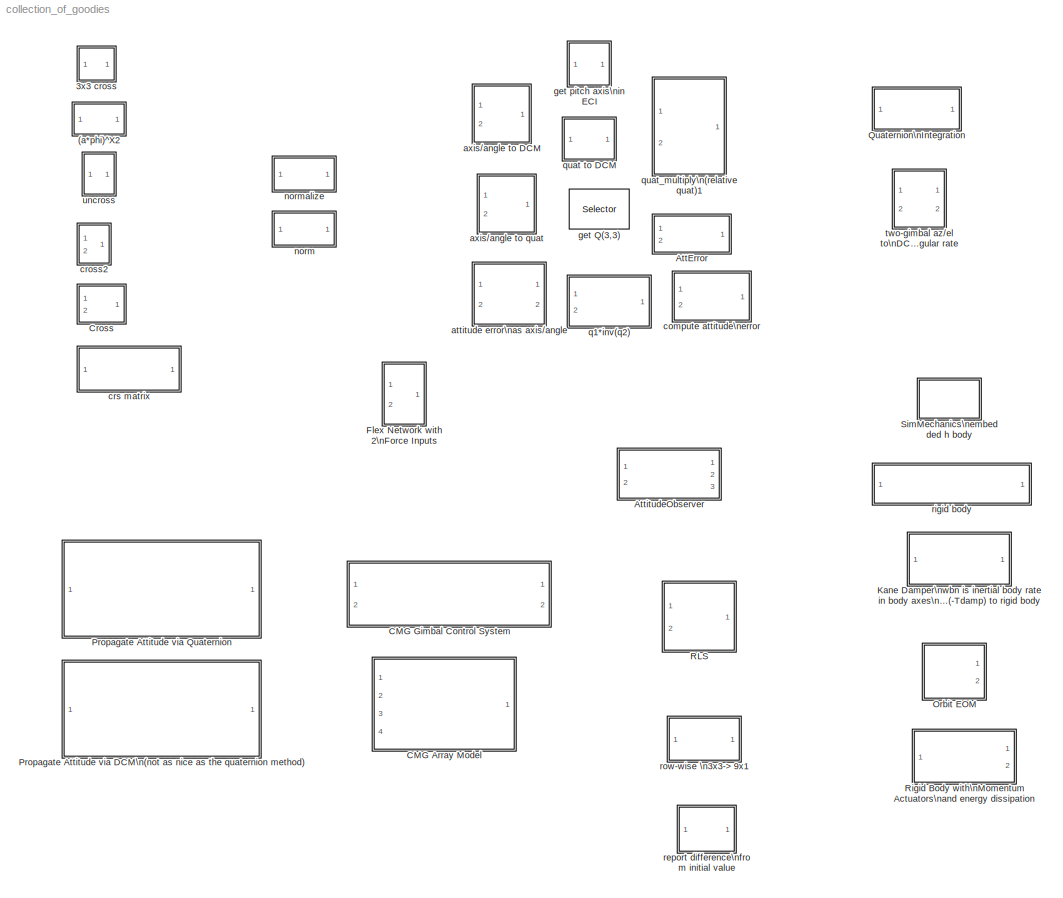
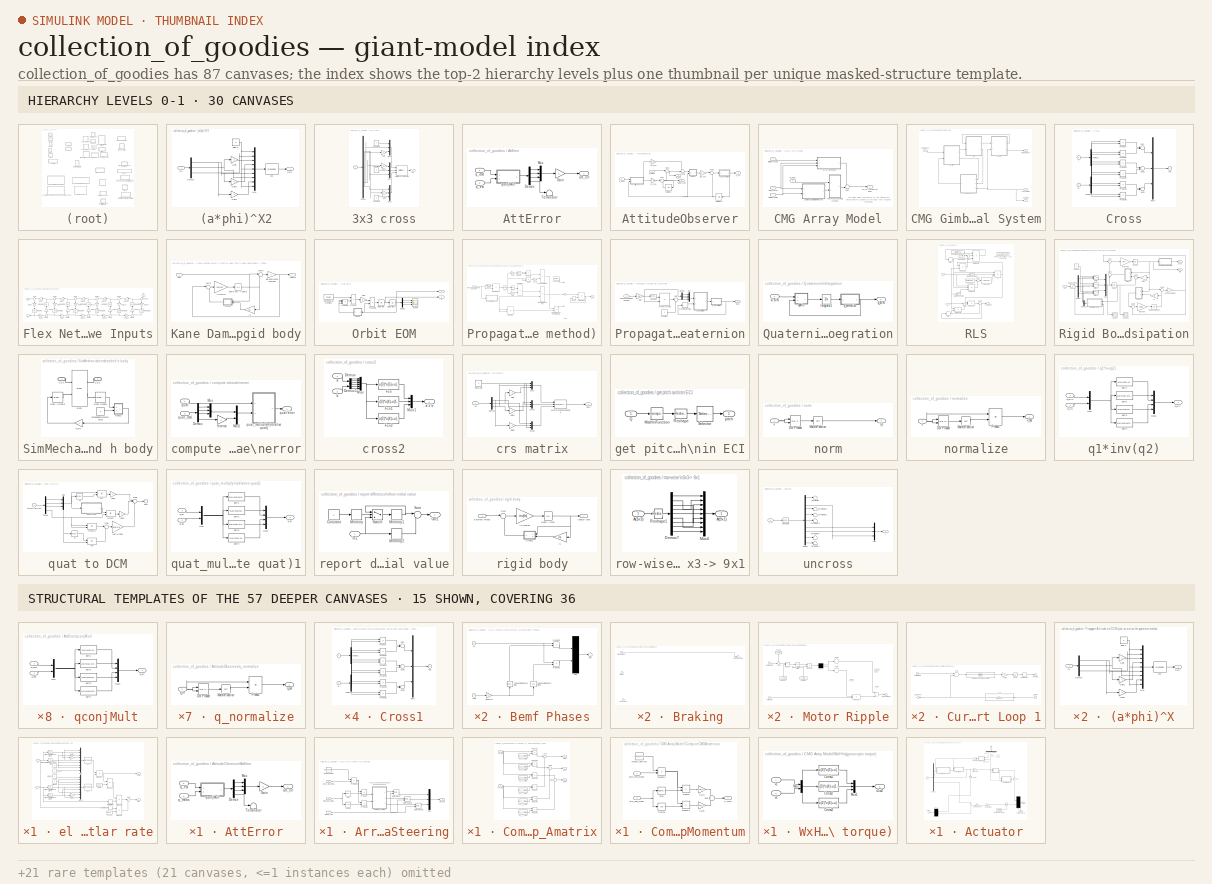
[diagram: thumbnail index - top-2 hierarchy levels (30 canvases) + 15 structural-template representatives of the remaining 57 canvases]
MODEL collection_of_goodies
KIND model
CONFIG AbsTol = auto
CONFIG FixedStep = auto
CONFIG MaxStep = auto
CONFIG MinStep = auto
CONFIG RelTol = 1e-3
CONFIG Solver = ode45
CONFIG SolverMode = Auto
CONFIG StartTime = 0.0
CONFIG StopTime = 10.0
BLOCK [SubSystem]  two-gimbal az//el to\nDCM & angular rate
  Ports = [2, 2]
  TreatAsAtomicUnit = off
BLOCK [Reference]  two-gimbal az//el to\nDCM & angular rate/3x3  REF=simulink/Math\nOperations/Reshape
  OutputDimensionality = Customize
  OutputDimensions = [3,3]
  Ports = [1, 1]
  SourceBlock = simulink/Math\nOperations/Reshape
  SourceType = Reshape
BLOCK [Reference]  two-gimbal az//el to\nDCM & angular rate/3x3   REF=simulink/Math\nOperations/Reshape
  OutputDimensionality = Customize
  OutputDimensions = [3,3]
  Ports = [1, 1]
  SourceBlock = simulink/Math\nOperations/Reshape
  SourceType = Reshape
BLOCK [Outport]  two-gimbal az//el to\nDCM & angular rate/DCM
BLOCK [Derivative]  two-gimbal az//el to\nDCM & angular rate/Derivative2
BLOCK [Derivative]  two-gimbal az//el to\nDCM & angular rate/Derivative3
BLOCK [Gain]  two-gimbal az//el to\nDCM & angular rate/Gain1
  Gain = -1
BLOCK [Gain]  two-gimbal az//el to\nDCM & angular rate/Gain2
  Gain = -1
BLOCK [Mux]  two-gimbal az//el to\nDCM & angular rate/Mux
  DisplayOption = bar
  Inputs = 9
  Ports = [9, 1]
BLOCK [Mux]  two-gimbal az//el to\nDCM & angular rate/Mux1
  DisplayOption = bar
  Inputs = 9
  Ports = [9, 1]
BLOCK [Product]  two-gimbal az//el to\nDCM & angular rate/Product
  InputSameDT = off
  Multiplication = Matrix(*)
  Ports = [2, 1]
BLOCK [Product]  two-gimbal az//el to\nDCM & angular rate/Product1
  InputSameDT = off
  Ports = [2, 1]
BLOCK [Product]  two-gimbal az//el to\nDCM & angular rate/Product2
  InputSameDT = off
  Multiplication = Matrix(*)
  Ports = [2, 1]
BLOCK [Product]  two-gimbal az//el to\nDCM & angular rate/Product5
  InputSameDT = off
  Ports = [2, 1]
BLOCK [Sum]  two-gimbal az//el to\nDCM & angular rate/Sum
  IconShape = round
  InputSameDT = off
  Inputs = |++
  OutDataTypeMode = Inherit via internal rule
  Ports = [2, 1]
BLOCK [Trigonometry]  two-gimbal az//el to\nDCM & angular rate/Trigonometric\nFunction
  Operator = cos
  Ports = [1, 1]
BLOCK [Trigonometry]  two-gimbal az//el to\nDCM & angular rate/Trigonometric\nFunction1
  Ports = [1, 1]
BLOCK [Trigonometry]  two-gimbal az//el to\nDCM & angular rate/Trigonometric\nFunction2
  Operator = cos
  Ports = [1, 1]
BLOCK [Trigonometry]  two-gimbal az//el to\nDCM & angular rate/Trigonometric\nFunction3
  Ports = [1, 1]
BLOCK [Inport]  two-gimbal az//el to\nDCM & angular rate/az
  Port = 2
BLOCK [Constant]  two-gimbal az//el to\nDCM & angular rate/az axis
  Value = [0 0 1]'
BLOCK [Constant]  two-gimbal az//el to\nDCM & angular rate/diag 0 
  Value = 0
BLOCK [Constant]  two-gimbal az//el to\nDCM & angular rate/diag 0 1
BLOCK [Constant]  two-gimbal az//el to\nDCM & angular rate/diag 0 2
  Value = 0
BLOCK [Constant]  two-gimbal az//el to\nDCM & angular rate/diag 0 3
BLOCK [Inport]  two-gimbal az//el to\nDCM & angular rate/el
BLOCK [Constant]  two-gimbal az//el to\nDCM & angular rate/el axis
  Value = [1 0 0]'
BLOCK [Outport]  two-gimbal az//el to\nDCM & angular rate/rate
  Port = 2
BLOCK [SubSystem] (a*phi)^X2
  MaskDisplay = disp('3x3 cross')
  MaskIconFrame = on
  MaskIconOpaque = on
  MaskIconRotate = none
  MaskIconUnits = autoscale
  Ports = [1, 1]
  TreatAsAtomicUnit = off
BLOCK [Reference] (a*phi)^X2/3x3  REF=simulink/Math\nOperations/Reshape
  OutputDimensionality = Customize
  OutputDimensions = [3,3]
  Ports = [1, 1]
  SourceBlock = simulink/Math\nOperations/Reshape
  SourceType = Reshape
BLOCK [Demux] (a*phi)^X2/Demux
  Outputs = 3
  Ports = [1, 3]
BLOCK [Gain] (a*phi)^X2/Gain
  Gain = -1
BLOCK [Gain] (a*phi)^X2/Gain1
  Gain = -1
BLOCK [Gain] (a*phi)^X2/Gain2
  Gain = -1
BLOCK [Inport] (a*phi)^X2/In1
BLOCK [Mux] (a*phi)^X2/Mux
  DisplayOption = bar
  Inputs = 9
  Ports = [9, 1]
BLOCK [Outport] (a*phi)^X2/Out1
BLOCK [Constant] (a*phi)^X2/diag 0 
  Value = 0
BLOCK [SubSystem] 3x3 cross
  Ports = [1, 1]
  TreatAsAtomicUnit = off
BLOCK [Constant] 3x3 cross/Constant1
  Value = 0
BLOCK [Constant] 3x3 cross/Constant2
  Value = 0
BLOCK [Constant] 3x3 cross/Constant3
  Value = 0
BLOCK [Demux] 3x3 cross/Demux
  Outputs = 3
  Ports = [1, 3]
BLOCK [Gain] 3x3 cross/Gain
  Gain = -1
BLOCK [Gain] 3x3 cross/Gain1
  Gain = -1
BLOCK [Gain] 3x3 cross/Gain2
  Gain = -1
BLOCK [Reference] 3x3 cross/Matrix\nConcatenation  REF=simulink/Math\nOperations/Matrix\nConcatenation
  Ports = [3, 1]
  SourceBlock = simulink/Math\nOperations/Matrix\nConcatenation
  SourceType = Matrix Concatenation
  catMethod = Horizontal
  numInports = 3
BLOCK [Mux] 3x3 cross/Mux1
  DisplayOption = bar
  Inputs = 3
  Ports = [3, 1]
BLOCK [Mux] 3x3 cross/Mux2
  DisplayOption = bar
  Inputs = 3
  Ports = [3, 1]
BLOCK [Mux] 3x3 cross/Mux3
  DisplayOption = bar
  Inputs = 3
  Ports = [3, 1]
BLOCK [Inport] 3x3 cross/v
BLOCK [Outport] 3x3 cross/vX
BLOCK [SubSystem] AttError
  Ports = [2, 1]
  TreatAsAtomicUnit = off
BLOCK [Demux] AttError/Demux
  Ports = [1, 4]
BLOCK [Gain] AttError/Gain
  Gain = 2
BLOCK [Mux] AttError/Mux
  DisplayOption = bar
  Inputs = 3
  Ports = [3, 1]
BLOCK [Terminator] AttError/Terminator
BLOCK [Outport] AttError/att_err
BLOCK [Inport] AttError/q_cmd
  PortDimensions = 4
BLOCK [Inport] AttError/q_est
  Port = 2
  PortDimensions = 4
BLOCK [SubSystem] AttError/qconjMult
  Ports = [2, 1]
  TreatAsAtomicUnit = off
BLOCK [Mux] AttError/qconjMult/Mux
  DisplayOption = bar
  Inputs = 2
  Ports = [2, 1]
BLOCK [Mux] AttError/qconjMult/Mux1
  DisplayOption = bar
  Ports = [4, 1]
BLOCK [Inport] AttError/qconjMult/q_cmd
BLOCK [Outport] AttError/qconjMult/q_err
BLOCK [Inport] AttError/qconjMult/q_est
  Port = 2
BLOCK [Fcn] AttError/qconjMult/qerr1
  Expr = -u(4)*u(5)-u(3)*u(6)+u(2)*u(7)+u(1)*u(8)
BLOCK [Fcn] AttError/qconjMult/qerr2
  Expr = u(3)*u(5)-u(4)*u(6)-u(1)*u(7)+u(2)*u(8)
BLOCK [Fcn] AttError/qconjMult/qerr3
  Expr = -u(2)*u(5)+u(1)*u(6)-u(4)*u(7)+u(3)*u(8)
BLOCK [Fcn] AttError/qconjMult/qerr4
  Expr = u(1)*u(5)+u(2)*u(6)+u(3)*u(7)+u(4)*u(8)
BLOCK [SubSystem] AttitudeObserver
  Ports = [2, 3]
  TreatAsAtomicUnit = off
BLOCK [SubSystem] AttitudeObserver/AttError
  Ports = [2, 1]
  TreatAsAtomicUnit = off
BLOCK [Demux] AttitudeObserver/AttError/Demux
  Ports = [1, 4]
BLOCK [Gain] AttitudeObserver/AttError/Gain
  Gain = 2
BLOCK [Mux] AttitudeObserver/AttError/Mux
  DisplayOption = bar
  Inputs = 3
  Ports = [3, 1]
BLOCK [Terminator] AttitudeObserver/AttError/Terminator
BLOCK [Outport] AttitudeObserver/AttError/att_err
BLOCK [Inport] AttitudeObserver/AttError/q_est
  Port = 2
  PortDimensions = 4
BLOCK [Inport] AttitudeObserver/AttError/q_meas
  PortDimensions = 4
BLOCK [SubSystem] AttitudeObserver/AttError/qconjMult
  Ports = [2, 1]
  TreatAsAtomicUnit = off
BLOCK [Mux] AttitudeObserver/AttError/qconjMult/Mux
  DisplayOption = bar
  Inputs = 2
  Ports = [2, 1]
BLOCK [Mux] AttitudeObserver/AttError/qconjMult/Mux1
  DisplayOption = bar
  Ports = [4, 1]
BLOCK [Inport] AttitudeObserver/AttError/qconjMult/q_cmd
BLOCK [Outport] AttitudeObserver/AttError/qconjMult/q_err
BLOCK [Inport] AttitudeObserver/AttError/qconjMult/q_est
  Port = 2
BLOCK [Fcn] AttitudeObserver/AttError/qconjMult/qerr1
  Expr = -u(4)*u(5)-u(3)*u(6)+u(2)*u(7)+u(1)*u(8)
BLOCK [Fcn] AttitudeObserver/AttError/qconjMult/qerr2
  Expr = u(3)*u(5)-u(4)*u(6)-u(1)*u(7)+u(2)*u(8)
BLOCK [Fcn] AttitudeObserver/AttError/qconjMult/qerr3
  Expr = -u(2)*u(5)+u(1)*u(6)-u(4)*u(7)+u(3)*u(8)
BLOCK [Fcn] AttitudeObserver/AttError/qconjMult/qerr4
  Expr = u(1)*u(5)+u(2)*u(6)+u(3)*u(7)+u(4)*u(8)
BLOCK [Sum] AttitudeObserver/Sum
  IconShape = round
  Inputs = |++
  Ports = [2, 1]
BLOCK [Sum] AttitudeObserver/Sum1
  IconShape = round
  Inputs = |+-
  Ports = [2, 1]
BLOCK [Sum] AttitudeObserver/Sum2
  IconShape = round
  Inputs = |++
  Ports = [2, 1]
BLOCK [Sum] AttitudeObserver/Sum3
  IconShape = round
  Inputs = -+|
  Ports = [2, 1]
BLOCK [UnitDelay] AttitudeObserver/Unit Delay
  SampleTime = TAU_ACS
  X0 = [0;0;0]
BLOCK [UnitDelay] AttitudeObserver/Unit Delay1
  SampleTime = TAU_ACS
  X0 = q0
BLOCK [Gain] AttitudeObserver/k1_obs
  Gain = k1_obs
BLOCK [Gain] AttitudeObserver/k2_obs
  Gain = k2_obs
BLOCK [Outport] AttitudeObserver/q_est
  Port = 2
BLOCK [Inport] AttitudeObserver/q_meas
  Port = 2
  PortDimensions = 4
BLOCK [SubSystem] AttitudeObserver/q_normalize
  Ports = [1, 1]
  TreatAsAtomicUnit = off
BLOCK [Reference] AttitudeObserver/q_normalize/Dot Product  REF=simulink/Math\nOperations/Dot Product
  Ports = [2, 1]
  SourceBlock = simulink/Math\nOperations/Dot Product
  SourceType = Dot Product
BLOCK [Math] AttitudeObserver/q_normalize/Math\nFunction
  Operator = sqrt
  Ports = [1, 1]
BLOCK [Product] AttitudeObserver/q_normalize/Product
  Inputs = */
  Ports = [2, 1]
BLOCK [Inport] AttitudeObserver/q_normalize/q_in
  PortDimensions = 4
BLOCK [Outport] AttitudeObserver/q_normalize/q_out
BLOCK [SubSystem] AttitudeObserver/qderiv
  Ports = [2, 1]
  TreatAsAtomicUnit = off
BLOCK [Mux] AttitudeObserver/qderiv/Mux
  DisplayOption = bar
  Inputs = 2
  Ports = [2, 1]
BLOCK [Mux] AttitudeObserver/qderiv/Mux1
  DisplayOption = bar
  Ports = [4, 1]
BLOCK [Inport] AttitudeObserver/qderiv/q
  Port = 2
BLOCK [Outport] AttitudeObserver/qderiv/qd
BLOCK [Fcn] AttitudeObserver/qderiv/qd1
  Expr = (u(7)*u(1)-u(6)*u(2)+u(5)*u(3))/2
BLOCK [Fcn] AttitudeObserver/qderiv/qd2
  Expr = (u(6)*u(1)+u(7)*u(2)-u(4)*u(3))/2
BLOCK [Fcn] AttitudeObserver/qderiv/qd3
  Expr = (-u(5)*u(1)+u(4)*u(2)+u(7)*u(3))/2
BLOCK [Fcn] AttitudeObserver/qderiv/qd4
  Expr = (-u(4)*u(1)-u(5)*u(2)-u(6)*u(3))/2
BLOCK [Inport] AttitudeObserver/qderiv/w
BLOCK [Gain] AttitudeObserver/tau_acs
  Gain = TAU_ACS
BLOCK [Outport] AttitudeObserver/w_est
BLOCK [Inport] AttitudeObserver/w_meas
  PortDimensions = 3
BLOCK [Outport] AttitudeObserver/wbias_est1
  Port = 3
BLOCK [SubSystem] CMG Array Model
  Ports = [4, 1]
  TreatAsAtomicUnit = off
BLOCK [SubSystem] CMG Array Model/Array_Steering
  Ports = [3, 1]
  TreatAsAtomicUnit = off
BLOCK [SubSystem] CMG Array Model/Array_Steering/Compute_Amatrix
  Ports = [2, 3]
  TreatAsAtomicUnit = off
BLOCK [Outport] CMG Array Model/Array_Steering/Compute_Amatrix/Arow1
BLOCK [Outport] CMG Array Model/Array_Steering/Compute_Amatrix/Arow2
  Port = 2
BLOCK [Outport] CMG Array Model/Array_Steering/Compute_Amatrix/Arow3
  Port = 3
BLOCK [Product] CMG Array Model/Array_Steering/Compute_Amatrix/Product4
  Ports = [2, 1]
BLOCK [Product] CMG Array Model/Array_Steering/Compute_Amatrix/Product5
  Ports = [2, 1]
BLOCK [Product] CMG Array Model/Array_Steering/Compute_Amatrix/Product6
  Ports = [2, 1]
BLOCK [Product] CMG Array Model/Array_Steering/Compute_Amatrix/Product7
  Ports = [2, 1]
BLOCK [Product] CMG Array Model/Array_Steering/Compute_Amatrix/Product8
  Ports = [2, 1]
BLOCK [Product] CMG Array Model/Array_Steering/Compute_Amatrix/Product9
  Ports = [2, 1]
BLOCK [Sum] CMG Array Model/Array_Steering/Compute_Amatrix/Sum
  IconShape = round
  Ports = [2, 1]
BLOCK [Sum] CMG Array Model/Array_Steering/Compute_Amatrix/Sum1
  IconShape = round
  Ports = [2, 1]
BLOCK [Sum] CMG Array Model/Array_Steering/Compute_Amatrix/Sum2
  IconShape = round
  Ports = [2, 1]
BLOCK [Constant] CMG Array Model/Array_Steering/Compute_Amatrix/a1_T_CMG
  Value = a1_T_CMG
BLOCK [Constant] CMG Array Model/Array_Steering/Compute_Amatrix/a2_T_CMG
  Value = a2_T_CMG
BLOCK [Constant] CMG Array Model/Array_Steering/Compute_Amatrix/a3_T_CMG
  Value = a3_T_CMG
BLOCK [Constant] CMG Array Model/Array_Steering/Compute_Amatrix/b1_T_CMG
  Value = b1_T_CMG
BLOCK [Constant] CMG Array Model/Array_Steering/Compute_Amatrix/b2_T_CMG
  Value = b2_T_CMG
BLOCK [Constant] CMG Array Model/Array_Steering/Compute_Amatrix/b3_T_CMG
  Value = b3_T_CMG
BLOCK [Inport] CMG Array Model/Array_Steering/Compute_Amatrix/cos_term
  Port = 2
  PortDimensions = 6
BLOCK [Inport] CMG Array Model/Array_Steering/Compute_Amatrix/sin_term
  PortDimensions = 6
BLOCK [Trigonometry] CMG Array Model/Array_Steering/Cosine
  Operator = cos
  Ports = [1, 1]
BLOCK [Reference] CMG Array Model/Array_Steering/Dot Product  REF=simulink/Math\nOperations/Dot Product
  Ports = [2, 1]
  SourceBlock = simulink/Math\nOperations/Dot Product
  SourceType = Dot Product
BLOCK [Reference] CMG Array Model/Array_Steering/Dot Product1  REF=simulink/Math\nOperations/Dot Product
  Ports = [2, 1]
  SourceBlock = simulink/Math\nOperations/Dot Product
  SourceType = Dot Product
BLOCK [Reference] CMG Array Model/Array_Steering/Dot Product2  REF=simulink/Math\nOperations/Dot Product
  Ports = [2, 1]
  SourceBlock = simulink/Math\nOperations/Dot Product
  SourceType = Dot Product
BLOCK [Mux] CMG Array Model/Array_Steering/Mux
  DisplayOption = bar
  Inputs = 3
  Ports = [3, 1]
BLOCK [Product] CMG Array Model/Array_Steering/Product
  Ports = [2, 1]
BLOCK [Product] CMG Array Model/Array_Steering/Product1
  Ports = [2, 1]
BLOCK [Product] CMG Array Model/Array_Steering/Product2
  Ports = [2, 1]
BLOCK [Trigonometry] CMG Array Model/Array_Steering/Sine
  Ports = [1, 1]
BLOCK [Inport] CMG Array Model/Array_Steering/gim_ang_meas
  Port = 3
  PortDimensions = 6
BLOCK [Inport] CMG Array Model/Array_Steering/gimbal_rate
  PortDimensions = 6
BLOCK [Inport] CMG Array Model/Array_Steering/spin_rate_meas
  Port = 2
  PortDimensions = 6
BLOCK [Outport] CMG Array Model/Array_Steering/torque
BLOCK [Constant] CMG Array Model/Array_Steering/wheel_inertias
  Value = wheel_inertias
BLOCK [SubSystem] CMG Array Model/ComputeCMGMomentum
  Ports = [2, 1]
  TreatAsAtomicUnit = off
BLOCK [Trigonometry] CMG Array Model/ComputeCMGMomentum/Cosine
  Operator = cos
  Ports = [1, 1]
BLOCK [Outport] CMG Array Model/ComputeCMGMomentum/H_cmg
BLOCK [Product] CMG Array Model/ComputeCMGMomentum/Product
  Ports = [2, 1]
BLOCK [Product] CMG Array Model/ComputeCMGMomentum/Product1
  Ports = [2, 1]
BLOCK [Product] CMG Array Model/ComputeCMGMomentum/Product2
  Ports = [2, 1]
BLOCK [Trigonometry] CMG Array Model/ComputeCMGMomentum/Sine
  Ports = [1, 1]
BLOCK [Sum] CMG Array Model/ComputeCMGMomentum/Sum
  IconShape = round
  Ports = [2, 1]
BLOCK [Inport] CMG Array Model/ComputeCMGMomentum/gim_ang_meas
  Port = 2
  PortDimensions = 6
BLOCK [Gain] CMG Array Model/ComputeCMGMomentum/h_cos
  Gain = h_cos_cmg
  Multiplication = Matrix(K*u)
BLOCK [Gain] CMG Array Model/ComputeCMGMomentum/h_sin
  Gain = h_sin_cmg
  Multiplication = Matrix(K*u)
BLOCK [Inport] CMG Array Model/ComputeCMGMomentum/spin_rate_meas
  PortDimensions = 6
BLOCK [Constant] CMG Array Model/ComputeCMGMomentum/wheel_inertias
  Value = wheel_inertias
BLOCK [Sum] CMG Array Model/Sum
  IconShape = round
  Inputs = ++|
  Ports = [2, 1]
BLOCK [SubSystem] CMG Array Model/WxH\n(gyroscopic torque)
  Ports = [2, 1]
  TreatAsAtomicUnit = off
BLOCK [Fcn] CMG Array Model/WxH\n(gyroscopic torque)/Cross1
  Expr = -u(3)*u(5)+u(2)*u(6)
BLOCK [Fcn] CMG Array Model/WxH\n(gyroscopic torque)/Cross2
  Expr = u(3)*u(4)-u(1)*u(6)
BLOCK [Fcn] CMG Array Model/WxH\n(gyroscopic torque)/Cross3
  Expr = -u(2)*u(4)+u(1)*u(5)
BLOCK [Mux] CMG Array Model/WxH\n(gyroscopic torque)/Mux
  DisplayOption = bar
  Inputs = 2
  Ports = [2, 1]
BLOCK [Mux] CMG Array Model/WxH\n(gyroscopic torque)/Mux1
  DisplayOption = bar
  Inputs = 3
  Ports = [3, 1]
BLOCK [Inport] CMG Array Model/WxH\n(gyroscopic torque)/v1
BLOCK [Outport] CMG Array Model/WxH\n(gyroscopic torque)/v1xv2
BLOCK [Inport] CMG Array Model/WxH\n(gyroscopic torque)/v2
  Port = 2
BLOCK [Outport] CMG Array Model/array torque on body
BLOCK [Inport] CMG Array Model/gimbal angle
  PortDimensions = 6
BLOCK [Inport] CMG Array Model/gimbal rates
  Port = 4
  PortDimensions = 6
BLOCK [Inport] CMG Array Model/spin_rate1
  Port = 2
  PortDimensions = 6
BLOCK [Inport] CMG Array Model/w_body
  Port = 3
  PortDimensions = 6
BLOCK [SubSystem] CMG Gimbal Control System
  Ports = [2, 2]
  TreatAsAtomicUnit = off
BLOCK [SubSystem] CMG Gimbal Control System/Actuator
  Ports = [2, 2]
  TreatAsAtomicUnit = off
BLOCK [SubSystem] CMG Gimbal Control System/Actuator/Bemf Phases
  Ports = [2, 1]
  TreatAsAtomicUnit = off
BLOCK [Inport] CMG Gimbal Control System/Actuator/Bemf Phases/Angle
  Port = 2
BLOCK [Gain] CMG Gimbal Control System/Actuator/Bemf Phases/Elect Freq
  Gain = 12
BLOCK [Inport] CMG Gimbal Control System/Actuator/Bemf Phases/In
BLOCK [Mux] CMG Gimbal Control System/Actuator/Bemf Phases/Mux
  Inputs = 2
  Ports = [2, 1]
BLOCK [Outport] CMG Gimbal Control System/Actuator/Bemf Phases/Out
  InitialOutput = 0
BLOCK [Product] CMG Gimbal Control System/Actuator/Bemf Phases/Product2
  Ports = [2, 1]
BLOCK [Product] CMG Gimbal Control System/Actuator/Bemf Phases/Product3
  Ports = [2, 1]
BLOCK [Trigonometry] CMG Gimbal Control System/Actuator/Bemf Phases/Trigonometric\nFunction
  Ports = [1, 1]
BLOCK [Trigonometry] CMG Gimbal Control System/Actuator/Bemf Phases/Trigonometric\nFunction1
  Operator = cos
  Ports = [1, 1]
BLOCK [SubSystem] CMG Gimbal Control System/Actuator/Braking
  Ports = [3, 1]
  TreatAsAtomicUnit = off
BLOCK [Inport] CMG Gimbal Control System/Actuator/Braking/Back EMF
BLOCK [Inport] CMG Gimbal Control System/Actuator/Braking/Current
  Port = 3
BLOCK [Inport] CMG Gimbal Control System/Actuator/Braking/Driver Voltage
  Port = 2
BLOCK [Outport] CMG Gimbal Control System/Actuator/Braking/Terminal Voltage
  InitialOutput = 0
BLOCK [Gain] CMG Gimbal Control System/Actuator/Commutation
  Gain = .955
BLOCK [Outport] CMG Gimbal Control System/Actuator/Current
  InitialOutput = 0
BLOCK [Demux] CMG Gimbal Control System/Actuator/Demux
  Ports = [1, 4]
BLOCK [Demux] CMG Gimbal Control System/Actuator/Demux2
  Outputs = [2 1]
  Ports = [1, 2]
BLOCK [SubSystem] CMG Gimbal Control System/Actuator/Motor Coil
  Ports = [2, 1]
  TreatAsAtomicUnit = off
BLOCK [Inport] CMG Gimbal Control System/Actuator/Motor Coil/Back EMF
BLOCK [Outport] CMG Gimbal Control System/Actuator/Motor Coil/Current
  InitialOutput = 0
BLOCK [Demux] CMG Gimbal Control System/Actuator/Motor Coil/Demux1
  Outputs = 2
  Ports = [1, 2]
BLOCK [Demux] CMG Gimbal Control System/Actuator/Motor Coil/Demux2
  Outputs = 2
  Ports = [1, 2]
BLOCK [TransferFcn] CMG Gimbal Control System/Actuator/Motor Coil/Gimbal Motor Coil
  Denominator = [Lgm Rgm]
BLOCK [TransferFcn] CMG Gimbal Control System/Actuator/Motor Coil/Gimbal Motor Coil1
  Denominator = [Lgm Rgm]
BLOCK [Mux] CMG Gimbal Control System/Actuator/Motor Coil/Mux
  Inputs = 2
  Ports = [2, 1]
BLOCK [Sum] CMG Gimbal Control System/Actuator/Motor Coil/Sum4
  Inputs = -+
  Ports = [2, 1]
BLOCK [Sum] CMG Gimbal Control System/Actuator/Motor Coil/Sum6
  Inputs = -+
  Ports = [2, 1]
BLOCK [Inport] CMG Gimbal Control System/Actuator/Motor Coil/Terminal Voltage
  Port = 2
BLOCK [SubSystem] CMG Gimbal Control System/Actuator/Motor Ripple
  Ports = [2, 1]
  TreatAsAtomicUnit = off
BLOCK [Constant] CMG Gimbal Control System/Actuator/Motor Ripple/Amplitude
  Value = rc_ampl
BLOCK [Demux] CMG Gimbal Control System/Actuator/Motor Ripple/Demux
  Outputs = [4 5]
  Ports = [1, 2]
BLOCK [Constant] CMG Gimbal Control System/Actuator/Motor Ripple/Harmonic
  Value = rc_harm
BLOCK [Inport] CMG Gimbal Control System/Actuator/Motor Ripple/Motor Angle
  Port = 2
BLOCK [Constant] CMG Gimbal Control System/Actuator/Motor Ripple/Phase
  Value = rc_phase
BLOCK [Product] CMG Gimbal Control System/Actuator/Motor Ripple/Product
  Ports = [2, 1]
BLOCK [Product] CMG Gimbal Control System/Actuator/Motor Ripple/Product1
  Ports = [2, 1]
BLOCK [Product] CMG Gimbal Control System/Actuator/Motor Ripple/Product2
  Ports = [2, 1]
BLOCK [Sum] CMG Gimbal Control System/Actuator/Motor Ripple/Sum
  IconShape = round
  Inputs = ++|
  Ports = [2, 1]
BLOCK [Sum] CMG Gimbal Control System/Actuator/Motor Ripple/Sum3
  Inputs = +
  Ports = [1, 1]
BLOCK [Sum] CMG Gimbal Control System/Actuator/Motor Ripple/Sum4
  Inputs = +
  Ports = [1, 1]
BLOCK [Sum] CMG Gimbal Control System/Actuator/Motor Ripple/Sum5
  Ports = [2, 1]
BLOCK [Inport] CMG Gimbal Control System/Actuator/Motor Ripple/Torque In
BLOCK [Outport] CMG Gimbal Control System/Actuator/Motor Ripple/Torque Ripple
  InitialOutput = 0
BLOCK [Trigonometry] CMG Gimbal Control System/Actuator/Motor Ripple/Trigonometric\nFunction
  Operator = cos
  Ports = [1, 1]
BLOCK [Mux] CMG Gimbal Control System/Actuator/Mux
  Inputs = 2
  Ports = [2, 1]
BLOCK [Mux] CMG Gimbal Control System/Actuator/Mux1
  Inputs = [2 1]
  Ports = [2, 1]
BLOCK [Gain] CMG Gimbal Control System/Actuator/N-m per Amp
  Gain = Kt
BLOCK [Gain] CMG Gimbal Control System/Actuator/N-m per Amp Spin
  Gain = Kts
BLOCK [Gain] CMG Gimbal Control System/Actuator/Sel 1 to 2
BLOCK [Constant] CMG Gimbal Control System/Actuator/Spin Motor Electromagnetic Drag
  Value = SmotDrag
BLOCK [Sum] CMG Gimbal Control System/Actuator/Sum1
  IconShape = round
  Inputs = ++|
  Ports = [2, 1]
BLOCK [Sum] CMG Gimbal Control System/Actuator/Sum2
  IconShape = round
  Inputs = |+-
  Ports = [2, 1]
BLOCK [ToWorkspace] CMG Gimbal Control System/Actuator/To Workspace5
  MaxDataPoints = inf
  SampleTime = -1
  SaveFormat = Array
  VariableName = torque
BLOCK [Outport] CMG Gimbal Control System/Actuator/Torque
  InitialOutput = 0
  Port = 2
BLOCK [SubSystem] CMG Gimbal Control System/Actuator/Torque Phases
  Ports = [2, 1]
  TreatAsAtomicUnit = off
BLOCK [Inport] CMG Gimbal Control System/Actuator/Torque Phases/Angle
  Port = 2
BLOCK [Demux] CMG Gimbal Control System/Actuator/Torque Phases/Demux1
  Outputs = 2
  Ports = [1, 2]
BLOCK [Gain] CMG Gimbal Control System/Actuator/Torque Phases/Elect Freq
  Gain = 12
BLOCK [Inport] CMG Gimbal Control System/Actuator/Torque Phases/In
BLOCK [Outport] CMG Gimbal Control System/Actuator/Torque Phases/Out
  InitialOutput = 0
BLOCK [Product] CMG Gimbal Control System/Actuator/Torque Phases/Product2
  Ports = [2, 1]
BLOCK [Product] CMG Gimbal Control System/Actuator/Torque Phases/Product3
  Ports = [2, 1]
BLOCK [Sum] CMG Gimbal Control System/Actuator/Torque Phases/Sum5
  Ports = [2, 1]
BLOCK [Trigonometry] CMG Gimbal Control System/Actuator/Torque Phases/Trigonometric\nFunction
  Ports = [1, 1]
BLOCK [Trigonometry] CMG Gimbal Control System/Actuator/Torque Phases/Trigonometric\nFunction1
  Operator = cos
  Ports = [1, 1]
BLOCK [Inport] CMG Gimbal Control System/Actuator/Truth
  Port = 2
BLOCK [Inport] CMG Gimbal Control System/Actuator/Vcoil
BLOCK [Gain] CMG Gimbal Control System/Actuator/Volts per r//s
  Gain = Kt
BLOCK [Inport] CMG Gimbal Control System/Commands
BLOCK [SubSystem] CMG Gimbal Control System/Control
  Ports = [2, 2]
  TreatAsAtomicUnit = off
BLOCK [RateLimiter] CMG Gimbal Control System/Control/AccLim
  FallingSlewLimit = -AccLim
  RisingSlewLimit = AccLim
BLOCK [Inport] CMG Gimbal Control System/Control/Command
  PortDimensions = 2
BLOCK [Outport] CMG Gimbal Control System/Control/CurrentCmd
  InitialOutput = 0
BLOCK [Demux] CMG Gimbal Control System/Control/Demux
  Outputs = [3 2 4 1]
  Ports = [1, 4]
BLOCK [Demux] CMG Gimbal Control System/Control/Demux1
  Outputs = 2
  Ports = [1, 2]
BLOCK [Inport] CMG Gimbal Control System/Control/Feedback
  Port = 2
BLOCK [Memory] CMG Gimbal Control System/Control/Memory
BLOCK [Mux] CMG Gimbal Control System/Control/Mux
  Inputs = [2 1]
  Ports = [2, 1]
BLOCK [TransferFcn] CMG Gimbal Control System/Control/Prefilter
  Denominator = pfd
  Numerator = pfn
BLOCK [Quantizer] CMG Gimbal Control System/Control/Qcmd
  QuantizationInterval = Qcmd
BLOCK [Quantizer] CMG Gimbal Control System/Control/Qpos
  QuantizationInterval = Qpos
BLOCK [Quantizer] CMG Gimbal Control System/Control/Qrate
  QuantizationInterval = Qrate
BLOCK [SubSystem] CMG Gimbal Control System/Control/Rate Feedback
  Ports = [1, 1]
  TreatAsAtomicUnit = off
BLOCK [Abs] CMG Gimbal Control System/Control/Rate Feedback/Abs
BLOCK [Inport] CMG Gimbal Control System/Control/Rate Feedback/Coarse//Fine
BLOCK [Outport] CMG Gimbal Control System/Control/Rate Feedback/Composite
  InitialOutput = 0
BLOCK [Demux] CMG Gimbal Control System/Control/Rate Feedback/Demux1
  Outputs = 2
  Ports = [1, 2]
BLOCK [Gain] CMG Gimbal Control System/Control/Rate Feedback/Fine Gain Correction
  Gain = 1/fine
BLOCK [Relay] CMG Gimbal Control System/Control/Rate Feedback/Relay
  OffSwitchValue = CFthreshoff
  OnSwitchValue = CFthreshon
BLOCK [Switch] CMG Gimbal Control System/Control/Rate Feedback/Switch
  Threshold = .5
BLOCK [SubSystem] CMG Gimbal Control System/Control/Rate Loop Compensation
  Ports = [1, 1]
  TreatAsAtomicUnit = off
BLOCK [Outport] CMG Gimbal Control System/Control/Rate Loop Compensation/Current\nCmd
  InitialOutput = 0
BLOCK [Integrator] CMG Gimbal Control System/Control/Rate Loop Compensation/Integrator
  LimitOutput = on
  LowerSaturationLimit = -Isat
  Ports = [1, 1]
  UpperSaturationLimit = Isat
BLOCK [TransferFcn] CMG Gimbal Control System/Control/Rate Loop Compensation/Lead//Lag
  Denominator = filt2d
  Numerator = filt2n
BLOCK [Inport] CMG Gimbal Control System/Control/Rate Loop Compensation/Rate\nError
BLOCK [TransferFcn] CMG Gimbal Control System/Control/Rate Loop Compensation/\"Bi-Quad\"
  Denominator = filt1d
  Numerator = filt1n
BLOCK [Sum] CMG Gimbal Control System/Control/RateSum
  IconShape = round
  Inputs = |+-
  Ports = [2, 1]
BLOCK [SubSystem] CMG Gimbal Control System/Control/Resolver Logic
  Ports = [1, 1]
  TreatAsAtomicUnit = off
BLOCK [Demux] CMG Gimbal Control System/Control/Resolver Logic/Demux1
  Ports = [1, 4]
BLOCK [Gain] CMG Gimbal Control System/Control/Resolver Logic/Gain1
  Gain = 1/32
BLOCK [Outport] CMG Gimbal Control System/Control/Resolver Logic/Measured\nShaft\nAngle
  InitialOutput = 0
BLOCK [Inport] CMG Gimbal Control System/Control/Resolver Logic/Resolver
BLOCK [Trigonometry] CMG Gimbal Control System/Control/Resolver Logic/Trigonometric\nFunction
  Operator = atan2
  Ports = [2, 1]
BLOCK [Trigonometry] CMG Gimbal Control System/Control/Resolver Logic/Trigonometric\nFunction1
  Operator = atan2
  Ports = [2, 1]
BLOCK [SubSystem] CMG Gimbal Control System/Control/SpeedQuant
  Ports = [1, 1]
  TreatAsAtomicUnit = off
BLOCK [Inport] CMG Gimbal Control System/Control/SpeedQuant/In
BLOCK [Math] CMG Gimbal Control System/Control/SpeedQuant/Math\nFunction
  Operator = reciprocal
  Ports = [1, 1]
BLOCK [Math] CMG Gimbal Control System/Control/SpeedQuant/Math\nFunction1
  Operator = reciprocal
  Ports = [1, 1]
BLOCK [Outport] CMG Gimbal Control System/Control/SpeedQuant/Out
  InitialOutput = 0
BLOCK [Quantizer] CMG Gimbal Control System/Control/SpeedQuant/Qspeed
  QuantizationInterval = Qspeed
BLOCK [Saturate] CMG Gimbal Control System/Control/SpeedQuant/SpeedMin
  LowerLimit = Smin
  UpperLimit = inf
BLOCK [SubSystem] CMG Gimbal Control System/Control/Spin Loop Compensation
  Ports = [1, 1]
  TreatAsAtomicUnit = off
BLOCK [Outport] CMG Gimbal Control System/Control/Spin Loop Compensation/Current\nCmd
  InitialOutput = 0
BLOCK [Integrator] CMG Gimbal Control System/Control/Spin Loop Compensation/Integrator
  InitialCondition = spin_init
  LimitOutput = on
  LowerSaturationLimit = -IsatSp
  Ports = [1, 1]
  UpperSaturationLimit = IsatSp
BLOCK [TransferFcn] CMG Gimbal Control System/Control/Spin Loop Compensation/Lead//Lag
  Denominator = filts2d
  Numerator = filts2n
BLOCK [Inport] CMG Gimbal Control System/Control/Spin Loop Compensation/Rate\nError
BLOCK [Gain] CMG Gimbal Control System/Control/Spin Loop Compensation/filts1n
  Gain = filts1n
BLOCK [Sum] CMG Gimbal Control System/Control/Sum
  Inputs = +-
  Ports = [2, 1]
BLOCK [Outport] CMG Gimbal Control System/Control/TachComm
  InitialOutput = 0
  Port = 2
BLOCK [ToWorkspace] CMG Gimbal Control System/Control/To Workspace
  MaxDataPoints = inf
  SampleTime = -1
  SaveFormat = Array
  VariableName = feedbk
BLOCK [ToWorkspace] CMG Gimbal Control System/Control/To Workspace1
  MaxDataPoints = inf
  SampleTime = -1
  SaveFormat = Array
  VariableName = speedm
BLOCK [ToWorkspace] CMG Gimbal Control System/Control/To Workspace2
  MaxDataPoints = inf
  SampleTime = -1
  SaveFormat = Array
  VariableName = angm
BLOCK [ToWorkspace] CMG Gimbal Control System/Control/To Workspace4
  MaxDataPoints = inf
  SampleTime = -1
  SaveFormat = Array
  VariableName = currc
BLOCK [ToWorkspace] CMG Gimbal Control System/Control/To Workspace5
  MaxDataPoints = inf
  SampleTime = -1
  SaveFormat = Array
  VariableName = ratec
BLOCK [Gain] CMG Gimbal Control System/Control/ToShaft
  Gain = Ngear
  SaturateOnIntegerOverflow = off
BLOCK [SubSystem] CMG Gimbal Control System/Control/TorqueComm
  Ports = [2, 1]
  TreatAsAtomicUnit = off
BLOCK [Outport] CMG Gimbal Control System/Control/TorqueComm/Current Cmds
  InitialOutput = 0
BLOCK [Inport] CMG Gimbal Control System/Control/TorqueComm/Current Command
BLOCK [Gain] CMG Gimbal Control System/Control/TorqueComm/Gain1
  Gain = 12
BLOCK [Inport] CMG Gimbal Control System/Control/TorqueComm/Meas\nShaft\nAngle
  Port = 2
BLOCK [Mux] CMG Gimbal Control System/Control/TorqueComm/Mux
  Inputs = 2
  Ports = [2, 1]
BLOCK [Product] CMG Gimbal Control System/Control/TorqueComm/Product
  Ports = [2, 1]
BLOCK [Product] CMG Gimbal Control System/Control/TorqueComm/Product1
  Ports = [2, 1]
BLOCK [Trigonometry] CMG Gimbal Control System/Control/TorqueComm/Trigonometric\nFunction
  Ports = [1, 1]
BLOCK [Trigonometry] CMG Gimbal Control System/Control/TorqueComm/Trigonometric\nFunction1
  Operator = cos
  Ports = [1, 1]
BLOCK [ToWorkspace] CMG Gimbal Control System/Control/ratem
  MaxDataPoints = inf
  SampleTime = -1
  SaveFormat = Array
  VariableName = ratem
BLOCK [SubSystem] CMG Gimbal Control System/Drive
  Ports = [2, 2]
  TreatAsAtomicUnit = off
BLOCK [Outport] CMG Gimbal Control System/Drive/CurSense
  InitialOutput = 0
  Port = 2
BLOCK [Inport] CMG Gimbal Control System/Drive/Current
BLOCK [SubSystem] CMG Gimbal Control System/Drive/Current Loop 1
  Ports = [2, 2]
  TreatAsAtomicUnit = off
BLOCK [TransferFcn] CMG Gimbal Control System/Drive/Current Loop 1/AAF
  Denominator = IgmAAFd
BLOCK [Outport] CMG Gimbal Control System/Drive/Current Loop 1/CurSense
  InitialOutput = 0
  Port = 2
BLOCK [Inport] CMG Gimbal Control System/Drive/Current Loop 1/Current
  Port = 2
BLOCK [TransferFcn] CMG Gimbal Control System/Drive/Current Loop 1/Current Loop Compensation
  Denominator = Igm1d
  Numerator = Igm1n
BLOCK [Inport] CMG Gimbal Control System/Drive/Current Loop 1/CurrentCmd
BLOCK [Gain] CMG Gimbal Control System/Drive/Current Loop 1/PWM
BLOCK [Sum] CMG Gimbal Control System/Drive/Current Loop 1/Sum
  Inputs = +-
  Ports = [2, 1]
BLOCK [Outport] CMG Gimbal Control System/Drive/Current Loop 1/Vanalog
  InitialOutput = 0
BLOCK [Saturate] CMG Gimbal Control System/Drive/Current Loop 1/Vbus
  LowerLimit = -Vsat
  UpperLimit = Vsat
BLOCK [Quantizer] CMG Gimbal Control System/Drive/Current Loop 1/VcoilQuant
  QuantizationInterval = Qvcoil
BLOCK [SubSystem] CMG Gimbal Control System/Drive/Current Loop 2
  Ports = [2, 2]
  TreatAsAtomicUnit = off
BLOCK [TransferFcn] CMG Gimbal Control System/Drive/Current Loop 2/AAF
  Denominator = IgmAAFd
BLOCK [Outport] CMG Gimbal Control System/Drive/Current Loop 2/CurSense
  InitialOutput = 0
  Port = 2
BLOCK [Inport] CMG Gimbal Control System/Drive/Current Loop 2/Current
  Port = 2
BLOCK [TransferFcn] CMG Gimbal Control System/Drive/Current Loop 2/Current Loop Compensation
  Denominator = Igm1d
  Numerator = Igm1n
BLOCK [Inport] CMG Gimbal Control System/Drive/Current Loop 2/CurrentCmd
BLOCK [Gain] CMG Gimbal Control System/Drive/Current Loop 2/PWM
BLOCK [Sum] CMG Gimbal Control System/Drive/Current Loop 2/Sum
  Inputs = +-
  Ports = [2, 1]
BLOCK [Outport] CMG Gimbal Control System/Drive/Current Loop 2/Vanalog
  InitialOutput = 0
BLOCK [Saturate] CMG Gimbal Control System/Drive/Current Loop 2/Vbus
  LowerLimit = -Vsat
  UpperLimit = Vsat
BLOCK [Quantizer] CMG Gimbal Control System/Drive/Current Loop 2/VcoilQuant
  QuantizationInterval = Qvcoil
BLOCK [Inport] CMG Gimbal Control System/Drive/CurrentCmd
  Port = 2
BLOCK [Demux] CMG Gimbal Control System/Drive/Demux1
  Outputs = 3
  Ports = [1, 3]
BLOCK [Demux] CMG Gimbal Control System/Drive/Demux2
  Outputs = 3
  Ports = [1, 3]
BLOCK [Mux] CMG Gimbal Control System/Drive/Mux
  Inputs = 3
  Ports = [3, 1]
BLOCK [Mux] CMG Gimbal Control System/Drive/Mux1
  Inputs = 3
  Ports = [3, 1]
BLOCK [ToWorkspace] CMG Gimbal Control System/Drive/To Workspace4
  MaxDataPoints = inf
  SampleTime = -1
  SaveFormat = Array
  VariableName = curr
BLOCK [ToWorkspace] CMG Gimbal Control System/Drive/To Workspace5
  MaxDataPoints = inf
  SampleTime = -1
  SaveFormat = Array
  VariableName = vcoil
BLOCK [Outport] CMG Gimbal Control System/Drive/Vcoil
  InitialOutput = 0
BLOCK [Outport] CMG Gimbal Control System/Motor Torques
  InitialOutput = 0
  Port = 2
BLOCK [SubSystem] CMG Gimbal Control System/Sensor
  Ports = [3, 1]
  TreatAsAtomicUnit = off
BLOCK [Inport] CMG Gimbal Control System/Sensor Truth
  Port = 2
BLOCK [TransferFcn] CMG Gimbal Control System/Sensor/AAF
  Denominator = TachAAFd
BLOCK [Inport] CMG Gimbal Control System/Sensor/CurSense
  Port = 2
BLOCK [Demux] CMG Gimbal Control System/Sensor/Demux
  Ports = [1, 4]
BLOCK [Gain] CMG Gimbal Control System/Sensor/Fine Gain
  Gain = fine
BLOCK [Mux] CMG Gimbal Control System/Sensor/Mux
  Inputs = [3 1 1 4 1]
  Ports = [5, 1]
BLOCK [SubSystem] CMG Gimbal Control System/Sensor/Resolvers
  Ports = [1, 1]
  TreatAsAtomicUnit = off
BLOCK [Gain] CMG Gimbal Control System/Sensor/Resolvers/32x
  Gain = 32
BLOCK [TransferFcn] CMG Gimbal Control System/Sensor/Resolvers/AAF
  Denominator = [1/(2*pi*250) 1]
BLOCK [TransferFcn] CMG Gimbal Control System/Sensor/Resolvers/AAF1
  Denominator = [1/(2*pi*250) 1]
BLOCK [TransferFcn] CMG Gimbal Control System/Sensor/Resolvers/AAF2
  Denominator = [1/(2*pi*250) 1]
BLOCK [TransferFcn] CMG Gimbal Control System/Sensor/Resolvers/AAF3
  Denominator = [1/(2*pi*250) 1]
BLOCK [Mux] CMG Gimbal Control System/Sensor/Resolvers/Mux4
  Ports = [4, 1]
BLOCK [Outport] CMG Gimbal Control System/Sensor/Resolvers/Resolver Out
  InitialOutput = 0
BLOCK [Trigonometry] CMG Gimbal Control System/Sensor/Resolvers/Trigonometric\nFunction
  Ports = [1, 1]
BLOCK [Trigonometry] CMG Gimbal Control System/Sensor/Resolvers/Trigonometric\nFunction1
  Operator = cos
  Ports = [1, 1]
BLOCK [Trigonometry] CMG Gimbal Control System/Sensor/Resolvers/Trigonometric\nFunction2
  Ports = [1, 1]
BLOCK [Trigonometry] CMG Gimbal Control System/Sensor/Resolvers/Trigonometric\nFunction3
  Operator = cos
  Ports = [1, 1]
BLOCK [Inport] CMG Gimbal Control System/Sensor/Resolvers/Truth Angle
BLOCK [Outport] CMG Gimbal Control System/Sensor/Sensor
  InitialOutput = 0
BLOCK [SubSystem] CMG Gimbal Control System/Sensor/Tach Phases
  Ports = [3, 1]
  TreatAsAtomicUnit = off
BLOCK [Outport] CMG Gimbal Control System/Sensor/Tach Phases/Meas Rate
  InitialOutput = 0
BLOCK [Inport] CMG Gimbal Control System/Sensor/Tach Phases/Rate
  Port = 2
BLOCK [Inport] CMG Gimbal Control System/Sensor/Tach Phases/TachComm
BLOCK [Inport] CMG Gimbal Control System/Sensor/Tach Phases/Truth Angle
  Port = 3
BLOCK [SubSystem] CMG Gimbal Control System/Sensor/Tach Ripple
  Ports = [2, 1]
  TreatAsAtomicUnit = off
BLOCK [Constant] CMG Gimbal Control System/Sensor/Tach Ripple/Amplitude
  Value = tr_ampl
BLOCK [Demux] CMG Gimbal Control System/Sensor/Tach Ripple/Demux
  Outputs = [2 8]
  Ports = [1, 2]
BLOCK [Constant] CMG Gimbal Control System/Sensor/Tach Ripple/Harmonic
  Value = tr_harm
BLOCK [Inport] CMG Gimbal Control System/Sensor/Tach Ripple/Motor Angle
  Port = 2
BLOCK [Constant] CMG Gimbal Control System/Sensor/Tach Ripple/Phase
  Value = tr_phase
BLOCK [Product] CMG Gimbal Control System/Sensor/Tach Ripple/Product
  Ports = [2, 1]
BLOCK [Product] CMG Gimbal Control System/Sensor/Tach Ripple/Product1
  Ports = [2, 1]
BLOCK [Product] CMG Gimbal Control System/Sensor/Tach Ripple/Product2
  Ports = [2, 1]
BLOCK [Inport] CMG Gimbal Control System/Sensor/Tach Ripple/Rate In
BLOCK [Sum] CMG Gimbal Control System/Sensor/Tach Ripple/Sum
  IconShape = round
  Inputs = ++|
  Ports = [2, 1]
BLOCK [Sum] CMG Gimbal Control System/Sensor/Tach Ripple/Sum3
  Inputs = +
  Ports = [1, 1]
BLOCK [Sum] CMG Gimbal Control System/Sensor/Tach Ripple/Sum4
  Inputs = +
  Ports = [1, 1]
BLOCK [Sum] CMG Gimbal Control System/Sensor/Tach Ripple/Sum5
  Ports = [2, 1]
BLOCK [Outport] CMG Gimbal Control System/Sensor/Tach Ripple/Tach Ripple
  InitialOutput = 0
BLOCK [Trigonometry] CMG Gimbal Control System/Sensor/Tach Ripple/Trigonometric\nFunction
  Operator = cos
  Ports = [1, 1]
BLOCK [Inport] CMG Gimbal Control System/Sensor/TachComm
BLOCK [Sum] CMG Gimbal Control System/Sensor/Tachometer
  IconShape = round
  Inputs = |++
  Ports = [2, 1]
BLOCK [Inport] CMG Gimbal Control System/Sensor/Truth
  Port = 3
BLOCK [Outport] CMG Gimbal Control System/Telemetry
  InitialOutput = 0
BLOCK [SubSystem] Cross
  Ports = [2, 1]
  TreatAsAtomicUnit = off
BLOCK [Inport] Cross/A
BLOCK [Outport] Cross/AxB
  InitialOutput = 0
BLOCK [Inport] Cross/B
  Port = 2
BLOCK [Mux] Cross/Mux4
  Inputs = 3
  Ports = [3, 1]
BLOCK [Product] Cross/Product
  Ports = [2, 1]
BLOCK [Product] Cross/Product1
  Ports = [2, 1]
BLOCK [Product] Cross/Product2
  Ports = [2, 1]
BLOCK [Product] Cross/Product3
  Ports = [2, 1]
BLOCK [Product] Cross/Product4
  Ports = [2, 1]
BLOCK [Product] Cross/Product5
  Ports = [2, 1]
BLOCK [Sum] Cross/Sum
  Inputs = +-
  Ports = [2, 1]
BLOCK [Sum] Cross/Sum1
  Inputs = +-
  Ports = [2, 1]
BLOCK [Sum] Cross/Sum2
  Inputs = +-
  Ports = [2, 1]
BLOCK [Demux] Cross/demux2
  Outputs = 3
  Ports = [1, 3]
BLOCK [Demux] Cross/demux3
  Outputs = 3
  Ports = [1, 3]
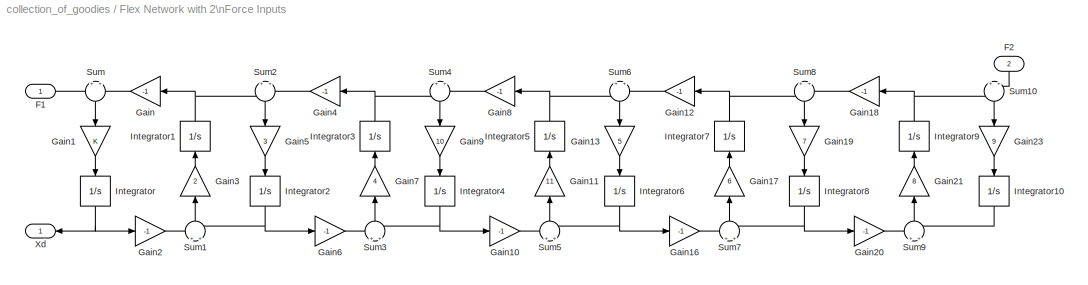
BLOCK [SubSystem] Flex Network with 2\nForce Inputs
  Ports = [2, 1]
  TreatAsAtomicUnit = off
BLOCK [Inport] Flex Network with 2\nForce Inputs/F1
BLOCK [Inport] Flex Network with 2\nForce Inputs/F2
  Port = 2
BLOCK [Gain] Flex Network with 2\nForce Inputs/Gain
  Gain = -1
BLOCK [Gain] Flex Network with 2\nForce Inputs/Gain1
BLOCK [Gain] Flex Network with 2\nForce Inputs/Gain10
  Gain = -1
BLOCK [Gain] Flex Network with 2\nForce Inputs/Gain11
  Gain = 11
BLOCK [Gain] Flex Network with 2\nForce Inputs/Gain12
  Gain = -1
BLOCK [Gain] Flex Network with 2\nForce Inputs/Gain13
  Gain = 5
BLOCK [Gain] Flex Network with 2\nForce Inputs/Gain16
  Gain = -1
BLOCK [Gain] Flex Network with 2\nForce Inputs/Gain17
  Gain = 6
BLOCK [Gain] Flex Network with 2\nForce Inputs/Gain18
  Gain = -1
BLOCK [Gain] Flex Network with 2\nForce Inputs/Gain19
  Gain = 7
BLOCK [Gain] Flex Network with 2\nForce Inputs/Gain2
  Gain = -1
BLOCK [Gain] Flex Network with 2\nForce Inputs/Gain20
  Gain = -1
BLOCK [Gain] Flex Network with 2\nForce Inputs/Gain21
  Gain = 8
BLOCK [Gain] Flex Network with 2\nForce Inputs/Gain23
  Gain = 9
BLOCK [Gain] Flex Network with 2\nForce Inputs/Gain3
  Gain = 2
BLOCK [Gain] Flex Network with 2\nForce Inputs/Gain4
  Gain = -1
BLOCK [Gain] Flex Network with 2\nForce Inputs/Gain5
  Gain = 3
BLOCK [Gain] Flex Network with 2\nForce Inputs/Gain6
  Gain = -1
BLOCK [Gain] Flex Network with 2\nForce Inputs/Gain7
  Gain = 4
BLOCK [Gain] Flex Network with 2\nForce Inputs/Gain8
  Gain = -1
BLOCK [Gain] Flex Network with 2\nForce Inputs/Gain9
  Gain = 10
BLOCK [Integrator] Flex Network with 2\nForce Inputs/Integrator
  Ports = [1, 1]
BLOCK [Integrator] Flex Network with 2\nForce Inputs/Integrator1
  Ports = [1, 1]
BLOCK [Integrator] Flex Network with 2\nForce Inputs/Integrator10
  Ports = [1, 1]
BLOCK [Integrator] Flex Network with 2\nForce Inputs/Integrator2
  Ports = [1, 1]
BLOCK [Integrator] Flex Network with 2\nForce Inputs/Integrator3
  Ports = [1, 1]
BLOCK [Integrator] Flex Network with 2\nForce Inputs/Integrator4
  Ports = [1, 1]
BLOCK [Integrator] Flex Network with 2\nForce Inputs/Integrator5
  Ports = [1, 1]
BLOCK [Integrator] Flex Network with 2\nForce Inputs/Integrator6
  Ports = [1, 1]
BLOCK [Integrator] Flex Network with 2\nForce Inputs/Integrator7
  Ports = [1, 1]
BLOCK [Integrator] Flex Network with 2\nForce Inputs/Integrator8
  Ports = [1, 1]
BLOCK [Integrator] Flex Network with 2\nForce Inputs/Integrator9
  Ports = [1, 1]
BLOCK [Sum] Flex Network with 2\nForce Inputs/Sum
  IconShape = round
  Inputs = +|+
  Ports = [2, 1]
BLOCK [Sum] Flex Network with 2\nForce Inputs/Sum1
  IconShape = round
  Inputs = +|+
  Ports = [2, 1]
BLOCK [Sum] Flex Network with 2\nForce Inputs/Sum10
  IconShape = round
  Inputs = +|+
  Ports = [2, 1]
BLOCK [Sum] Flex Network with 2\nForce Inputs/Sum2
  IconShape = round
  Inputs = +|+
  Ports = [2, 1]
BLOCK [Sum] Flex Network with 2\nForce Inputs/Sum3
  IconShape = round
  Inputs = +|+
  Ports = [2, 1]
BLOCK [Sum] Flex Network with 2\nForce Inputs/Sum4
  IconShape = round
  Inputs = +|+
  Ports = [2, 1]
BLOCK [Sum] Flex Network with 2\nForce Inputs/Sum5
  IconShape = round
  Inputs = +|+
  Ports = [2, 1]
BLOCK [Sum] Flex Network with 2\nForce Inputs/Sum6
  IconShape = round
  Inputs = +|+
  Ports = [2, 1]
BLOCK [Sum] Flex Network with 2\nForce Inputs/Sum7
  IconShape = round
  Inputs = +|+
  Ports = [2, 1]
BLOCK [Sum] Flex Network with 2\nForce Inputs/Sum8
  IconShape = round
  Inputs = +|+
  Ports = [2, 1]
BLOCK [Sum] Flex Network with 2\nForce Inputs/Sum9
  IconShape = round
  Inputs = +|+
  Ports = [2, 1]
BLOCK [Outport] Flex Network with 2\nForce Inputs/Xd
BLOCK [SubSystem] Kane Damper\nwbn is inertial body rate in body axes\napply (-Tdamp) to rigid body
  Ports = [1, 1]
  TreatAsAtomicUnit = off
BLOCK [Gain] Kane Damper\nwbn is inertial body rate in body axes\napply (-Tdamp) to rigid body/Big-dog\nKane damping
  Gain = c
BLOCK [SubSystem] Kane Damper\nwbn is inertial body rate in body axes\napply (-Tdamp) to rigid body/Cross1
  Ports = [2, 1]
  TreatAsAtomicUnit = off
BLOCK [Inport] Kane Damper\nwbn is inertial body rate in body axes\napply (-Tdamp) to rigid body/Cross1/A
BLOCK [Outport] Kane Damper\nwbn is inertial body rate in body axes\napply (-Tdamp) to rigid body/Cross1/AxB
  InitialOutput = 0
BLOCK [Inport] Kane Damper\nwbn is inertial body rate in body axes\napply (-Tdamp) to rigid body/Cross1/B
  Port = 2
BLOCK [Mux] Kane Damper\nwbn is inertial body rate in body axes\napply (-Tdamp) to rigid body/Cross1/Mux4
  Inputs = 3
  Ports = [3, 1]
BLOCK [Product] Kane Damper\nwbn is inertial body rate in body axes\napply (-Tdamp) to rigid body/Cross1/Product
  Ports = [2, 1]
BLOCK [Product] Kane Damper\nwbn is inertial body rate in body axes\napply (-Tdamp) to rigid body/Cross1/Product1
  Ports = [2, 1]
BLOCK [Product] Kane Damper\nwbn is inertial body rate in body axes\napply (-Tdamp) to rigid body/Cross1/Product2
  Ports = [2, 1]
BLOCK [Product] Kane Damper\nwbn is inertial body rate in body axes\napply (-Tdamp) to rigid body/Cross1/Product3
  Ports = [2, 1]
BLOCK [Product] Kane Damper\nwbn is inertial body rate in body axes\napply (-Tdamp) to rigid body/Cross1/Product4
  Ports = [2, 1]
BLOCK [Product] Kane Damper\nwbn is inertial body rate in body axes\napply (-Tdamp) to rigid body/Cross1/Product5
  Ports = [2, 1]
BLOCK [Sum] Kane Damper\nwbn is inertial body rate in body axes\napply (-Tdamp) to rigid body/Cross1/Sum
  Inputs = +-
  Ports = [2, 1]
BLOCK [Sum] Kane Damper\nwbn is inertial body rate in body axes\napply (-Tdamp) to rigid body/Cross1/Sum1
  Inputs = +-
  Ports = [2, 1]
BLOCK [Sum] Kane Damper\nwbn is inertial body rate in body axes\napply (-Tdamp) to rigid body/Cross1/Sum2
  Inputs = +-
  Ports = [2, 1]
BLOCK [Demux] Kane Damper\nwbn is inertial body rate in body axes\napply (-Tdamp) to rigid body/Cross1/demux2
  Outputs = 3
  Ports = [1, 3]
BLOCK [Demux] Kane Damper\nwbn is inertial body rate in body axes\napply (-Tdamp) to rigid body/Cross1/demux3
  Outputs = 3
  Ports = [1, 3]
BLOCK [Gain] Kane Damper\nwbn is inertial body rate in body axes\napply (-Tdamp) to rigid body/Id
  Gain = Id
  Multiplication = Matrix(K*u)
BLOCK [Gain] Kane Damper\nwbn is inertial body rate in body axes\napply (-Tdamp) to rigid body/Id inverse
  Gain = inv(Id)
  Multiplication = Matrix(K*u)
BLOCK [Sum] Kane Damper\nwbn is inertial body rate in body axes\napply (-Tdamp) to rigid body/Sum8
  IconShape = round
  Inputs = |+-
  Ports = [2, 1]
BLOCK [Sum] Kane Damper\nwbn is inertial body rate in body axes\napply (-Tdamp) to rigid body/Sum9
  IconShape = round
  Inputs = |+-
  Ports = [2, 1]
BLOCK [Outport] Kane Damper\nwbn is inertial body rate in body axes\napply (-Tdamp) to rigid body/Tdamp
BLOCK [Inport] Kane Damper\nwbn is inertial body rate in body axes\napply (-Tdamp) to rigid body/wbn
BLOCK [Integrator] Kane Damper\nwbn is inertial body rate in body axes\napply (-Tdamp) to rigid body/wdmp dot -> wdmp
  InitialCondition = wd_init
  Ports = [1, 1]
BLOCK [SubSystem] Orbit EOM
  Ports = [0, 2]
  TreatAsAtomicUnit = off
BLOCK [Demux] Orbit EOM/Demux
  Outputs = 3
  Ports = [1, 3]
BLOCK [Constant] Orbit EOM/Earth's\ngrav constant
  Value = muE
BLOCK [Gain] Orbit EOM/Gain
  Gain = -1
BLOCK [Integrator] Orbit EOM/Integrator
  InitialCondition = v0
  Ports = [1, 1]
BLOCK [Integrator] Orbit EOM/Integrator1
  InitialCondition = r0
  Ports = [1, 1]
BLOCK [Product] Orbit EOM/Product
  InputSameDT = off
  Inputs = */
  Ports = [2, 1]
BLOCK [Product] Orbit EOM/Product1
  InputSameDT = off
  Inputs = ***
  Ports = [3, 1]
BLOCK [Product] Orbit EOM/Product2
  InputSameDT = off
  Inputs = **
  Ports = [2, 1]
BLOCK [Scope] Orbit EOM/Scope
  DataFormat = StructureWithTime
  LimitDataPoints = off
  NumInputPorts = 3
  Ports = [3]
  YMax = 5~5~5
  YMin = -5~-5~-5
BLOCK [SubSystem] Orbit EOM/norm
  Ports = [1, 1]
  TreatAsAtomicUnit = off
BLOCK [Reference] Orbit EOM/norm/Dot Product  REF=simulink/Math\nOperations/Dot Product
  Ports = [2, 1]
  SourceBlock = simulink/Math\nOperations/Dot Product
  SourceType = Dot Product
BLOCK [Math] Orbit EOM/norm/Math\nFunction
  Operator = sqrt
  Ports = [1, 1]
BLOCK [Saturate] Orbit EOM/norm/Saturation
  LowerLimit = 1e-10
  UpperLimit = 1e20
BLOCK [Inport] Orbit EOM/norm/v
BLOCK [Outport] Orbit EOM/norm/|v|
BLOCK [Outport] Orbit EOM/r
BLOCK [Outport] Orbit EOM/v
  Port = 2
BLOCK [SubSystem] Propagate Attitude via DCM\n(not as nice as the quaternion method)
  Ports = [1, 1]
  TreatAsAtomicUnit = off
BLOCK [Product] Propagate Attitude via DCM\n(not as nice as the quaternion method)/((a*phi)^X)^2
  Multiplication = Matrix(*)
  Ports = [2, 1]
BLOCK [Product] Propagate Attitude via DCM\n(not as nice as the quaternion method)/((a*phi)^X)^2\n*2sin^2(phi//2)//phi^2\n
  Ports = [2, 1]
BLOCK [Math] Propagate Attitude via DCM\n(not as nice as the quaternion method)/(a*phi)T
  Operator = transpose
  Ports = [1, 1]
BLOCK [Product] Propagate Attitude via DCM\n(not as nice as the quaternion method)/(a*phi)T(a*phi)
  Multiplication = Matrix(*)
  Ports = [2, 1]
BLOCK [SubSystem] Propagate Attitude via DCM\n(not as nice as the quaternion method)/(a*phi)^X
  MaskDisplay = disp('3x3 cross matrix')
  MaskIconFrame = on
  MaskIconOpaque = on
  MaskIconRotate = none
  MaskIconUnits = autoscale
  Ports = [1, 1]
  TreatAsAtomicUnit = off
BLOCK [Product] Propagate Attitude via DCM\n(not as nice as the quaternion method)/(a*phi)^X*(-sin(phi)//phi)
  Ports = [2, 1]
BLOCK [Reference] Propagate Attitude via DCM\n(not as nice as the quaternion method)/(a*phi)^X/3x3  REF=simulink/Math\nOperations/Reshape
  OutputDimensionality = Customize
  OutputDimensions = [3,3]
  Ports = [1, 1]
  SourceBlock = simulink/Math\nOperations/Reshape
  SourceType = Reshape
BLOCK [Demux] Propagate Attitude via DCM\n(not as nice as the quaternion method)/(a*phi)^X/Demux
  Outputs = 3
  Ports = [1, 3]
BLOCK [Gain] Propagate Attitude via DCM\n(not as nice as the quaternion method)/(a*phi)^X/Gain
  Gain = -1
BLOCK [Gain] Propagate Attitude via DCM\n(not as nice as the quaternion method)/(a*phi)^X/Gain1
  Gain = -1
BLOCK [Gain] Propagate Attitude via DCM\n(not as nice as the quaternion method)/(a*phi)^X/Gain2
  Gain = -1
BLOCK [Inport] Propagate Attitude via DCM\n(not as nice as the quaternion method)/(a*phi)^X/In1
BLOCK [Mux] Propagate Attitude via DCM\n(not as nice as the quaternion method)/(a*phi)^X/Mux
  DisplayOption = bar
  Inputs = 9
  Ports = [9, 1]
BLOCK [Outport] Propagate Attitude via DCM\n(not as nice as the quaternion method)/(a*phi)^X/Out1
BLOCK [Constant] Propagate Attitude via DCM\n(not as nice as the quaternion method)/(a*phi)^X/diag 0 
  Value = 0
BLOCK [Product] Propagate Attitude via DCM\n(not as nice as the quaternion method)/-sin(phi)//phi
  Inputs = */
  Ports = [2, 1]
BLOCK [Gain] Propagate Attitude via DCM\n(not as nice as the quaternion method)/2phi^2
  Gain = 2
BLOCK [Product] Propagate Attitude via DCM\n(not as nice as the quaternion method)/2sin^2(phi//2)//phi^2
  Inputs = */
  Ports = [2, 1]
BLOCK [Constant] Propagate Attitude via DCM\n(not as nice as the quaternion method)/3x3 identity
  Value = eye(3)
BLOCK [Outport] Propagate Attitude via DCM\n(not as nice as the quaternion method)/DCM
BLOCK [Inport] Propagate Attitude via DCM\n(not as nice as the quaternion method)/Fine Channel\ndelta angles
BLOCK [Gain] Propagate Attitude via DCM\n(not as nice as the quaternion method)/Gain
  Gain = -1
BLOCK [Memory] Propagate Attitude via DCM\n(not as nice as the quaternion method)/Memory
  X0 = eye(3)
BLOCK [Sum] Propagate Attitude via DCM\n(not as nice as the quaternion method)/Sum
  Inputs = +++
  Ports = [3, 1]
BLOCK [Product] Propagate Attitude via DCM\n(not as nice as the quaternion method)/current DCM
  Multiplication = Matrix(*)
  Ports = [2, 1]
BLOCK [Math] Propagate Attitude via DCM\n(not as nice as the quaternion method)/phi
  Operator = sqrt
  Ports = [1, 1]
BLOCK [Gain] Propagate Attitude via DCM\n(not as nice as the quaternion method)/phi//2
  Gain = 0.5
BLOCK [Product] Propagate Attitude via DCM\n(not as nice as the quaternion method)/phi^2
  Ports = [2, 1]
BLOCK [Trigonometry] Propagate Attitude via DCM\n(not as nice as the quaternion method)/sin(phi)
  Ports = [1, 1]
BLOCK [Trigonometry] Propagate Attitude via DCM\n(not as nice as the quaternion method)/sin(phi//2)
  Ports = [1, 1]
BLOCK [Product] Propagate Attitude via DCM\n(not as nice as the quaternion method)/sin^2(phi//2)
  Ports = [2, 1]
BLOCK [SubSystem] Propagate Attitude via Quaternion
  Ports = [1, 1]
  TreatAsAtomicUnit = off
BLOCK [Math] Propagate Attitude via Quaternion/(a*phi)T
  Operator = transpose
  Ports = [1, 1]
BLOCK [Product] Propagate Attitude via Quaternion/(a*phi)T(a*phi)
  Multiplication = Matrix(*)
  Ports = [2, 1]
BLOCK [Constant] Propagate Attitude via Quaternion/Constant
BLOCK [Demux] Propagate Attitude via Quaternion/Demux
  Outputs = 3
  Ports = [1, 3]
BLOCK [Inport] Propagate Attitude via Quaternion/Fine Channel\ndelta angles
BLOCK [Gain] Propagate Attitude via Quaternion/Gain
  Gain = 0.5
BLOCK [Mux] Propagate Attitude via Quaternion/Mux
  DisplayOption = bar
  Ports = [4, 1]
BLOCK [Sum] Propagate Attitude via Quaternion/Sum
  IconShape = round
  Inputs = |-+
  Ports = [2, 1]
BLOCK [Memory] Propagate Attitude via Quaternion/previous\nvalue
  X0 = [0 0 0 1]'
BLOCK [SubSystem] Propagate Attitude via Quaternion/q_normalize
  Ports = [1, 1]
  TreatAsAtomicUnit = off
BLOCK [Reference] Propagate Attitude via Quaternion/q_normalize/Dot Product  REF=simulink/Math\nOperations/Dot Product
  Ports = [2, 1]
  SourceBlock = simulink/Math\nOperations/Dot Product
  SourceType = Dot Product
BLOCK [Math] Propagate Attitude via Quaternion/q_normalize/Math\nFunction
  Operator = sqrt
  Ports = [1, 1]
BLOCK [Product] Propagate Attitude via Quaternion/q_normalize/Product
  Inputs = */
  Ports = [2, 1]
BLOCK [Inport] Propagate Attitude via Quaternion/q_normalize/q_in
  PortDimensions = 4
BLOCK [Outport] Propagate Attitude via Quaternion/q_normalize/q_out
BLOCK [Outport] Propagate Attitude via Quaternion/quat
BLOCK [SubSystem] Propagate Attitude via Quaternion/quat_multiply
  Ports = [2, 1]
  TreatAsAtomicUnit = off
BLOCK [Mux] Propagate Attitude via Quaternion/quat_multiply/Mux
  DisplayOption = bar
  Inputs = 2
  Ports = [2, 1]
BLOCK [Mux] Propagate Attitude via Quaternion/quat_multiply/Mux1
  DisplayOption = bar
  Ports = [4, 1]
BLOCK [Inport] Propagate Attitude via Quaternion/quat_multiply/q_ab
  Port = 2
BLOCK [Outport] Propagate Attitude via Quaternion/quat_multiply/q_ac
BLOCK [Inport] Propagate Attitude via Quaternion/quat_multiply/q_bc
BLOCK [Fcn] Propagate Attitude via Quaternion/quat_multiply/qerr1
  Expr = u(4)*u(5)+u(3)*u(6)-u(2)*u(7)+u(1)*u(8)
BLOCK [Fcn] Propagate Attitude via Quaternion/quat_multiply/qerr2
  Expr = -u(3)*u(5)+u(4)*u(6)+u(1)*u(7)+u(2)*u(8)
BLOCK [Fcn] Propagate Attitude via Quaternion/quat_multiply/qerr3
  Expr = u(2)*u(5)-u(1)*u(6)+u(4)*u(7)+u(3)*u(8)
BLOCK [Fcn] Propagate Attitude via Quaternion/quat_multiply/qerr4
  Expr = -u(1)*u(5)-u(2)*u(6)-u(3)*u(7)+u(4)*u(8)
BLOCK [SubSystem] Quaternion\nIntegration
  Ports = [1, 1]
  TreatAsAtomicUnit = off
BLOCK [Integrator] Quaternion\nIntegration/Integrator1
  InitialCondition = q0
  Ports = [1, 1]
BLOCK [Outport] Quaternion\nIntegration/q_B//N
BLOCK [SubSystem] Quaternion\nIntegration/q_normalize
  Ports = [1, 1]
  TreatAsAtomicUnit = off
BLOCK [Reference] Quaternion\nIntegration/q_normalize/Dot Product  REF=simulink/Math\nOperations/Dot Product
  Ports = [2, 1]
  SourceBlock = simulink/Math\nOperations/Dot Product
  SourceType = Dot Product
BLOCK [Math] Quaternion\nIntegration/q_normalize/Math\nFunction
  Operator = sqrt
  Ports = [1, 1]
BLOCK [Product] Quaternion\nIntegration/q_normalize/Product
  Inputs = */
  Ports = [2, 1]
BLOCK [Inport] Quaternion\nIntegration/q_normalize/q_in
  PortDimensions = 4
BLOCK [Outport] Quaternion\nIntegration/q_normalize/q_out
BLOCK [SubSystem] Quaternion\nIntegration/qderiv
  Ports = [2, 1]
  TreatAsAtomicUnit = off
BLOCK [Mux] Quaternion\nIntegration/qderiv/Mux
  DisplayOption = bar
  Inputs = 2
  Ports = [2, 1]
BLOCK [Mux] Quaternion\nIntegration/qderiv/Mux1
  DisplayOption = bar
  Ports = [4, 1]
BLOCK [Inport] Quaternion\nIntegration/qderiv/q
  Port = 2
BLOCK [Outport] Quaternion\nIntegration/qderiv/qd
BLOCK [Fcn] Quaternion\nIntegration/qderiv/qd1
  Expr = (u(7)*u(1)-u(6)*u(2)+u(5)*u(3))/2
BLOCK [Fcn] Quaternion\nIntegration/qderiv/qd2
  Expr = (u(6)*u(1)+u(7)*u(2)-u(4)*u(3))/2
BLOCK [Fcn] Quaternion\nIntegration/qderiv/qd3
  Expr = (-u(5)*u(1)+u(4)*u(2)+u(7)*u(3))/2
BLOCK [Fcn] Quaternion\nIntegration/qderiv/qd4
  Expr = (-u(4)*u(1)-u(5)*u(2)-u(6)*u(3))/2
BLOCK [Inport] Quaternion\nIntegration/qderiv/w
BLOCK [Inport] Quaternion\nIntegration/w B//N
BLOCK [SubSystem] RLS
  MaskIconFrame = on
  MaskIconOpaque = on
  MaskIconRotate = none
  MaskIconUnits = autoscale
  Ports = [2, 1]
  TreatAsAtomicUnit = off
BLOCK [Reference] RLS/ LU Inverse  REF=dspinverses/ LU Inverse
  Ports = [1, 1]
  SourceBlock = dspinverses/ LU Inverse
  SourceType = LU Inverse
BLOCK [Inport] RLS/A
BLOCK [Constant] RLS/Constant2
  Value = lam*eye(ls)
BLOCK [Constant] RLS/Constant3
  Value = eye(lt)
BLOCK [Constant] RLS/Constant4
  Value = 1/lam*eye(lt)
BLOCK [Product] RLS/K
  InputSameDT = off
  Inputs = 3
  Multiplication = Matrix(*)
  Ports = [3, 1]
BLOCK [Math] RLS/Math\nFunction
  Operator = transpose
  Ports = [1, 1]
BLOCK [Math] RLS/Math\nFunction1
  Operator = transpose
  Ports = [1, 1]
BLOCK [Memory] RLS/P(t-1)
  InheritSampleTime = on
  X0 = P0
BLOCK [Product] RLS/Product2
  InputSameDT = off
  Inputs = 3
  Multiplication = Matrix(*)
  Ports = [3, 1]
BLOCK [Product] RLS/Product4
  InputSameDT = off
  Inputs = 3
  Multiplication = Matrix(*)
  Ports = [3, 1]
BLOCK [Product] RLS/Product5
  InputSameDT = off
  Multiplication = Matrix(*)
  Ports = [2, 1]
BLOCK [Product] RLS/Product7
  InputSameDT = off
  Multiplication = Matrix(*)
  Ports = [2, 1]
BLOCK [Product] RLS/Product8
  InputSameDT = off
  Multiplication = Matrix(*)
  Ports = [2, 1]
BLOCK [Sum] RLS/Sum1
  IconShape = round
  InputSameDT = off
  Inputs = |++
  OutDataTypeMode = Inherit via internal rule
  Ports = [2, 1]
BLOCK [Sum] RLS/Sum2
  IconShape = round
  InputSameDT = off
  Inputs = |+-
  OutDataTypeMode = Inherit via internal rule
  Ports = [2, 1]
BLOCK [Sum] RLS/Sum3
  IconShape = round
  InputSameDT = off
  Inputs = |++
  OutDataTypeMode = Inherit via internal rule
  Ports = [2, 1]
BLOCK [Sum] RLS/Sum5
  IconShape = round
  InputSameDT = off
  Inputs = |+-
  OutDataTypeMode = Inherit via internal rule
  Ports = [2, 1]
BLOCK [Outport] RLS/x =pinv(A)*y
BLOCK [Memory] RLS/x(t-1)
  InheritSampleTime = on
  X0 = x0
BLOCK [Inport] RLS/y
  Port = 2
BLOCK [SubSystem] Rigid Body with\nMomentum Actuators\nand energy dissipation
  Ports = [1, 2]
  TreatAsAtomicUnit = off
BLOCK [SubSystem] Rigid Body with\nMomentum Actuators\nand energy dissipation/Cross
  Ports = [2, 1]
  TreatAsAtomicUnit = off
BLOCK [Inport] Rigid Body with\nMomentum Actuators\nand energy dissipation/Cross/A
BLOCK [Outport] Rigid Body with\nMomentum Actuators\nand energy dissipation/Cross/AxB
  InitialOutput = 0
BLOCK [Inport] Rigid Body with\nMomentum Actuators\nand energy dissipation/Cross/B
  Port = 2
BLOCK [Mux] Rigid Body with\nMomentum Actuators\nand energy dissipation/Cross/Mux4
  Inputs = 3
  Ports = [3, 1]
BLOCK [Product] Rigid Body with\nMomentum Actuators\nand energy dissipation/Cross/Product
  Ports = [2, 1]
BLOCK [Product] Rigid Body with\nMomentum Actuators\nand energy dissipation/Cross/Product1
  Ports = [2, 1]
BLOCK [Product] Rigid Body with\nMomentum Actuators\nand energy dissipation/Cross/Product2
  Ports = [2, 1]
BLOCK [Product] Rigid Body with\nMomentum Actuators\nand energy dissipation/Cross/Product3
  Ports = [2, 1]
BLOCK [Product] Rigid Body with\nMomentum Actuators\nand energy dissipation/Cross/Product4
  Ports = [2, 1]
BLOCK [Product] Rigid Body with\nMomentum Actuators\nand energy dissipation/Cross/Product5
  Ports = [2, 1]
BLOCK [Sum] Rigid Body with\nMomentum Actuators\nand energy dissipation/Cross/Sum
  Inputs = +-
  Ports = [2, 1]
BLOCK [Sum] Rigid Body with\nMomentum Actuators\nand energy dissipation/Cross/Sum1
  Inputs = +-
  Ports = [2, 1]
BLOCK [Sum] Rigid Body with\nMomentum Actuators\nand energy dissipation/Cross/Sum2
  Inputs = +-
  Ports = [2, 1]
BLOCK [Demux] Rigid Body with\nMomentum Actuators\nand energy dissipation/Cross/demux2
  Outputs = 3
  Ports = [1, 3]
BLOCK [Demux] Rigid Body with\nMomentum Actuators\nand energy dissipation/Cross/demux3
  Outputs = 3
  Ports = [1, 3]
BLOCK [SubSystem] Rigid Body with\nMomentum Actuators\nand energy dissipation/Cross1
  Ports = [2, 1]
  TreatAsAtomicUnit = off
BLOCK [Inport] Rigid Body with\nMomentum Actuators\nand energy dissipation/Cross1/A
BLOCK [Outport] Rigid Body with\nMomentum Actuators\nand energy dissipation/Cross1/AxB
  InitialOutput = 0
BLOCK [Inport] Rigid Body with\nMomentum Actuators\nand energy dissipation/Cross1/B
  Port = 2
BLOCK [Mux] Rigid Body with\nMomentum Actuators\nand energy dissipation/Cross1/Mux4
  Inputs = 3
  Ports = [3, 1]
BLOCK [Product] Rigid Body with\nMomentum Actuators\nand energy dissipation/Cross1/Product
  Ports = [2, 1]
BLOCK [Product] Rigid Body with\nMomentum Actuators\nand energy dissipation/Cross1/Product1
  Ports = [2, 1]
BLOCK [Product] Rigid Body with\nMomentum Actuators\nand energy dissipation/Cross1/Product2
  Ports = [2, 1]
BLOCK [Product] Rigid Body with\nMomentum Actuators\nand energy dissipation/Cross1/Product3
  Ports = [2, 1]
BLOCK [Product] Rigid Body with\nMomentum Actuators\nand energy dissipation/Cross1/Product4
  Ports = [2, 1]
BLOCK [Product] Rigid Body with\nMomentum Actuators\nand energy dissipation/Cross1/Product5
  Ports = [2, 1]
BLOCK [Sum] Rigid Body with\nMomentum Actuators\nand energy dissipation/Cross1/Sum
  Inputs = +-
  Ports = [2, 1]
BLOCK [Sum] Rigid Body with\nMomentum Actuators\nand energy dissipation/Cross1/Sum1
  Inputs = +-
  Ports = [2, 1]
BLOCK [Sum] Rigid Body with\nMomentum Actuators\nand energy dissipation/Cross1/Sum2
  Inputs = +-
  Ports = [2, 1]
BLOCK [Demux] Rigid Body with\nMomentum Actuators\nand energy dissipation/Cross1/demux2
  Outputs = 3
  Ports = [1, 3]
BLOCK [Demux] Rigid Body with\nMomentum Actuators\nand energy dissipation/Cross1/demux3
  Outputs = 3
  Ports = [1, 3]
BLOCK [Demux] Rigid Body with\nMomentum Actuators\nand energy dissipation/Demux
  Outputs = 3
  Ports = [1, 3]
BLOCK [Demux] Rigid Body with\nMomentum Actuators\nand energy dissipation/Demux1
  Outputs = 3
  Ports = [1, 3]
BLOCK [Gain] Rigid Body with\nMomentum Actuators\nand energy dissipation/Id
  Gain = Id
  Multiplication = Matrix(K*u)
BLOCK [Gain] Rigid Body with\nMomentum Actuators\nand energy dissipation/Id inverse
  Gain = invId
  Multiplication = Matrix(K*u)
BLOCK [Gain] Rigid Body with\nMomentum Actuators\nand energy dissipation/Inertia
  Gain = I
  Multiplication = Matrix(K*u)
BLOCK [Gain] Rigid Body with\nMomentum Actuators\nand energy dissipation/Isc inverse
  Gain = invI
  Multiplication = Matrix(K*u)
BLOCK [Gain] Rigid Body with\nMomentum Actuators\nand energy dissipation/Kane\ndamping
  Gain = c
BLOCK [Saturate] Rigid Body with\nMomentum Actuators\nand energy dissipation/Max\nTorque
  LowerLimit = -hdmax
  UpperLimit = hdmax
BLOCK [Mux] Rigid Body with\nMomentum Actuators\nand energy dissipation/Mux
  DisplayOption = bar
  Inputs = 3
  Ports = [3, 1]
BLOCK [SubSystem] Rigid Body with\nMomentum Actuators\nand energy dissipation/Quaternion\nIntegration
  Ports = [1, 1]
  TreatAsAtomicUnit = off
BLOCK [Integrator] Rigid Body with\nMomentum Actuators\nand energy dissipation/Quaternion\nIntegration/Integrator1
  InitialCondition = q_init
  Ports = [1, 1]
BLOCK [Outport] Rigid Body with\nMomentum Actuators\nand energy dissipation/Quaternion\nIntegration/q_I_Body
BLOCK [SubSystem] Rigid Body with\nMomentum Actuators\nand energy dissipation/Quaternion\nIntegration/q_normalize
  Ports = [1, 1]
  TreatAsAtomicUnit = off
BLOCK [Reference] Rigid Body with\nMomentum Actuators\nand energy dissipation/Quaternion\nIntegration/q_normalize/Dot Product  REF=simulink/Math\nOperations/Dot Product
  Ports = [2, 1]
  SourceBlock = simulink/Math\nOperations/Dot Product
  SourceType = Dot Product
BLOCK [Math] Rigid Body with\nMomentum Actuators\nand energy dissipation/Quaternion\nIntegration/q_normalize/Math\nFunction
  Operator = sqrt
  Ports = [1, 1]
BLOCK [Product] Rigid Body with\nMomentum Actuators\nand energy dissipation/Quaternion\nIntegration/q_normalize/Product
  Inputs = */
  Ports = [2, 1]
BLOCK [Inport] Rigid Body with\nMomentum Actuators\nand energy dissipation/Quaternion\nIntegration/q_normalize/q_in
  PortDimensions = 4
BLOCK [Outport] Rigid Body with\nMomentum Actuators\nand energy dissipation/Quaternion\nIntegration/q_normalize/q_out
BLOCK [SubSystem] Rigid Body with\nMomentum Actuators\nand energy dissipation/Quaternion\nIntegration/qderiv
  Ports = [2, 1]
  TreatAsAtomicUnit = off
BLOCK [Mux] Rigid Body with\nMomentum Actuators\nand energy dissipation/Quaternion\nIntegration/qderiv/Mux
  DisplayOption = bar
  Inputs = 2
  Ports = [2, 1]
BLOCK [Mux] Rigid Body with\nMomentum Actuators\nand energy dissipation/Quaternion\nIntegration/qderiv/Mux1
  DisplayOption = bar
  Ports = [4, 1]
BLOCK [Inport] Rigid Body with\nMomentum Actuators\nand energy dissipation/Quaternion\nIntegration/qderiv/q
  Port = 2
BLOCK [Outport] Rigid Body with\nMomentum Actuators\nand energy dissipation/Quaternion\nIntegration/qderiv/qd
BLOCK [Fcn] Rigid Body with\nMomentum Actuators\nand energy dissipation/Quaternion\nIntegration/qderiv/qd1
  Expr = (u(7)*u(1)-u(6)*u(2)+u(5)*u(3))/2
BLOCK [Fcn] Rigid Body with\nMomentum Actuators\nand energy dissipation/Quaternion\nIntegration/qderiv/qd2
  Expr = (u(6)*u(1)+u(7)*u(2)-u(4)*u(3))/2
BLOCK [Fcn] Rigid Body with\nMomentum Actuators\nand energy dissipation/Quaternion\nIntegration/qderiv/qd3
  Expr = (-u(5)*u(1)+u(4)*u(2)+u(7)*u(3))/2
BLOCK [Fcn] Rigid Body with\nMomentum Actuators\nand energy dissipation/Quaternion\nIntegration/qderiv/qd4
  Expr = (-u(4)*u(1)-u(5)*u(2)-u(6)*u(3))/2
BLOCK [Inport] Rigid Body with\nMomentum Actuators\nand energy dissipation/Quaternion\nIntegration/qderiv/w
BLOCK [Inport] Rigid Body with\nMomentum Actuators\nand energy dissipation/Quaternion\nIntegration/w_Body
BLOCK [Scope] Rigid Body with\nMomentum Actuators\nand energy dissipation/Scope
  DataFormat = StructureWithTime
  LimitDataPoints = off
  NumInputPorts = 1
  Ports = [1]
  SaveName = ScopeData2
  YMax = 0.03
  YMin = -0.01
  ZoomMode = xonly
BLOCK [Scope] Rigid Body with\nMomentum Actuators\nand energy dissipation/Scope1
  DataFormat = StructureWithTime
  LimitDataPoints = off
  NumInputPorts = 1
  Ports = [1]
  SaveName = ScopeData3
  YMax = 0.03
  YMin = -0.01
  ZoomMode = xonly
BLOCK [Sum] Rigid Body with\nMomentum Actuators\nand energy dissipation/Sum
  IconShape = round
  Inputs = |+-
  Ports = [2, 1]
BLOCK [Sum] Rigid Body with\nMomentum Actuators\nand energy dissipation/Sum1
  IconShape = round
  Inputs = |++
  Ports = [2, 1]
BLOCK [Sum] Rigid Body with\nMomentum Actuators\nand energy dissipation/Sum2
  IconShape = round
  Inputs = |++
  Ports = [2, 1]
BLOCK [Sum] Rigid Body with\nMomentum Actuators\nand energy dissipation/Sum8
  IconShape = round
  Inputs = |-+
  Ports = [2, 1]
BLOCK [Sum] Rigid Body with\nMomentum Actuators\nand energy dissipation/Sum9
  IconShape = round
  Inputs = |+-
  Ports = [2, 1]
BLOCK [Switch] Rigid Body with\nMomentum Actuators\nand energy dissipation/Switch
  Threshold = 0.5
BLOCK [Switch] Rigid Body with\nMomentum Actuators\nand energy dissipation/Switch1
  Threshold = 0.5
BLOCK [Switch] Rigid Body with\nMomentum Actuators\nand energy dissipation/Switch2
  Threshold = 0.5
BLOCK [Inport] Rigid Body with\nMomentum Actuators\nand energy dissipation/hb
BLOCK [Integrator] Rigid Body with\nMomentum Actuators\nand energy dissipation/hb -> h
  InitialCondition = h_init
  Ports = [1, 1]
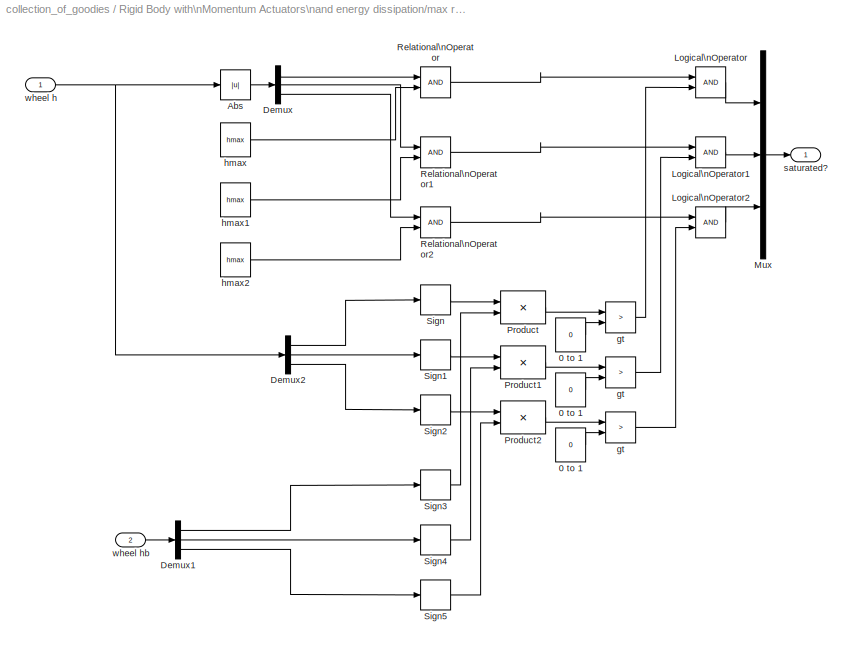
BLOCK [SubSystem] Rigid Body with\nMomentum Actuators\nand energy dissipation/max rate check
  Ports = [2, 1]
  TreatAsAtomicUnit = off
BLOCK [Constant] Rigid Body with\nMomentum Actuators\nand energy dissipation/max rate check/0 to 1
  Value = 0
  VectorParams1D = off
BLOCK [Constant] Rigid Body with\nMomentum Actuators\nand energy dissipation/max rate check/0 to 1 
  Value = 0
  VectorParams1D = off
BLOCK [Constant] Rigid Body with\nMomentum Actuators\nand energy dissipation/max rate check/0 to 1  
  Value = 0
  VectorParams1D = off
BLOCK [Abs] Rigid Body with\nMomentum Actuators\nand energy dissipation/max rate check/Abs
BLOCK [Demux] Rigid Body with\nMomentum Actuators\nand energy dissipation/max rate check/Demux
  Outputs = 3
  Ports = [1, 3]
BLOCK [Demux] Rigid Body with\nMomentum Actuators\nand energy dissipation/max rate check/Demux1
  Outputs = 3
  Ports = [1, 3]
BLOCK [Demux] Rigid Body with\nMomentum Actuators\nand energy dissipation/max rate check/Demux2
  Outputs = 3
  Ports = [1, 3]
BLOCK [Logic] Rigid Body with\nMomentum Actuators\nand energy dissipation/max rate check/Logical\nOperator
  Ports = [2, 1]
BLOCK [Logic] Rigid Body with\nMomentum Actuators\nand energy dissipation/max rate check/Logical\nOperator1
  Ports = [2, 1]
BLOCK [Logic] Rigid Body with\nMomentum Actuators\nand energy dissipation/max rate check/Logical\nOperator2
  Ports = [2, 1]
BLOCK [Mux] Rigid Body with\nMomentum Actuators\nand energy dissipation/max rate check/Mux
  DisplayOption = bar
  Inputs = 3
  Ports = [3, 1]
BLOCK [Product] Rigid Body with\nMomentum Actuators\nand energy dissipation/max rate check/Product
  Ports = [2, 1]
BLOCK [Product] Rigid Body with\nMomentum Actuators\nand energy dissipation/max rate check/Product1
  Ports = [2, 1]
BLOCK [Product] Rigid Body with\nMomentum Actuators\nand energy dissipation/max rate check/Product2
  Ports = [2, 1]
BLOCK [RelationalOperator] Rigid Body with\nMomentum Actuators\nand energy dissipation/max rate check/Relational\nOperator
BLOCK [RelationalOperator] Rigid Body with\nMomentum Actuators\nand energy dissipation/max rate check/Relational\nOperator1
BLOCK [RelationalOperator] Rigid Body with\nMomentum Actuators\nand energy dissipation/max rate check/Relational\nOperator2
BLOCK [Signum] Rigid Body with\nMomentum Actuators\nand energy dissipation/max rate check/Sign
BLOCK [Signum] Rigid Body with\nMomentum Actuators\nand energy dissipation/max rate check/Sign1
BLOCK [Signum] Rigid Body with\nMomentum Actuators\nand energy dissipation/max rate check/Sign2
BLOCK [Signum] Rigid Body with\nMomentum Actuators\nand energy dissipation/max rate check/Sign3
BLOCK [Signum] Rigid Body with\nMomentum Actuators\nand energy dissipation/max rate check/Sign4
BLOCK [Signum] Rigid Body with\nMomentum Actuators\nand energy dissipation/max rate check/Sign5
BLOCK [RelationalOperator] Rigid Body with\nMomentum Actuators\nand energy dissipation/max rate check/gt
  Operator = >
BLOCK [RelationalOperator] Rigid Body with\nMomentum Actuators\nand energy dissipation/max rate check/gt 
  Operator = >
BLOCK [RelationalOperator] Rigid Body with\nMomentum Actuators\nand energy dissipation/max rate check/gt  
  Operator = >
BLOCK [Constant] Rigid Body with\nMomentum Actuators\nand energy dissipation/max rate check/hmax
  Value = hmax
  VectorParams1D = off
BLOCK [Constant] Rigid Body with\nMomentum Actuators\nand energy dissipation/max rate check/hmax1
  Value = hmax
  VectorParams1D = off
BLOCK [Constant] Rigid Body with\nMomentum Actuators\nand energy dissipation/max rate check/hmax2
  Value = hmax
  VectorParams1D = off
BLOCK [Outport] Rigid Body with\nMomentum Actuators\nand energy dissipation/max rate check/saturated?
BLOCK [Inport] Rigid Body with\nMomentum Actuators\nand energy dissipation/max rate check/wheel h
BLOCK [Inport] Rigid Body with\nMomentum Actuators\nand energy dissipation/max rate check/wheel hb
  Port = 2
BLOCK [Constant] Rigid Body with\nMomentum Actuators\nand energy dissipation/no torque
  Value = 0
BLOCK [Outport] Rigid Body with\nMomentum Actuators\nand energy dissipation/quat
BLOCK [Outport] Rigid Body with\nMomentum Actuators\nand energy dissipation/rate
  Port = 2
BLOCK [Integrator] Rigid Body with\nMomentum Actuators\nand energy dissipation/wdmp dot -> wdmp
  InitialCondition = wdn_init
  Ports = [1, 1]
BLOCK [Integrator] Rigid Body with\nMomentum Actuators\nand energy dissipation/wdot -> w
  InitialCondition = wbn_init
  Ports = [1, 1]
BLOCK [SubSystem] SimMechanics\nembedded h body
  Ports = [0, 0, 0, 0, 0, 1, 1]
  TreatAsAtomicUnit = off
BLOCK [Reference] SimMechanics\nembedded h body/Body  REF=mblibv1/Bodies/Body
  CG = Left$CG$R34$WORLD$WORLD$m$[0 0 0]$Euler X-Y-Z$deg$WORLD$false
  ClassName = Body
  Density = 1
  DensityUnits = kg/m^3
  DensityUse = false
  DialogClass = MechanicalBodyBlock
  Inertia = I34
  InertiaUnits = kg*m^2
  LConnTagsString = CS1|CS4
  Mass = M34
  MassUnits = kg
  PhysicalDomain = mechanical
  PortType = workingframe
  Ports = [0, 0, 0, 0, 0, 2, 2]
  RConnTagsString = CS2|CS3
  Shape = Cylinder
  ShapeDims = [1 1]
  ShapeUnits = m
  ShapeUse = false
  SourceBlock = mblibv1/Bodies/Body
  SourceType = msb
  SubClassName = Unknown
  WorkingFrames = Left$CS1$[0 -1 0]$CG$CG$m$[0 0 0]$Euler X-Y-Z$deg$WORLD$true#Right$CS2$[1 0 0]$CG$CG$m$[0 0 0]$Euler X-Y-Z$deg$WORLD$true#Right$CS3$[-1 0 0]$CG$CG$m$[0 0 0]$Euler X-Y-Z$deg$WORLD$true#Left$CS4$[0 1 0]$CG$CG$m$[0 0 0]$Euler X-Y-Z$deg$WORLD$true
BLOCK [Reference] SimMechanics\nembedded h body/Body Actuator  REF=mblibv1/Sensors & \nActuators/Body Actuator
  AccelerationUnits = m/s^2
  ActuationStyle = Force
  Angle = off
  AngleUnits = deg
  ArcAccelerationUnits = deg/s^2
  ArcVelocityUnits = deg/s
  ClassName = BodyActuator
  CoordPosition = on
  CoordPositionUnits = m
  DialogClass = MechanicalActuatorBlock
  Force = off
  ForceUnits = N
  PhysicalDomain = Mechanical
  PortType = blob
  Ports = [1, 0, 0, 0, 0, 0, 1]
  ReferenceFrame = Local (Body CS)
  SourceBlock = mblibv1/Sensors & \nActuators/Body Actuator
  SourceType = msb
  Tag = __orphan__
  Torque = on
  TorqueUnits = N-m
  VelocityUnits = m/s
BLOCK [Reference] SimMechanics\nembedded h body/Body Sensor  REF=mblibv1/Sensors & \nActuators/Body Sensor
  Acceleration = off
  AccelerationUnits = m/s^2
  Angle = on
  AngleUnits = deg
  ArcAcceleration = off
  ArcAccelerationUnits = deg/s^2
  ArcVelocity = on
  ArcVelocityUnits = rad/s
  ClassName = BodySensor
  CoordPosition = off
  CoordPositionUnits = m
  DialogClass = MechanicalSensorBlock
  Muxed = on
  OutputVector = [ 3 ]
  PhysicalDomain = Mechanical
  PortType = blob
  Ports = [0, 1, 0, 0, 0, 1]
  Pose = off
  Quaternion = on
  QuaternionDDT = off
  QuaternionDT = off
  QuaternionUnits = off
  ReferenceFrame = Local (Body CS)
  SourceBlock = mblibv1/Sensors & \nActuators/Body Sensor
  SourceType = msb
  Tag = __orphan__
  Velocity = off
  VelocityUnits = m/s
BLOCK [PMIOPort] SimMechanics\nembedded h body/CS1
  Port = 1
  Side = left
BLOCK [PMIOPort] SimMechanics\nembedded h body/CS2
  Port = 2
  Side = right
BLOCK [Gain] SimMechanics\nembedded h body/Gain
  Gain = -1
BLOCK [SubSystem] SimMechanics\nembedded h body/cross2
  Ports = [2, 1]
  TreatAsAtomicUnit = off
BLOCK [Demux] SimMechanics\nembedded h body/cross2/Demux
  Outputs = 3
  Ports = [1, 3]
BLOCK [Demux] SimMechanics\nembedded h body/cross2/Demux1
  Outputs = 3
  Ports = [1, 3]
BLOCK [Fcn] SimMechanics\nembedded h body/cross2/Fcn
  Expr = -u(3)*u(5)+u(2)*u(6)
BLOCK [Fcn] SimMechanics\nembedded h body/cross2/Fcn1
  Expr = u(3)*u(4)-u(1)*u(6)
BLOCK [Fcn] SimMechanics\nembedded h body/cross2/Fcn2
  Expr = -u(2)*u(4)+u(1)*u(5)
BLOCK [Mux] SimMechanics\nembedded h body/cross2/Mux
  DisplayOption = bar
  Inputs = 6
  Ports = [6, 1]
BLOCK [Mux] SimMechanics\nembedded h body/cross2/Mux1
  DisplayOption = bar
  Inputs = 3
  Ports = [3, 1]
BLOCK [Inport] SimMechanics\nembedded h body/cross2/a
BLOCK [Outport] SimMechanics\nembedded h body/cross2/a x b
BLOCK [Inport] SimMechanics\nembedded h body/cross2/b
  Port = 2
BLOCK [Constant] SimMechanics\nembedded h body/embedded\nmomentum
  Value = h
BLOCK [SubSystem] attitude error\nas axis//angle
  Ports = [2, 2]
  TreatAsAtomicUnit = off
BLOCK [Reference] attitude error\nas axis//angle/Dot Product  REF=simulink/Math\nOperations/Dot Product
  Ports = [2, 1]
  SourceBlock = simulink/Math\nOperations/Dot Product
  SourceType = Dot Product
BLOCK [Math] attitude error\nas axis//angle/Math\nFunction
  Operator = sqrt
  Ports = [1, 1]
BLOCK [Product] attitude error\nas axis//angle/Product
  InputSameDT = off
  Inputs = */
  Ports = [2, 1]
BLOCK [Selector] attitude error\nas axis//angle/Selector1
  Elements = [1 2 3]
  InputPortWidth = 4
  Ports = [1, 1]
BLOCK [Selector] attitude error\nas axis//angle/Selector2
  Elements = [4]
  InputPortWidth = 4
  Ports = [1, 1]
BLOCK [Trigonometry] attitude error\nas axis//angle/Trigonometric\nFunction
  Operator = atan
  Ports = [1, 1]
BLOCK [SubSystem] attitude error\nas axis//angle/axis unit vector
  Ports = [1, 1]
  TreatAsAtomicUnit = on
BLOCK [Constant] attitude error\nas axis//angle/axis unit vector/Constant
  Value = 1e-10
BLOCK [Reference] attitude error\nas axis//angle/axis unit vector/Dot Product  REF=simulink/Math\nOperations/Dot Product
  Ports = [2, 1]
  SourceBlock = simulink/Math\nOperations/Dot Product
  SourceType = Dot Product
BLOCK [Math] attitude error\nas axis//angle/axis unit vector/Math\nFunction
  Operator = sqrt
  Ports = [1, 1]
BLOCK [Product] attitude error\nas axis//angle/axis unit vector/Product
  Inputs = */
  Ports = [2, 1]
BLOCK [Switch] attitude error\nas axis//angle/axis unit vector/Switch
  Threshold = 1e-10
BLOCK [Inport] attitude error\nas axis//angle/axis unit vector/ax_in
BLOCK [Outport] attitude error\nas axis//angle/axis unit vector/ax_out
BLOCK [Outport] attitude error\nas axis//angle/eigen_axis
BLOCK [Outport] attitude error\nas axis//angle/phi
  Port = 2
BLOCK [Inport] attitude error\nas axis//angle/q1
BLOCK [Inport] attitude error\nas axis//angle/q2
  Port = 2
BLOCK [SubSystem] attitude error\nas axis//angle/q_normalize
  Ports = [1, 1]
  TreatAsAtomicUnit = on
BLOCK [Reference] attitude error\nas axis//angle/q_normalize/Dot Product  REF=simulink/Math\nOperations/Dot Product
  Ports = [2, 1]
  SourceBlock = simulink/Math\nOperations/Dot Product
  SourceType = Dot Product
BLOCK [Math] attitude error\nas axis//angle/q_normalize/Math\nFunction
  Operator = sqrt
  Ports = [1, 1]
BLOCK [Product] attitude error\nas axis//angle/q_normalize/Product
  Inputs = */
  Ports = [2, 1]
BLOCK [Inport] attitude error\nas axis//angle/q_normalize/q_in
  PortDimensions = 4
BLOCK [Outport] attitude error\nas axis//angle/q_normalize/q_out
BLOCK [SubSystem] attitude error\nas axis//angle/q_normalize1
  Ports = [1, 1]
  TreatAsAtomicUnit = on
BLOCK [Reference] attitude error\nas axis//angle/q_normalize1/Dot Product  REF=simulink/Math\nOperations/Dot Product
  Ports = [2, 1]
  SourceBlock = simulink/Math\nOperations/Dot Product
  SourceType = Dot Product
BLOCK [Math] attitude error\nas axis//angle/q_normalize1/Math\nFunction
  Operator = sqrt
  Ports = [1, 1]
BLOCK [Product] attitude error\nas axis//angle/q_normalize1/Product
  Inputs = */
  Ports = [2, 1]
BLOCK [Inport] attitude error\nas axis//angle/q_normalize1/q_in
  PortDimensions = 4
BLOCK [Outport] attitude error\nas axis//angle/q_normalize1/q_out
BLOCK [SubSystem] attitude error\nas axis//angle/q_normalize2
  Ports = [1, 1]
  TreatAsAtomicUnit = on
BLOCK [Reference] attitude error\nas axis//angle/q_normalize2/Dot Product  REF=simulink/Math\nOperations/Dot Product
  Ports = [2, 1]
  SourceBlock = simulink/Math\nOperations/Dot Product
  SourceType = Dot Product
BLOCK [Math] attitude error\nas axis//angle/q_normalize2/Math\nFunction
  Operator = sqrt
  Ports = [1, 1]
BLOCK [Product] attitude error\nas axis//angle/q_normalize2/Product
  Inputs = */
  Ports = [2, 1]
BLOCK [Inport] attitude error\nas axis//angle/q_normalize2/q_in
  PortDimensions = 4
BLOCK [Outport] attitude error\nas axis//angle/q_normalize2/q_out
BLOCK [SubSystem] attitude error\nas axis//angle/relative_quat1
  Ports = [2, 1]
  TreatAsAtomicUnit = on
BLOCK [Mux] attitude error\nas axis//angle/relative_quat1/Mux
  DisplayOption = bar
  Inputs = 2
  Ports = [2, 1]
BLOCK [Mux] attitude error\nas axis//angle/relative_quat1/Mux1
  DisplayOption = bar
  Ports = [4, 1]
BLOCK [Inport] attitude error\nas axis//angle/relative_quat1/q_ab
  Port = 2
BLOCK [Outport] attitude error\nas axis//angle/relative_quat1/q_ac
BLOCK [Inport] attitude error\nas axis//angle/relative_quat1/q_bc
BLOCK [Fcn] attitude error\nas axis//angle/relative_quat1/qerr1
  Expr = u(4)*u(5)+u(3)*u(6)-u(2)*u(7)+u(1)*u(8)
BLOCK [Fcn] attitude error\nas axis//angle/relative_quat1/qerr2
  Expr = -u(3)*u(5)+u(4)*u(6)+u(1)*u(7)+u(2)*u(8)
BLOCK [Fcn] attitude error\nas axis//angle/relative_quat1/qerr3
  Expr = u(2)*u(5)-u(1)*u(6)+u(4)*u(7)+u(3)*u(8)
BLOCK [Fcn] attitude error\nas axis//angle/relative_quat1/qerr4
  Expr = -u(1)*u(5)-u(2)*u(6)-u(3)*u(7)+u(4)*u(8)
BLOCK [Gain] attitude error\nas axis//angle/remaining\nangle
  Gain = 2
BLOCK [SubSystem] axis//angle to DCM
  Ports = [2, 1]
  TreatAsAtomicUnit = off
BLOCK [Constant] axis//angle to DCM/Constant
BLOCK [Math] axis//angle to DCM/Math\nFunction
  Operator = transpose
  Ports = [1, 1]
BLOCK [Sum] axis//angle to DCM/Sum
  IconShape = round
  InputSameDT = off
  Inputs = +-|
  OutDataTypeMode = Inherit via internal rule
  Ports = [2, 1]
BLOCK [Sum] axis//angle to DCM/Sum1
  InputSameDT = off
  Inputs = +++
  OutDataTypeMode = Inherit via internal rule
  Ports = [3, 1]
BLOCK [Trigonometry] axis//angle to DCM/Trigonometric\nFunction
  Operator = cos
  Ports = [1, 1]
BLOCK [Trigonometry] axis//angle to DCM/Trigonometric\nFunction1
  Ports = [1, 1]
BLOCK [Inport] axis//angle to DCM/angle
BLOCK [Inport] axis//angle to DCM/axis
  Port = 2
BLOCK [SubSystem] axis//angle to DCM/crs matrix
  Ports = [1, 1]
  TreatAsAtomicUnit = off
BLOCK [Constant] axis//angle to DCM/crs matrix/Constant
  Value = 0
BLOCK [Demux] axis//angle to DCM/crs matrix/Demux
  Outputs = 3
  Ports = [1, 3]
BLOCK [Gain] axis//angle to DCM/crs matrix/Gain
  Gain = -1
BLOCK [Gain] axis//angle to DCM/crs matrix/Gain1
  Gain = -1
BLOCK [Gain] axis//angle to DCM/crs matrix/Gain2
  Gain = -1
BLOCK [Inport] axis//angle to DCM/crs matrix/In1
BLOCK [Reference] axis//angle to DCM/crs matrix/Matrix\nConcatenation  REF=simulink/Math\nOperations/Matrix\nConcatenation
  Ports = [3, 1]
  SourceBlock = simulink/Math\nOperations/Matrix\nConcatenation
  SourceType = Matrix Concatenation
  catMethod = Horizontal
  numInports = 3
BLOCK [Mux] axis//angle to DCM/crs matrix/Mux
  DisplayOption = bar
  Inputs = 3
  Ports = [3, 1]
BLOCK [Mux] axis//angle to DCM/crs matrix/Mux1
  DisplayOption = bar
  Inputs = 3
  Ports = [3, 1]
BLOCK [Mux] axis//angle to DCM/crs matrix/Mux2
  DisplayOption = bar
  Inputs = 3
  Ports = [3, 1]
BLOCK [Outport] axis//angle to DCM/crs matrix/Out1
BLOCK [SubSystem] axis//angle to DCM/crs matrix1
  Ports = [1, 1]
  TreatAsAtomicUnit = off
BLOCK [Outport] axis//angle to DCM/crs matrix1/3x3
BLOCK [Constant] axis//angle to DCM/crs matrix1/Constant
  Value = 0
BLOCK [Constant] axis//angle to DCM/crs matrix1/Constant1
  Value = 0
BLOCK [Constant] axis//angle to DCM/crs matrix1/Constant2
  Value = 0
BLOCK [Constant] axis//angle to DCM/crs matrix1/Constant3
  Value = 0
BLOCK [Constant] axis//angle to DCM/crs matrix1/Constant4
  Value = 0
BLOCK [Constant] axis//angle to DCM/crs matrix1/Constant5
  Value = 0
BLOCK [Reference] axis//angle to DCM/crs matrix1/Matrix\nConcatenation  REF=simulink/Math\nOperations/Matrix\nConcatenation
  Ports = [3, 1]
  SourceBlock = simulink/Math\nOperations/Matrix\nConcatenation
  SourceType = Matrix Concatenation
  catMethod = Horizontal
  numInports = 3
BLOCK [Mux] axis//angle to DCM/crs matrix1/Mux
  DisplayOption = bar
  Inputs = 3
  Ports = [3, 1]
BLOCK [Mux] axis//angle to DCM/crs matrix1/Mux1
  DisplayOption = bar
  Inputs = 3
  Ports = [3, 1]
BLOCK [Mux] axis//angle to DCM/crs matrix1/Mux2
  DisplayOption = bar
  Inputs = 3
  Ports = [3, 1]
BLOCK [Inport] axis//angle to DCM/crs matrix1/make
BLOCK [Outport] axis//angle to DCM/dircos
BLOCK [Product] axis//angle to DCM/g*g'
  InputSameDT = off
  Multiplication = Matrix(*)
  Ports = [2, 1]
BLOCK [Product] axis//angle to DCM/g*g'1
  InputSameDT = off
  Ports = [2, 1]
BLOCK [Product] axis//angle to DCM/g*g'2
  InputSameDT = off
  Ports = [2, 1]
BLOCK [SubSystem] axis//angle to quat
  Ports = [2, 1]
  TreatAsAtomicUnit = off
BLOCK [Gain] axis//angle to quat/Gain
  Gain = 0.5
BLOCK [Mux] axis//angle to quat/Mux
  DisplayOption = bar
  Inputs = 2
  Ports = [2, 1]
BLOCK [Product] axis//angle to quat/Product
  InputSameDT = off
  Ports = [2, 1]
BLOCK [Trigonometry] axis//angle to quat/Trigonometric\nFunction
  Ports = [1, 1]
BLOCK [Trigonometry] axis//angle to quat/Trigonometric\nFunction1
  Operator = cos
  Ports = [1, 1]
BLOCK [Inport] axis//angle to quat/angle
BLOCK [Inport] axis//angle to quat/axis
  Port = 2
BLOCK [Outport] axis//angle to quat/quat
BLOCK [SubSystem] compute attitude\nerror
  Ports = [2, 1]
  TreatAsAtomicUnit = off
BLOCK [Demux] compute attitude\nerror/Demux
  Ports = [1, 4]
BLOCK [Mux] compute attitude\nerror/Mux
  DisplayOption = bar
  Inputs = 3
  Ports = [3, 1]
BLOCK [Mux] compute attitude\nerror/Mux1
  DisplayOption = bar
  Inputs = 2
  Ports = [2, 1]
BLOCK [Inport] compute attitude\nerror/quat
BLOCK [Outport] compute attitude\nerror/quat error
BLOCK [Inport] compute attitude\nerror/quat_cmd
  Port = 2
BLOCK [SubSystem] compute attitude\nerror/quat_multiply\n(relative quat)
  Ports = [2, 1]
  TreatAsAtomicUnit = off
BLOCK [Mux] compute attitude\nerror/quat_multiply\n(relative quat)/Mux
  DisplayOption = bar
  Inputs = 2
  Ports = [2, 1]
BLOCK [Mux] compute attitude\nerror/quat_multiply\n(relative quat)/Mux1
  DisplayOption = bar
  Ports = [4, 1]
BLOCK [Inport] compute attitude\nerror/quat_multiply\n(relative quat)/q_ab
  Port = 2
BLOCK [Outport] compute attitude\nerror/quat_multiply\n(relative quat)/q_ac
BLOCK [Inport] compute attitude\nerror/quat_multiply\n(relative quat)/q_bc
BLOCK [Fcn] compute attitude\nerror/quat_multiply\n(relative quat)/qerr1
  Expr = u(4)*u(5)+u(3)*u(6)-u(2)*u(7)+u(1)*u(8)
BLOCK [Fcn] compute attitude\nerror/quat_multiply\n(relative quat)/qerr2
  Expr = -u(3)*u(5)+u(4)*u(6)+u(1)*u(7)+u(2)*u(8)
BLOCK [Fcn] compute attitude\nerror/quat_multiply\n(relative quat)/qerr3
  Expr = u(2)*u(5)-u(1)*u(6)+u(4)*u(7)+u(3)*u(8)
BLOCK [Fcn] compute attitude\nerror/quat_multiply\n(relative quat)/qerr4
  Expr = -u(1)*u(5)-u(2)*u(6)-u(3)*u(7)+u(4)*u(8)
BLOCK [Gain] compute attitude\nerror/reverse
  Gain = -1
BLOCK [SubSystem] cross2
  Ports = [2, 1]
  TreatAsAtomicUnit = off
BLOCK [Demux] cross2/Demux
  Outputs = 3
  Ports = [1, 3]
BLOCK [Demux] cross2/Demux1
  Outputs = 3
  Ports = [1, 3]
BLOCK [Fcn] cross2/Fcn
  Expr = -u(3)*u(5)+u(2)*u(6)
BLOCK [Fcn] cross2/Fcn1
  Expr = u(3)*u(4)-u(1)*u(6)
BLOCK [Fcn] cross2/Fcn2
  Expr = -u(2)*u(4)+u(1)*u(5)
BLOCK [Mux] cross2/Mux
  DisplayOption = bar
  Inputs = 6
  Ports = [6, 1]
BLOCK [Mux] cross2/Mux1
  DisplayOption = bar
  Inputs = 3
  Ports = [3, 1]
BLOCK [Inport] cross2/a
BLOCK [Outport] cross2/a x b
BLOCK [Inport] cross2/b
  Port = 2
BLOCK [SubSystem] crs matrix
  Ports = [1, 1]
  TreatAsAtomicUnit = off
BLOCK [Constant] crs matrix/Constant
  Value = 0
BLOCK [Demux] crs matrix/Demux
  Outputs = 3
  Ports = [1, 3]
BLOCK [Gain] crs matrix/Gain
  Gain = -1
BLOCK [Gain] crs matrix/Gain1
  Gain = -1
BLOCK [Gain] crs matrix/Gain2
  Gain = -1
BLOCK [Inport] crs matrix/In1
BLOCK [Reference] crs matrix/Matrix\nConcatenation  REF=simulink/Math\nOperations/Matrix\nConcatenation
  Ports = [3, 1]
  SourceBlock = simulink/Math\nOperations/Matrix\nConcatenation
  SourceType = Matrix Concatenation
  catMethod = Horizontal
  numInports = 3
BLOCK [Mux] crs matrix/Mux
  DisplayOption = bar
  Inputs = 3
  Ports = [3, 1]
BLOCK [Mux] crs matrix/Mux1
  DisplayOption = bar
  Inputs = 3
  Ports = [3, 1]
BLOCK [Mux] crs matrix/Mux2
  DisplayOption = bar
  Inputs = 3
  Ports = [3, 1]
BLOCK [Outport] crs matrix/Out1
BLOCK [Selector] get Q(3,3)
  Columns = 3
  Elements = 9
  InputPortWidth = 3x3
  InputType = Matrix
  Ports = [1, 1]
  Rows = 3
BLOCK [SubSystem] get pitch axis\nin ECI
  Ports = [1, 1]
  TreatAsAtomicUnit = off
BLOCK [Math] get pitch axis\nin ECI/Math\nFunction
  Operator = transpose
  Ports = [1, 1]
BLOCK [Inport] get pitch axis\nin ECI/Q
BLOCK [Reference] get pitch axis\nin ECI/Reshape  REF=simulink/Math\nOperations/Reshape
  OutputDimensionality = 1-D array
  OutputDimensions = [1,1]
  Ports = [1, 1]
  SourceBlock = simulink/Math\nOperations/Reshape
  SourceType = Reshape
BLOCK [Selector] get pitch axis\nin ECI/Selector
  Elements = [4 5 6]
  InputPortWidth = 9
  Ports = [1, 1]
BLOCK [Outport] get pitch axis\nin ECI/pitch
BLOCK [SubSystem] norm
  Ports = [1, 1]
  TreatAsAtomicUnit = off
BLOCK [Reference] norm/Dot Product  REF=simulink/Math\nOperations/Dot Product
  Ports = [2, 1]
  SourceBlock = simulink/Math\nOperations/Dot Product
  SourceType = Dot Product
BLOCK [Math] norm/Math\nFunction
  Operator = sqrt
  Ports = [1, 1]
BLOCK [Inport] norm/v
BLOCK [Outport] norm/|v|
BLOCK [SubSystem] normalize
  Ports = [1, 1]
  TreatAsAtomicUnit = off
BLOCK [Reference] normalize/Dot Product  REF=simulink/Math\nOperations/Dot Product
  Ports = [2, 1]
  SourceBlock = simulink/Math\nOperations/Dot Product
  SourceType = Dot Product
BLOCK [Math] normalize/Math\nFunction
  Operator = sqrt
  Ports = [1, 1]
BLOCK [Product] normalize/Product
  Inputs = */
  Ports = [2, 1]
BLOCK [Inport] normalize/v
BLOCK [Outport] normalize/v_hat
BLOCK [SubSystem] q1*inv(q2)
  Ports = [2, 1]
  TreatAsAtomicUnit = off
BLOCK [Mux] q1*inv(q2)/Mux
  DisplayOption = bar
  Inputs = 2
  Ports = [2, 1]
BLOCK [Mux] q1*inv(q2)/Mux1
  DisplayOption = bar
  Ports = [4, 1]
BLOCK [Outport] q1*inv(q2)/q_B//L
BLOCK [Inport] q1*inv(q2)/q_B//N
BLOCK [Inport] q1*inv(q2)/q_L//N
  Port = 2
BLOCK [Fcn] q1*inv(q2)/qerr1
  Expr = -u(4)*u(5)-u(3)*u(6)+u(2)*u(7)+u(1)*u(8)
BLOCK [Fcn] q1*inv(q2)/qerr2
  Expr = u(3)*u(5)-u(4)*u(6)-u(1)*u(7)+u(2)*u(8)
BLOCK [Fcn] q1*inv(q2)/qerr3
  Expr = -u(2)*u(5)+u(1)*u(6)-u(4)*u(7)+u(3)*u(8)
BLOCK [Fcn] q1*inv(q2)/qerr4
  Expr = u(1)*u(5)+u(2)*u(6)+u(3)*u(7)+u(4)*u(8)
BLOCK [SubSystem] quat to DCM
  MaskDescription = Determines the 3x3 Direction Cosine Matrix (DCM) from a 4x1 quaternion orientation vector. The outputted DCM transforms vectors from inertial axes to body axes.  This version corrects the fucked-up MATLAB one.
  MaskDisplay = disp('q to Q')
  MaskHelp = <p>This block determines the 3x3 Direction Cosine Matrix (DCM) from a 4x1 quaternion orientation vector. The outputted DCM transforms vectors from inertial axes to body axes.  This version corrects the fucked-up MATLAB one</p>\n\n<p>The block input and output contain more than one signal as described below.</p>\n\n<p><H4>Block Vector Input - Quaternion</H4>\n<ul>\n<li>q0</li> \n<li>q1</li>\n<li>q2...<+125ch>
  MaskIconFrame = on
  MaskIconOpaque = on
  MaskIconRotate = none
  MaskIconUnits = autoscale
  MaskType = Direction Cosine Matrix
  Ports = [1, 1]
  ShowPortLabels = off
  TreatAsAtomicUnit = off
BLOCK [Outport] quat to DCM/DCM
  InitialOutput = 0
BLOCK [Demux] quat to DCM/Demux
  Ports = [1, 4]
BLOCK [Gain] quat to DCM/Gain1
  Gain = 2
BLOCK [Gain] quat to DCM/Gain2
  Gain = 2
BLOCK [Gain] quat to DCM/Matrix\nGain
  Gain = eye(3,3)
BLOCK [Mux] quat to DCM/Mux
  DisplayOption = bar
  Inputs = 3
  Ports = [3, 1]
BLOCK [Product] quat to DCM/Product
  Ports = [2, 1]
BLOCK [Product] quat to DCM/Product1
  Ports = [2, 1]
BLOCK [SubSystem] quat to DCM/Subsystem
  MaskDisplay = disp('3x3 cross matrix')
  MaskIconFrame = on
  MaskIconOpaque = on
  MaskIconRotate = none
  MaskIconUnits = autoscale
  Ports = [1, 1]
  TreatAsAtomicUnit = off
BLOCK [Reference] quat to DCM/Subsystem/3x3  REF=simulink/Math\nOperations/Reshape
  OutputDimensionality = Customize
  OutputDimensions = [3,3]
  Ports = [1, 1]
  SourceBlock = simulink/Math\nOperations/Reshape
  SourceType = Reshape
BLOCK [Demux] quat to DCM/Subsystem/Demux
  Outputs = 3
  Ports = [1, 3]
BLOCK [Gain] quat to DCM/Subsystem/Gain
  Gain = -1
BLOCK [Gain] quat to DCM/Subsystem/Gain1
  Gain = -1
BLOCK [Gain] quat to DCM/Subsystem/Gain2
  Gain = -1
BLOCK [Inport] quat to DCM/Subsystem/In1
BLOCK [Mux] quat to DCM/Subsystem/Mux
  DisplayOption = bar
  Inputs = 9
  Ports = [9, 1]
BLOCK [Outport] quat to DCM/Subsystem/Out1
BLOCK [Constant] quat to DCM/Subsystem/diag 0 
  Value = 0
BLOCK [Sum] quat to DCM/Sum1
  IconShape = round
  Inputs = |+-
  Ports = [2, 1]
BLOCK [Sum] quat to DCM/Sum8
  IconShape = round
  Inputs = |+-+
  Ports = [3, 1]
BLOCK [Math] quat to DCM/T1
  Operator = transpose
  Ports = [1, 1]
BLOCK [Math] quat to DCM/T2
  Operator = transpose
  Ports = [1, 1]
BLOCK [Inport] quat to DCM/e0\ne1\ne2\ne3
BLOCK [Product] quat to DCM/qTq
  Multiplication = Matrix(*)
  Ports = [2, 1]
BLOCK [Product] quat to DCM/qqT
  Multiplication = Matrix(*)
  Ports = [2, 1]
BLOCK [SubSystem] quat_multiply\n(relative quat)1
  Ports = [2, 1]
  TreatAsAtomicUnit = off
BLOCK [Mux] quat_multiply\n(relative quat)1/Mux
  DisplayOption = bar
  Inputs = 2
  Ports = [2, 1]
BLOCK [Mux] quat_multiply\n(relative quat)1/Mux1
  DisplayOption = bar
  Ports = [4, 1]
BLOCK [Inport] quat_multiply\n(relative quat)1/q_ab
  Port = 2
BLOCK [Outport] quat_multiply\n(relative quat)1/q_ac
BLOCK [Inport] quat_multiply\n(relative quat)1/q_bc
BLOCK [Fcn] quat_multiply\n(relative quat)1/qerr1
  Expr = u(4)*u(5)+u(3)*u(6)-u(2)*u(7)+u(1)*u(8)
BLOCK [Fcn] quat_multiply\n(relative quat)1/qerr2
  Expr = -u(3)*u(5)+u(4)*u(6)+u(1)*u(7)+u(2)*u(8)
BLOCK [Fcn] quat_multiply\n(relative quat)1/qerr3
  Expr = u(2)*u(5)-u(1)*u(6)+u(4)*u(7)+u(3)*u(8)
BLOCK [Fcn] quat_multiply\n(relative quat)1/qerr4
  Expr = -u(1)*u(5)-u(2)*u(6)-u(3)*u(7)+u(4)*u(8)
BLOCK [SubSystem] report difference\nfrom initial value
  Ports = [1, 1]
  TreatAsAtomicUnit = off
BLOCK [Constant] report difference\nfrom initial value/Constant
BLOCK [Inport] report difference\nfrom initial value/In1
BLOCK [Memory] report difference\nfrom initial value/Memory
BLOCK [Memory] report difference\nfrom initial value/Memory1
BLOCK [Memory] report difference\nfrom initial value/Memory2
BLOCK [Outport] report difference\nfrom initial value/Out1
BLOCK [Sum] report difference\nfrom initial value/Sum
  IconShape = round
  InputSameDT = off
  Inputs = |-+
  OutDataTypeMode = Inherit via internal rule
  Ports = [2, 1]
BLOCK [Switch] report difference\nfrom initial value/Switch
  Criteria = u2 > Threshold
  InputSameDT = off
  Threshold = 0.5
BLOCK [SubSystem] rigid body
  Ports = [1, 1]
  TreatAsAtomicUnit = off
BLOCK [Outport] rigid body/Angular rate
BLOCK [SubSystem] rigid body/Cross1
  Ports = [2, 1]
  TreatAsAtomicUnit = off
BLOCK [Inport] rigid body/Cross1/A
  PortDimensions = 3
BLOCK [Outport] rigid body/Cross1/AxB
  InitialOutput = 0
BLOCK [Inport] rigid body/Cross1/B
  Port = 2
  PortDimensions = 3
BLOCK [Mux] rigid body/Cross1/Mux4
  Inputs = 3
  Ports = [3, 1]
BLOCK [Product] rigid body/Cross1/Product
  Ports = [2, 1]
BLOCK [Product] rigid body/Cross1/Product1
  Ports = [2, 1]
BLOCK [Product] rigid body/Cross1/Product2
  Ports = [2, 1]
BLOCK [Product] rigid body/Cross1/Product3
  Ports = [2, 1]
BLOCK [Product] rigid body/Cross1/Product4
  Ports = [2, 1]
BLOCK [Product] rigid body/Cross1/Product5
  Ports = [2, 1]
BLOCK [Sum] rigid body/Cross1/Sum
  Inputs = +-
  Ports = [2, 1]
BLOCK [Sum] rigid body/Cross1/Sum1
  Inputs = +-
  Ports = [2, 1]
BLOCK [Sum] rigid body/Cross1/Sum2
  Inputs = +-
  Ports = [2, 1]
BLOCK [Demux] rigid body/Cross1/demux2
  Outputs = 3
  Ports = [1, 3]
BLOCK [Demux] rigid body/Cross1/demux3
  Outputs = 3
  Ports = [1, 3]
BLOCK [Inport] rigid body/External Torque
BLOCK [Gain] rigid body/Is
  Gain = Is
  Multiplication = Matrix(K*u)
BLOCK [Gain] rigid body/Is inverse
  Gain = inv(Is)
  Multiplication = Matrix(K*u)
BLOCK [Sum] rigid body/Sum
  IconShape = round
  Inputs = |+-
  Ports = [2, 1]
BLOCK [Integrator] rigid body/wbbn -> wbn
  InitialCondition = wbn_init
  Ports = [1, 1]
BLOCK [SubSystem] row-wise \n3x3-> 9x1
  Ports = [1, 1]
  TreatAsAtomicUnit = off
BLOCK [Inport] row-wise \n3x3-> 9x1/A(3x3)
BLOCK [Outport] row-wise \n3x3-> 9x1/A(9x1)
BLOCK [Demux] row-wise \n3x3-> 9x1/Demux7
  Outputs = 9
  Ports = [1, 9]
BLOCK [Mux] row-wise \n3x3-> 9x1/Mux4
  DisplayOption = bar
  Inputs = 9
  Ports = [9, 1]
BLOCK [Reference] row-wise \n3x3-> 9x1/Reshape1  REF=simulink/Math\nOperations/Reshape
  OutputDimensionality = Column vector
  OutputDimensions = [1,1]
  Ports = [1, 1]
  SourceBlock = simulink/Math\nOperations/Reshape
  SourceType = Reshape
BLOCK [SubSystem] uncross
  Ports = [1, 1]
  TreatAsAtomicUnit = off
BLOCK [Demux] uncross/Demux
  Outputs = 9
  Ports = [1, 9]
BLOCK [Mux] uncross/Mux
  DisplayOption = bar
  Inputs = 3
  Ports = [3, 1]
BLOCK [Reference] uncross/Reshape  REF=simulink/Math\nOperations/Reshape
  OutputDimensionality = 1-D array
  OutputDimensions = [1,1]
  Ports = [1, 1]
  SourceBlock = simulink/Math\nOperations/Reshape
  SourceType = Reshape
BLOCK [Terminator] uncross/Terminator
BLOCK [Terminator] uncross/Terminator1
BLOCK [Terminator] uncross/Terminator2
BLOCK [Terminator] uncross/Terminator3
BLOCK [Terminator] uncross/Terminator4
BLOCK [Terminator] uncross/Terminator5
BLOCK [Outport] uncross/v
BLOCK [Inport] uncross/v^x
ANNOTATION CMG Array Model: this value times the inverse fo the spacecraft\ninertia matrix is added to the body rate (w_body)\nderivative.
ANNOTATION CMG Array Model/Array_Steering: This Jacobian is NOT designed\nto be singularity free
ANNOTATION CMG Gimbal Control System/Actuator: Gimbal\nAngle
ANNOTATION CMG Gimbal Control System/Actuator: Motor Angle
ANNOTATION CMG Gimbal Control System/Actuator: Rate
ANNOTATION CMG Gimbal Control System/Actuator: Spin\nSpeed\nrad/sec
ANNOTATION CMG Gimbal Control System/Actuator/Motor Ripple: Cogging\nTorque\n(terms)
ANNOTATION CMG Gimbal Control System/Actuator/Motor Ripple: Ripple\nFactor
ANNOTATION CMG Gimbal Control System/Control: The memory block fixes\na bug in the rate limit block
ANNOTATION CMG Gimbal Control System/Control/SpeedQuant: Qspeed in sec/rad to emulate timing of one rev
ANNOTATION CMG Gimbal Control System/Sensor: Gimbal Angle
ANNOTATION CMG Gimbal Control System/Sensor: Motor Angle
ANNOTATION CMG Gimbal Control System/Sensor: Motor\nRate
ANNOTATION CMG Gimbal Control System/Sensor/Tach Phases: Add model of each phase based on truth angle, \nthen mux to one per Tach Commutation input
ANNOTATION CMG Gimbal Control System/Sensor/Tach Ripple: Ripple\nFactor
ANNOTATION CMG Gimbal Control System/Sensor/Tach Ripple: Ripple\nTerm
ANNOTATION RLS: lt - number of parameters\nls - number of equations\nlam - forgetting factur (=< 1)\nP(0) - 1/eps*ones(lt); eps ~1e-10\nx(0) - zeros(lt,1)
LINE  two-gimbal az//el to\nDCM & angular rate/3x3 :1 ->  two-gimbal az//el to\nDCM & angular rate/Product:2
LINE  two-gimbal az//el to\nDCM & angular rate/3x3:1 ->  two-gimbal az//el to\nDCM & angular rate/Product:1
LINE  two-gimbal az//el to\nDCM & angular rate/Derivative2:1 ->  two-gimbal az//el to\nDCM & angular rate/Product1:1
LINE  two-gimbal az//el to\nDCM & angular rate/Derivative3:1 ->  two-gimbal az//el to\nDCM & angular rate/Product5:2
LINE  two-gimbal az//el to\nDCM & angular rate/Gain1:1 ->  two-gimbal az//el to\nDCM & angular rate/Mux1:8
LINE  two-gimbal az//el to\nDCM & angular rate/Gain2:1 ->  two-gimbal az//el to\nDCM & angular rate/Mux:4
LINE  two-gimbal az//el to\nDCM & angular rate/Mux1:1 ->  two-gimbal az//el to\nDCM & angular rate/3x3 :1
LINE  two-gimbal az//el to\nDCM & angular rate/Mux:1 ->  two-gimbal az//el to\nDCM & angular rate/3x3:1
LINE  two-gimbal az//el to\nDCM & angular rate/Product1:1 ->  two-gimbal az//el to\nDCM & angular rate/Sum:2
LINE  two-gimbal az//el to\nDCM & angular rate/Product2:1 ->  two-gimbal az//el to\nDCM & angular rate/Product5:1
LINE  two-gimbal az//el to\nDCM & angular rate/Product5:1 ->  two-gimbal az//el to\nDCM & angular rate/Sum:1
NET  two-gimbal az//el to\nDCM & angular rate/Product:1 ->  two-gimbal az//el to\nDCM & angular rate/DCM:1,  two-gimbal az//el to\nDCM & angular rate/Product2:1
LINE  two-gimbal az//el to\nDCM & angular rate/Sum:1 ->  two-gimbal az//el to\nDCM & angular rate/rate:1
NET  two-gimbal az//el to\nDCM & angular rate/Trigonometric\nFunction1:1 ->  two-gimbal az//el to\nDCM & angular rate/Gain2:1,  two-gimbal az//el to\nDCM & angular rate/Mux:2
NET  two-gimbal az//el to\nDCM & angular rate/Trigonometric\nFunction2:1 ->  two-gimbal az//el to\nDCM & angular rate/Mux1:5,  two-gimbal az//el to\nDCM & angular rate/Mux1:9
NET  two-gimbal az//el to\nDCM & angular rate/Trigonometric\nFunction3:1 ->  two-gimbal az//el to\nDCM & angular rate/Gain1:1,  two-gimbal az//el to\nDCM & angular rate/Mux1:6
NET  two-gimbal az//el to\nDCM & angular rate/Trigonometric\nFunction:1 ->  two-gimbal az//el to\nDCM & angular rate/Mux:1,  two-gimbal az//el to\nDCM & angular rate/Mux:5
LINE  two-gimbal az//el to\nDCM & angular rate/az axis:1 ->  two-gimbal az//el to\nDCM & angular rate/Product1:2
NET  two-gimbal az//el to\nDCM & angular rate/az:1 ->  two-gimbal az//el to\nDCM & angular rate/Derivative2:1,  two-gimbal az//el to\nDCM & angular rate/Trigonometric\nFunction1:1,  two-gimbal az//el to\nDCM & angular rate/Trigonometric\nFunction:1
LINE  two-gimbal az//el to\nDCM & angular rate/diag 0 1:1 ->  two-gimbal az//el to\nDCM & angular rate/Mux:9
NET  two-gimbal az//el to\nDCM & angular rate/diag 0 2:1 ->  two-gimbal az//el to\nDCM & angular rate/Mux1:2,  two-gimbal az//el to\nDCM & angular rate/Mux1:3,  two-gimbal az//el to\nDCM & angular rate/Mux1:4,  two-gimbal az//el to\nDCM & angular rate/Mux1:7
LINE  two-gimbal az//el to\nDCM & angular rate/diag 0 3:1 ->  two-gimbal az//el to\nDCM & angular rate/Mux1:1
NET  two-gimbal az//el to\nDCM & angular rate/diag 0 :1 ->  two-gimbal az//el to\nDCM & angular rate/Mux:3,  two-gimbal az//el to\nDCM & angular rate/Mux:6,  two-gimbal az//el to\nDCM & angular rate/Mux:7,  two-gimbal az//el to\nDCM & angular rate/Mux:8
LINE  two-gimbal az//el to\nDCM & angular rate/el axis:1 ->  two-gimbal az//el to\nDCM & angular rate/Product2:2
NET  two-gimbal az//el to\nDCM & angular rate/el:1 ->  two-gimbal az//el to\nDCM & angular rate/Derivative3:1,  two-gimbal az//el to\nDCM & angular rate/Trigonometric\nFunction2:1,  two-gimbal az//el to\nDCM & angular rate/Trigonometric\nFunction3:1
LINE (a*phi)^X2/3x3:1 -> (a*phi)^X2/Out1:1
NET (a*phi)^X2/Demux:1 -> (a*phi)^X2/Gain2:1, (a*phi)^X2/Mux:6
NET (a*phi)^X2/Demux:2 -> (a*phi)^X2/Gain:1, (a*phi)^X2/Mux:7
NET (a*phi)^X2/Demux:3 -> (a*phi)^X2/Gain1:1, (a*phi)^X2/Mux:2
LINE (a*phi)^X2/Gain1:1 -> (a*phi)^X2/Mux:4
LINE (a*phi)^X2/Gain2:1 -> (a*phi)^X2/Mux:8
LINE (a*phi)^X2/Gain:1 -> (a*phi)^X2/Mux:3
LINE (a*phi)^X2/In1:1 -> (a*phi)^X2/Demux:1
LINE (a*phi)^X2/Mux:1 -> (a*phi)^X2/3x3:1
NET (a*phi)^X2/diag 0 :1 -> (a*phi)^X2/Mux:1, (a*phi)^X2/Mux:5, (a*phi)^X2/Mux:9
LINE 3x3 cross/Constant1:1 -> 3x3 cross/Mux3:1
LINE 3x3 cross/Constant2:1 -> 3x3 cross/Mux1:2
LINE 3x3 cross/Constant3:1 -> 3x3 cross/Mux2:3
NET 3x3 cross/Demux:1 -> 3x3 cross/Gain2:1, 3x3 cross/Mux1:3
NET 3x3 cross/Demux:2 -> 3x3 cross/Gain:1, 3x3 cross/Mux2:1
NET 3x3 cross/Demux:3 -> 3x3 cross/Gain1:1, 3x3 cross/Mux3:2
LINE 3x3 cross/Gain1:1 -> 3x3 cross/Mux1:1
LINE 3x3 cross/Gain2:1 -> 3x3 cross/Mux2:2
LINE 3x3 cross/Gain:1 -> 3x3 cross/Mux3:3
LINE 3x3 cross/Matrix\nConcatenation:1 -> 3x3 cross/vX:1
LINE 3x3 cross/Mux1:1 -> 3x3 cross/Matrix\nConcatenation:2
LINE 3x3 cross/Mux2:1 -> 3x3 cross/Matrix\nConcatenation:3
LINE 3x3 cross/Mux3:1 -> 3x3 cross/Matrix\nConcatenation:1
LINE 3x3 cross/v:1 -> 3x3 cross/Demux:1
LINE AttError/Demux:1 -> AttError/Mux:1
LINE AttError/Demux:2 -> AttError/Mux:2
LINE AttError/Demux:3 -> AttError/Mux:3
LINE AttError/Demux:4 -> AttError/Terminator:1
LINE AttError/Gain:1 -> AttError/att_err:1
LINE AttError/Mux:1 -> AttError/Gain:1
LINE AttError/q_cmd:1 -> AttError/qconjMult:1
LINE AttError/q_est:1 -> AttError/qconjMult:2
LINE AttError/qconjMult/Mux1:1 -> AttError/qconjMult/q_err:1
NET AttError/qconjMult/Mux:1 -> AttError/qconjMult/qerr1:1, AttError/qconjMult/qerr2:1, AttError/qconjMult/qerr3:1, AttError/qconjMult/qerr4:1
LINE AttError/qconjMult/q_cmd:1 -> AttError/qconjMult/Mux:1
LINE AttError/qconjMult/q_est:1 -> AttError/qconjMult/Mux:2
LINE AttError/qconjMult/qerr1:1 -> AttError/qconjMult/Mux1:1
LINE AttError/qconjMult/qerr2:1 -> AttError/qconjMult/Mux1:2
LINE AttError/qconjMult/qerr3:1 -> AttError/qconjMult/Mux1:3
LINE AttError/qconjMult/qerr4:1 -> AttError/qconjMult/Mux1:4
LINE AttError/qconjMult:1 -> AttError/Demux:1
LINE AttitudeObserver/AttError/Demux:1 -> AttitudeObserver/AttError/Mux:1
LINE AttitudeObserver/AttError/Demux:2 -> AttitudeObserver/AttError/Mux:2
LINE AttitudeObserver/AttError/Demux:3 -> AttitudeObserver/AttError/Mux:3
LINE AttitudeObserver/AttError/Demux:4 -> AttitudeObserver/AttError/Terminator:1
LINE AttitudeObserver/AttError/Gain:1 -> AttitudeObserver/AttError/att_err:1
LINE AttitudeObserver/AttError/Mux:1 -> AttitudeObserver/AttError/Gain:1
LINE AttitudeObserver/AttError/q_est:1 -> AttitudeObserver/AttError/qconjMult:1
LINE AttitudeObserver/AttError/q_meas:1 -> AttitudeObserver/AttError/qconjMult:2
LINE AttitudeObserver/AttError/qconjMult/Mux1:1 -> AttitudeObserver/AttError/qconjMult/q_err:1
NET AttitudeObserver/AttError/qconjMult/Mux:1 -> AttitudeObserver/AttError/qconjMult/qerr1:1, AttitudeObserver/AttError/qconjMult/qerr2:1, AttitudeObserver/AttError/qconjMult/qerr3:1, AttitudeObserver/AttError/qconjMult/qerr4:1
LINE AttitudeObserver/AttError/qconjMult/q_cmd:1 -> AttitudeObserver/AttError/qconjMult/Mux:1
LINE AttitudeObserver/AttError/qconjMult/q_est:1 -> AttitudeObserver/AttError/qconjMult/Mux:2
LINE AttitudeObserver/AttError/qconjMult/qerr1:1 -> AttitudeObserver/AttError/qconjMult/Mux1:1
LINE AttitudeObserver/AttError/qconjMult/qerr2:1 -> AttitudeObserver/AttError/qconjMult/Mux1:2
LINE AttitudeObserver/AttError/qconjMult/qerr3:1 -> AttitudeObserver/AttError/qconjMult/Mux1:3
LINE AttitudeObserver/AttError/qconjMult/qerr4:1 -> AttitudeObserver/AttError/qconjMult/Mux1:4
LINE AttitudeObserver/AttError/qconjMult:1 -> AttitudeObserver/AttError/Demux:1
NET AttitudeObserver/AttError:1 -> AttitudeObserver/k1_obs:1, AttitudeObserver/k2_obs:1
NET AttitudeObserver/Sum1:1 -> AttitudeObserver/Sum3:2, AttitudeObserver/w_est:1
LINE AttitudeObserver/Sum2:1 -> AttitudeObserver/q_normalize:1
LINE AttitudeObserver/Sum3:1 -> AttitudeObserver/qderiv:1
NET AttitudeObserver/Sum:1 -> AttitudeObserver/Sum1:2, AttitudeObserver/Unit Delay:1, AttitudeObserver/wbias_est1:1
NET AttitudeObserver/Unit Delay1:1 -> AttitudeObserver/AttError:2, AttitudeObserver/Sum2:2, AttitudeObserver/qderiv:2
LINE AttitudeObserver/Unit Delay:1 -> AttitudeObserver/Sum:2
LINE AttitudeObserver/k1_obs:1 -> AttitudeObserver/Sum:1
LINE AttitudeObserver/k2_obs:1 -> AttitudeObserver/Sum3:1
LINE AttitudeObserver/q_meas:1 -> AttitudeObserver/AttError:1
LINE AttitudeObserver/q_normalize/Dot Product:1 -> AttitudeObserver/q_normalize/Math\nFunction:1
LINE AttitudeObserver/q_normalize/Math\nFunction:1 -> AttitudeObserver/q_normalize/Product:2
LINE AttitudeObserver/q_normalize/Product:1 -> AttitudeObserver/q_normalize/q_out:1
NET AttitudeObserver/q_normalize/q_in:1 -> AttitudeObserver/q_normalize/Dot Product:1, AttitudeObserver/q_normalize/Dot Product:2, AttitudeObserver/q_normalize/Product:1
NET AttitudeObserver/q_normalize:1 -> AttitudeObserver/Unit Delay1:1, AttitudeObserver/q_est:1
LINE AttitudeObserver/qderiv/Mux1:1 -> AttitudeObserver/qderiv/qd:1
NET AttitudeObserver/qderiv/Mux:1 -> AttitudeObserver/qderiv/qd1:1, AttitudeObserver/qderiv/qd2:1, AttitudeObserver/qderiv/qd3:1, AttitudeObserver/qderiv/qd4:1
LINE AttitudeObserver/qderiv/q:1 -> AttitudeObserver/qderiv/Mux:2
LINE AttitudeObserver/qderiv/qd1:1 -> AttitudeObserver/qderiv/Mux1:1
LINE AttitudeObserver/qderiv/qd2:1 -> AttitudeObserver/qderiv/Mux1:2
LINE AttitudeObserver/qderiv/qd3:1 -> AttitudeObserver/qderiv/Mux1:3
LINE AttitudeObserver/qderiv/qd4:1 -> AttitudeObserver/qderiv/Mux1:4
LINE AttitudeObserver/qderiv/w:1 -> AttitudeObserver/qderiv/Mux:1
LINE AttitudeObserver/qderiv:1 -> AttitudeObserver/tau_acs:1
LINE AttitudeObserver/tau_acs:1 -> AttitudeObserver/Sum2:1
LINE AttitudeObserver/w_meas:1 -> AttitudeObserver/Sum1:1
LINE CMG Array Model/Array_Steering/Compute_Amatrix/Product4:1 -> CMG Array Model/Array_Steering/Compute_Amatrix/Sum:2
LINE CMG Array Model/Array_Steering/Compute_Amatrix/Product5:1 -> CMG Array Model/Array_Steering/Compute_Amatrix/Sum1:2
LINE CMG Array Model/Array_Steering/Compute_Amatrix/Product6:1 -> CMG Array Model/Array_Steering/Compute_Amatrix/Sum2:2
LINE CMG Array Model/Array_Steering/Compute_Amatrix/Product7:1 -> CMG Array Model/Array_Steering/Compute_Amatrix/Sum:1
LINE CMG Array Model/Array_Steering/Compute_Amatrix/Product8:1 -> CMG Array Model/Array_Steering/Compute_Amatrix/Sum1:1
LINE CMG Array Model/Array_Steering/Compute_Amatrix/Product9:1 -> CMG Array Model/Array_Steering/Compute_Amatrix/Sum2:1
LINE CMG Array Model/Array_Steering/Compute_Amatrix/Sum1:1 -> CMG Array Model/Array_Steering/Compute_Amatrix/Arow2:1
LINE CMG Array Model/Array_Steering/Compute_Amatrix/Sum2:1 -> CMG Array Model/Array_Steering/Compute_Amatrix/Arow3:1
LINE CMG Array Model/Array_Steering/Compute_Amatrix/Sum:1 -> CMG Array Model/Array_Steering/Compute_Amatrix/Arow1:1
LINE CMG Array Model/Array_Steering/Compute_Amatrix/a1_T_CMG:1 -> CMG Array Model/Array_Steering/Compute_Amatrix/Product7:2
LINE CMG Array Model/Array_Steering/Compute_Amatrix/a2_T_CMG:1 -> CMG Array Model/Array_Steering/Compute_Amatrix/Product8:2
LINE CMG Array Model/Array_Steering/Compute_Amatrix/a3_T_CMG:1 -> CMG Array Model/Array_Steering/Compute_Amatrix/Product9:2
LINE CMG Array Model/Array_Steering/Compute_Amatrix/b1_T_CMG:1 -> CMG Array Model/Array_Steering/Compute_Amatrix/Product4:2
LINE CMG Array Model/Array_Steering/Compute_Amatrix/b2_T_CMG:1 -> CMG Array Model/Array_Steering/Compute_Amatrix/Product5:2
LINE CMG Array Model/Array_Steering/Compute_Amatrix/b3_T_CMG:1 -> CMG Array Model/Array_Steering/Compute_Amatrix/Product6:2
NET CMG Array Model/Array_Steering/Compute_Amatrix/cos_term:1 -> CMG Array Model/Array_Steering/Compute_Amatrix/Product4:1, CMG Array Model/Array_Steering/Compute_Amatrix/Product5:1, CMG Array Model/Array_Steering/Compute_Amatrix/Product6:1
NET CMG Array Model/Array_Steering/Compute_Amatrix/sin_term:1 -> CMG Array Model/Array_Steering/Compute_Amatrix/Product7:1, CMG Array Model/Array_Steering/Compute_Amatrix/Product8:1, CMG Array Model/Array_Steering/Compute_Amatrix/Product9:1
LINE CMG Array Model/Array_Steering/Compute_Amatrix:1 -> CMG Array Model/Array_Steering/Dot Product:1
LINE CMG Array Model/Array_Steering/Compute_Amatrix:2 -> CMG Array Model/Array_Steering/Dot Product1:1
LINE CMG Array Model/Array_Steering/Compute_Amatrix:3 -> CMG Array Model/Array_Steering/Dot Product2:1
LINE CMG Array Model/Array_Steering/Cosine:1 -> CMG Array Model/Array_Steering/Product1:2
LINE CMG Array Model/Array_Steering/Dot Product1:1 -> CMG Array Model/Array_Steering/Mux:2
LINE CMG Array Model/Array_Steering/Dot Product2:1 -> CMG Array Model/Array_Steering/Mux:3
LINE CMG Array Model/Array_Steering/Dot Product:1 -> CMG Array Model/Array_Steering/Mux:1
LINE CMG Array Model/Array_Steering/Mux:1 -> CMG Array Model/Array_Steering/torque:1
LINE CMG Array Model/Array_Steering/Product1:1 -> CMG Array Model/Array_Steering/Compute_Amatrix:2
NET CMG Array Model/Array_Steering/Product2:1 -> CMG Array Model/Array_Steering/Product1:1, CMG Array Model/Array_Steering/Product:1
LINE CMG Array Model/Array_Steering/Product:1 -> CMG Array Model/Array_Steering/Compute_Amatrix:1
LINE CMG Array Model/Array_Steering/Sine:1 -> CMG Array Model/Array_Steering/Product:2
NET CMG Array Model/Array_Steering/gim_ang_meas:1 -> CMG Array Model/Array_Steering/Cosine:1, CMG Array Model/Array_Steering/Sine:1
NET CMG Array Model/Array_Steering/gimbal_rate:1 -> CMG Array Model/Array_Steering/Dot Product1:2, CMG Array Model/Array_Steering/Dot Product2:2, CMG Array Model/Array_Steering/Dot Product:2
LINE CMG Array Model/Array_Steering/spin_rate_meas:1 -> CMG Array Model/Array_Steering/Product2:2
LINE CMG Array Model/Array_Steering/wheel_inertias:1 -> CMG Array Model/Array_Steering/Product2:1
LINE CMG Array Model/Array_Steering:1 -> CMG Array Model/Sum:1
LINE CMG Array Model/ComputeCMGMomentum/Cosine:1 -> CMG Array Model/ComputeCMGMomentum/Product1:2
LINE CMG Array Model/ComputeCMGMomentum/Product1:1 -> CMG Array Model/ComputeCMGMomentum/h_cos:1
NET CMG Array Model/ComputeCMGMomentum/Product2:1 -> CMG Array Model/ComputeCMGMomentum/Product1:1, CMG Array Model/ComputeCMGMomentum/Product:1
LINE CMG Array Model/ComputeCMGMomentum/Product:1 -> CMG Array Model/ComputeCMGMomentum/h_sin:1
LINE CMG Array Model/ComputeCMGMomentum/Sine:1 -> CMG Array Model/ComputeCMGMomentum/Product:2
LINE CMG Array Model/ComputeCMGMomentum/Sum:1 -> CMG Array Model/ComputeCMGMomentum/H_cmg:1
NET CMG Array Model/ComputeCMGMomentum/gim_ang_meas:1 -> CMG Array Model/ComputeCMGMomentum/Cosine:1, CMG Array Model/ComputeCMGMomentum/Sine:1
LINE CMG Array Model/ComputeCMGMomentum/h_cos:1 -> CMG Array Model/ComputeCMGMomentum/Sum:2
LINE CMG Array Model/ComputeCMGMomentum/h_sin:1 -> CMG Array Model/ComputeCMGMomentum/Sum:1
LINE CMG Array Model/ComputeCMGMomentum/spin_rate_meas:1 -> CMG Array Model/ComputeCMGMomentum/Product2:2
LINE CMG Array Model/ComputeCMGMomentum/wheel_inertias:1 -> CMG Array Model/ComputeCMGMomentum/Product2:1
LINE CMG Array Model/ComputeCMGMomentum:1 -> CMG Array Model/WxH\n(gyroscopic torque):2
LINE CMG Array Model/Sum:1 -> CMG Array Model/array torque on body:1
LINE CMG Array Model/WxH\n(gyroscopic torque)/Cross1:1 -> CMG Array Model/WxH\n(gyroscopic torque)/Mux1:1
LINE CMG Array Model/WxH\n(gyroscopic torque)/Cross2:1 -> CMG Array Model/WxH\n(gyroscopic torque)/Mux1:2
LINE CMG Array Model/WxH\n(gyroscopic torque)/Cross3:1 -> CMG Array Model/WxH\n(gyroscopic torque)/Mux1:3
LINE CMG Array Model/WxH\n(gyroscopic torque)/Mux1:1 -> CMG Array Model/WxH\n(gyroscopic torque)/v1xv2:1
NET CMG Array Model/WxH\n(gyroscopic torque)/Mux:1 -> CMG Array Model/WxH\n(gyroscopic torque)/Cross1:1, CMG Array Model/WxH\n(gyroscopic torque)/Cross2:1, CMG Array Model/WxH\n(gyroscopic torque)/Cross3:1
LINE CMG Array Model/WxH\n(gyroscopic torque)/v1:1 -> CMG Array Model/WxH\n(gyroscopic torque)/Mux:1
LINE CMG Array Model/WxH\n(gyroscopic torque)/v2:1 -> CMG Array Model/WxH\n(gyroscopic torque)/Mux:2
LINE CMG Array Model/WxH\n(gyroscopic torque):1 -> CMG Array Model/Sum:2
NET CMG Array Model/gimbal angle:1 -> CMG Array Model/Array_Steering:3, CMG Array Model/ComputeCMGMomentum:2
LINE CMG Array Model/gimbal rates:1 -> CMG Array Model/Array_Steering:1
NET CMG Array Model/spin_rate1:1 -> CMG Array Model/Array_Steering:2, CMG Array Model/ComputeCMGMomentum:1
LINE CMG Array Model/w_body:1 -> CMG Array Model/WxH\n(gyroscopic torque):1
LINE CMG Gimbal Control System/Actuator/Bemf Phases/Angle:1 -> CMG Gimbal Control System/Actuator/Bemf Phases/Elect Freq:1
NET CMG Gimbal Control System/Actuator/Bemf Phases/Elect Freq:1 -> CMG Gimbal Control System/Actuator/Bemf Phases/Trigonometric\nFunction1:1, CMG Gimbal Control System/Actuator/Bemf Phases/Trigonometric\nFunction:1
NET CMG Gimbal Control System/Actuator/Bemf Phases/In:1 -> CMG Gimbal Control System/Actuator/Bemf Phases/Product2:1, CMG Gimbal Control System/Actuator/Bemf Phases/Product3:1
LINE CMG Gimbal Control System/Actuator/Bemf Phases/Mux:1 -> CMG Gimbal Control System/Actuator/Bemf Phases/Out:1
LINE CMG Gimbal Control System/Actuator/Bemf Phases/Product2:1 -> CMG Gimbal Control System/Actuator/Bemf Phases/Mux:1
LINE CMG Gimbal Control System/Actuator/Bemf Phases/Product3:1 -> CMG Gimbal Control System/Actuator/Bemf Phases/Mux:2
LINE CMG Gimbal Control System/Actuator/Bemf Phases/Trigonometric\nFunction1:1 -> CMG Gimbal Control System/Actuator/Bemf Phases/Product3:2
LINE CMG Gimbal Control System/Actuator/Bemf Phases/Trigonometric\nFunction:1 -> CMG Gimbal Control System/Actuator/Bemf Phases/Product2:2
LINE CMG Gimbal Control System/Actuator/Bemf Phases:1 -> CMG Gimbal Control System/Actuator/Volts per r//s:1
LINE CMG Gimbal Control System/Actuator/Braking/Driver Voltage:1 -> CMG Gimbal Control System/Actuator/Braking/Terminal Voltage:1
LINE CMG Gimbal Control System/Actuator/Braking:1 -> CMG Gimbal Control System/Actuator/Motor Coil:2
LINE CMG Gimbal Control System/Actuator/Commutation:1 -> CMG Gimbal Control System/Actuator/Sum2:1
LINE CMG Gimbal Control System/Actuator/Demux2:1 -> CMG Gimbal Control System/Actuator/Braking:2
NET CMG Gimbal Control System/Actuator/Demux2:2 -> CMG Gimbal Control System/Actuator/Mux1:2, CMG Gimbal Control System/Actuator/N-m per Amp Spin:1
LINE CMG Gimbal Control System/Actuator/Demux:1 -> CMG Gimbal Control System/Actuator/Bemf Phases:1
NET CMG Gimbal Control System/Actuator/Demux:2 -> CMG Gimbal Control System/Actuator/Bemf Phases:2, CMG Gimbal Control System/Actuator/Motor Ripple:2, CMG Gimbal Control System/Actuator/Torque Phases:2
LINE CMG Gimbal Control System/Actuator/Motor Coil/Back EMF:1 -> CMG Gimbal Control System/Actuator/Motor Coil/Demux1:1
LINE CMG Gimbal Control System/Actuator/Motor Coil/Demux1:1 -> CMG Gimbal Control System/Actuator/Motor Coil/Sum4:1
LINE CMG Gimbal Control System/Actuator/Motor Coil/Demux1:2 -> CMG Gimbal Control System/Actuator/Motor Coil/Sum6:1
LINE CMG Gimbal Control System/Actuator/Motor Coil/Demux2:1 -> CMG Gimbal Control System/Actuator/Motor Coil/Sum4:2
LINE CMG Gimbal Control System/Actuator/Motor Coil/Demux2:2 -> CMG Gimbal Control System/Actuator/Motor Coil/Sum6:2
LINE CMG Gimbal Control System/Actuator/Motor Coil/Gimbal Motor Coil1:1 -> CMG Gimbal Control System/Actuator/Motor Coil/Mux:2
LINE CMG Gimbal Control System/Actuator/Motor Coil/Gimbal Motor Coil:1 -> CMG Gimbal Control System/Actuator/Motor Coil/Mux:1
LINE CMG Gimbal Control System/Actuator/Motor Coil/Mux:1 -> CMG Gimbal Control System/Actuator/Motor Coil/Current:1
LINE CMG Gimbal Control System/Actuator/Motor Coil/Sum4:1 -> CMG Gimbal Control System/Actuator/Motor Coil/Gimbal Motor Coil:1
LINE CMG Gimbal Control System/Actuator/Motor Coil/Sum6:1 -> CMG Gimbal Control System/Actuator/Motor Coil/Gimbal Motor Coil1:1
LINE CMG Gimbal Control System/Actuator/Motor Coil/Terminal Voltage:1 -> CMG Gimbal Control System/Actuator/Motor Coil/Demux2:1
NET CMG Gimbal Control System/Actuator/Motor Coil:1 -> CMG Gimbal Control System/Actuator/Braking:3, CMG Gimbal Control System/Actuator/N-m per Amp:1, CMG Gimbal Control System/Actuator/Sel 1 to 2:1
LINE CMG Gimbal Control System/Actuator/Motor Ripple/Amplitude:1 -> CMG Gimbal Control System/Actuator/Motor Ripple/Product2:2
LINE CMG Gimbal Control System/Actuator/Motor Ripple/Demux:1 -> CMG Gimbal Control System/Actuator/Motor Ripple/Sum3:1
LINE CMG Gimbal Control System/Actuator/Motor Ripple/Demux:2 -> CMG Gimbal Control System/Actuator/Motor Ripple/Sum4:1
LINE CMG Gimbal Control System/Actuator/Motor Ripple/Harmonic:1 -> CMG Gimbal Control System/Actuator/Motor Ripple/Product:2
LINE CMG Gimbal Control System/Actuator/Motor Ripple/Motor Angle:1 -> CMG Gimbal Control System/Actuator/Motor Ripple/Sum:2
LINE CMG Gimbal Control System/Actuator/Motor Ripple/Phase:1 -> CMG Gimbal Control System/Actuator/Motor Ripple/Sum:1
LINE CMG Gimbal Control System/Actuator/Motor Ripple/Product1:1 -> CMG Gimbal Control System/Actuator/Motor Ripple/Sum5:2
LINE CMG Gimbal Control System/Actuator/Motor Ripple/Product2:1 -> CMG Gimbal Control System/Actuator/Motor Ripple/Demux:1
LINE CMG Gimbal Control System/Actuator/Motor Ripple/Product:1 -> CMG Gimbal Control System/Actuator/Motor Ripple/Trigonometric\nFunction:1
LINE CMG Gimbal Control System/Actuator/Motor Ripple/Sum3:1 -> CMG Gimbal Control System/Actuator/Motor Ripple/Sum5:1
LINE CMG Gimbal Control System/Actuator/Motor Ripple/Sum4:1 -> CMG Gimbal Control System/Actuator/Motor Ripple/Product1:1
LINE CMG Gimbal Control System/Actuator/Motor Ripple/Sum5:1 -> CMG Gimbal Control System/Actuator/Motor Ripple/Torque Ripple:1
LINE CMG Gimbal Control System/Actuator/Motor Ripple/Sum:1 -> CMG Gimbal Control System/Actuator/Motor Ripple/Product:1
LINE CMG Gimbal Control System/Actuator/Motor Ripple/Torque In:1 -> CMG Gimbal Control System/Actuator/Motor Ripple/Product1:2
LINE CMG Gimbal Control System/Actuator/Motor Ripple/Trigonometric\nFunction:1 -> CMG Gimbal Control System/Actuator/Motor Ripple/Product2:1
LINE CMG Gimbal Control System/Actuator/Motor Ripple:1 -> CMG Gimbal Control System/Actuator/Sum1:1
LINE CMG Gimbal Control System/Actuator/Mux1:1 -> CMG Gimbal Control System/Actuator/Current:1
NET CMG Gimbal Control System/Actuator/Mux:1 -> CMG Gimbal Control System/Actuator/To Workspace5:1, CMG Gimbal Control System/Actuator/Torque:1
LINE CMG Gimbal Control System/Actuator/N-m per Amp Spin:1 -> CMG Gimbal Control System/Actuator/Commutation:1
LINE CMG Gimbal Control System/Actuator/N-m per Amp:1 -> CMG Gimbal Control System/Actuator/Torque Phases:1
LINE CMG Gimbal Control System/Actuator/Sel 1 to 2:1 -> CMG Gimbal Control System/Actuator/Mux1:1
LINE CMG Gimbal Control System/Actuator/Spin Motor Electromagnetic Drag:1 -> CMG Gimbal Control System/Actuator/Sum2:2
LINE CMG Gimbal Control System/Actuator/Sum1:1 -> CMG Gimbal Control System/Actuator/Mux:1
LINE CMG Gimbal Control System/Actuator/Sum2:1 -> CMG Gimbal Control System/Actuator/Mux:2
LINE CMG Gimbal Control System/Actuator/Torque Phases/Angle:1 -> CMG Gimbal Control System/Actuator/Torque Phases/Elect Freq:1
LINE CMG Gimbal Control System/Actuator/Torque Phases/Demux1:1 -> CMG Gimbal Control System/Actuator/Torque Phases/Product2:1
LINE CMG Gimbal Control System/Actuator/Torque Phases/Demux1:2 -> CMG Gimbal Control System/Actuator/Torque Phases/Product3:1
NET CMG Gimbal Control System/Actuator/Torque Phases/Elect Freq:1 -> CMG Gimbal Control System/Actuator/Torque Phases/Trigonometric\nFunction1:1, CMG Gimbal Control System/Actuator/Torque Phases/Trigonometric\nFunction:1
LINE CMG Gimbal Control System/Actuator/Torque Phases/In:1 -> CMG Gimbal Control System/Actuator/Torque Phases/Demux1:1
LINE CMG Gimbal Control System/Actuator/Torque Phases/Product2:1 -> CMG Gimbal Control System/Actuator/Torque Phases/Sum5:1
LINE CMG Gimbal Control System/Actuator/Torque Phases/Product3:1 -> CMG Gimbal Control System/Actuator/Torque Phases/Sum5:2
LINE CMG Gimbal Control System/Actuator/Torque Phases/Sum5:1 -> CMG Gimbal Control System/Actuator/Torque Phases/Out:1
LINE CMG Gimbal Control System/Actuator/Torque Phases/Trigonometric\nFunction1:1 -> CMG Gimbal Control System/Actuator/Torque Phases/Product3:2
LINE CMG Gimbal Control System/Actuator/Torque Phases/Trigonometric\nFunction:1 -> CMG Gimbal Control System/Actuator/Torque Phases/Product2:2
NET CMG Gimbal Control System/Actuator/Torque Phases:1 -> CMG Gimbal Control System/Actuator/Motor Ripple:1, CMG Gimbal Control System/Actuator/Sum1:2
LINE CMG Gimbal Control System/Actuator/Truth:1 -> CMG Gimbal Control System/Actuator/Demux:1
LINE CMG Gimbal Control System/Actuator/Vcoil:1 -> CMG Gimbal Control System/Actuator/Demux2:1
NET CMG Gimbal Control System/Actuator/Volts per r//s:1 -> CMG Gimbal Control System/Actuator/Braking:1, CMG Gimbal Control System/Actuator/Motor Coil:1
LINE CMG Gimbal Control System/Actuator:1 -> CMG Gimbal Control System/Drive:1
LINE CMG Gimbal Control System/Actuator:2 -> CMG Gimbal Control System/Motor Torques:1
LINE CMG Gimbal Control System/Commands:1 -> CMG Gimbal Control System/Control:1
LINE CMG Gimbal Control System/Control/AccLim:1 -> CMG Gimbal Control System/Control/ToShaft:1
LINE CMG Gimbal Control System/Control/Command:1 -> CMG Gimbal Control System/Control/Demux1:1
LINE CMG Gimbal Control System/Control/Demux1:1 -> CMG Gimbal Control System/Control/Qcmd:1
LINE CMG Gimbal Control System/Control/Demux1:2 -> CMG Gimbal Control System/Control/Sum:1
LINE CMG Gimbal Control System/Control/Demux:2 -> CMG Gimbal Control System/Control/Qrate:1
LINE CMG Gimbal Control System/Control/Demux:3 -> CMG Gimbal Control System/Control/Qpos:1
LINE CMG Gimbal Control System/Control/Demux:4 -> CMG Gimbal Control System/Control/SpeedQuant:1
NET CMG Gimbal Control System/Control/Feedback:1 -> CMG Gimbal Control System/Control/Demux:1, CMG Gimbal Control System/Control/To Workspace:1
LINE CMG Gimbal Control System/Control/Memory:1 -> CMG Gimbal Control System/Control/AccLim:1
NET CMG Gimbal Control System/Control/Mux:1 -> CMG Gimbal Control System/Control/CurrentCmd:1, CMG Gimbal Control System/Control/To Workspace4:1
NET CMG Gimbal Control System/Control/Prefilter:1 -> CMG Gimbal Control System/Control/RateSum:1, CMG Gimbal Control System/Control/To Workspace5:1
LINE CMG Gimbal Control System/Control/Qcmd:1 -> CMG Gimbal Control System/Control/Memory:1
LINE CMG Gimbal Control System/Control/Qpos:1 -> CMG Gimbal Control System/Control/Resolver Logic:1
LINE CMG Gimbal Control System/Control/Qrate:1 -> CMG Gimbal Control System/Control/Rate Feedback:1
LINE CMG Gimbal Control System/Control/Rate Feedback/Abs:1 -> CMG Gimbal Control System/Control/Rate Feedback/Relay:1
LINE CMG Gimbal Control System/Control/Rate Feedback/Coarse//Fine:1 -> CMG Gimbal Control System/Control/Rate Feedback/Demux1:1
NET CMG Gimbal Control System/Control/Rate Feedback/Demux1:1 -> CMG Gimbal Control System/Control/Rate Feedback/Abs:1, CMG Gimbal Control System/Control/Rate Feedback/Switch:1
LINE CMG Gimbal Control System/Control/Rate Feedback/Demux1:2 -> CMG Gimbal Control System/Control/Rate Feedback/Fine Gain Correction:1
LINE CMG Gimbal Control System/Control/Rate Feedback/Fine Gain Correction:1 -> CMG Gimbal Control System/Control/Rate Feedback/Switch:3
LINE CMG Gimbal Control System/Control/Rate Feedback/Relay:1 -> CMG Gimbal Control System/Control/Rate Feedback/Switch:2
LINE CMG Gimbal Control System/Control/Rate Feedback/Switch:1 -> CMG Gimbal Control System/Control/Rate Feedback/Composite:1
NET CMG Gimbal Control System/Control/Rate Feedback:1 -> CMG Gimbal Control System/Control/RateSum:2, CMG Gimbal Control System/Control/ratem:1
LINE CMG Gimbal Control System/Control/Rate Loop Compensation/Integrator:1 -> CMG Gimbal Control System/Control/Rate Loop Compensation/Current\nCmd:1
LINE CMG Gimbal Control System/Control/Rate Loop Compensation/Lead//Lag:1 -> CMG Gimbal Control System/Control/Rate Loop Compensation/Integrator:1
LINE CMG Gimbal Control System/Control/Rate Loop Compensation/Rate\nError:1 -> CMG Gimbal Control System/Control/Rate Loop Compensation/\"Bi-Quad\":1
LINE CMG Gimbal Control System/Control/Rate Loop Compensation/\"Bi-Quad\":1 -> CMG Gimbal Control System/Control/Rate Loop Compensation/Lead//Lag:1
LINE CMG Gimbal Control System/Control/Rate Loop Compensation:1 -> CMG Gimbal Control System/Control/TorqueComm:1
LINE CMG Gimbal Control System/Control/RateSum:1 -> CMG Gimbal Control System/Control/Rate Loop Compensation:1
LINE CMG Gimbal Control System/Control/Resolver Logic/Demux1:1 -> CMG Gimbal Control System/Control/Resolver Logic/Trigonometric\nFunction:1
LINE CMG Gimbal Control System/Control/Resolver Logic/Demux1:2 -> CMG Gimbal Control System/Control/Resolver Logic/Trigonometric\nFunction:2
LINE CMG Gimbal Control System/Control/Resolver Logic/Demux1:3 -> CMG Gimbal Control System/Control/Resolver Logic/Trigonometric\nFunction1:1
LINE CMG Gimbal Control System/Control/Resolver Logic/Demux1:4 -> CMG Gimbal Control System/Control/Resolver Logic/Trigonometric\nFunction1:2
LINE CMG Gimbal Control System/Control/Resolver Logic/Resolver:1 -> CMG Gimbal Control System/Control/Resolver Logic/Demux1:1
LINE CMG Gimbal Control System/Control/Resolver Logic/Trigonometric\nFunction1:1 -> CMG Gimbal Control System/Control/Resolver Logic/Measured\nShaft\nAngle:1
LINE CMG Gimbal Control System/Control/Resolver Logic/Trigonometric\nFunction:1 -> CMG Gimbal Control System/Control/Resolver Logic/Gain1:1
NET CMG Gimbal Control System/Control/Resolver Logic:1 -> CMG Gimbal Control System/Control/To Workspace2:1, CMG Gimbal Control System/Control/TorqueComm:2
LINE CMG Gimbal Control System/Control/SpeedQuant/In:1 -> CMG Gimbal Control System/Control/SpeedQuant/SpeedMin:1
LINE CMG Gimbal Control System/Control/SpeedQuant/Math\nFunction1:1 -> CMG Gimbal Control System/Control/SpeedQuant/Out:1
LINE CMG Gimbal Control System/Control/SpeedQuant/Math\nFunction:1 -> CMG Gimbal Control System/Control/SpeedQuant/Qspeed:1
LINE CMG Gimbal Control System/Control/SpeedQuant/Qspeed:1 -> CMG Gimbal Control System/Control/SpeedQuant/Math\nFunction1:1
LINE CMG Gimbal Control System/Control/SpeedQuant/SpeedMin:1 -> CMG Gimbal Control System/Control/SpeedQuant/Math\nFunction:1
NET CMG Gimbal Control System/Control/SpeedQuant:1 -> CMG Gimbal Control System/Control/Sum:2, CMG Gimbal Control System/Control/To Workspace1:1
LINE CMG Gimbal Control System/Control/Spin Loop Compensation/Integrator:1 -> CMG Gimbal Control System/Control/Spin Loop Compensation/Current\nCmd:1
LINE CMG Gimbal Control System/Control/Spin Loop Compensation/Lead//Lag:1 -> CMG Gimbal Control System/Control/Spin Loop Compensation/filts1n:1
LINE CMG Gimbal Control System/Control/Spin Loop Compensation/Rate\nError:1 -> CMG Gimbal Control System/Control/Spin Loop Compensation/Lead//Lag:1
LINE CMG Gimbal Control System/Control/Spin Loop Compensation/filts1n:1 -> CMG Gimbal Control System/Control/Spin Loop Compensation/Integrator:1
LINE CMG Gimbal Control System/Control/Spin Loop Compensation:1 -> CMG Gimbal Control System/Control/Mux:2
LINE CMG Gimbal Control System/Control/Sum:1 -> CMG Gimbal Control System/Control/Spin Loop Compensation:1
LINE CMG Gimbal Control System/Control/ToShaft:1 -> CMG Gimbal Control System/Control/Prefilter:1
NET CMG Gimbal Control System/Control/TorqueComm/Current Command:1 -> CMG Gimbal Control System/Control/TorqueComm/Product1:1, CMG Gimbal Control System/Control/TorqueComm/Product:1
NET CMG Gimbal Control System/Control/TorqueComm/Gain1:1 -> CMG Gimbal Control System/Control/TorqueComm/Trigonometric\nFunction1:1, CMG Gimbal Control System/Control/TorqueComm/Trigonometric\nFunction:1
LINE CMG Gimbal Control System/Control/TorqueComm/Meas\nShaft\nAngle:1 -> CMG Gimbal Control System/Control/TorqueComm/Gain1:1
LINE CMG Gimbal Control System/Control/TorqueComm/Mux:1 -> CMG Gimbal Control System/Control/TorqueComm/Current Cmds:1
LINE CMG Gimbal Control System/Control/TorqueComm/Product1:1 -> CMG Gimbal Control System/Control/TorqueComm/Mux:2
LINE CMG Gimbal Control System/Control/TorqueComm/Product:1 -> CMG Gimbal Control System/Control/TorqueComm/Mux:1
LINE CMG Gimbal Control System/Control/TorqueComm/Trigonometric\nFunction1:1 -> CMG Gimbal Control System/Control/TorqueComm/Product1:2
LINE CMG Gimbal Control System/Control/TorqueComm/Trigonometric\nFunction:1 -> CMG Gimbal Control System/Control/TorqueComm/Product:2
LINE CMG Gimbal Control System/Control/TorqueComm:1 -> CMG Gimbal Control System/Control/Mux:1
LINE CMG Gimbal Control System/Control:1 -> CMG Gimbal Control System/Drive:2
LINE CMG Gimbal Control System/Control:2 -> CMG Gimbal Control System/Sensor:1
NET CMG Gimbal Control System/Drive/Current Loop 1/AAF:1 -> CMG Gimbal Control System/Drive/Current Loop 1/CurSense:1, CMG Gimbal Control System/Drive/Current Loop 1/Sum:2
LINE CMG Gimbal Control System/Drive/Current Loop 1/Current Loop Compensation:1 -> CMG Gimbal Control System/Drive/Current Loop 1/PWM:1
LINE CMG Gimbal Control System/Drive/Current Loop 1/Current:1 -> CMG Gimbal Control System/Drive/Current Loop 1/AAF:1
LINE CMG Gimbal Control System/Drive/Current Loop 1/CurrentCmd:1 -> CMG Gimbal Control System/Drive/Current Loop 1/Sum:1
LINE CMG Gimbal Control System/Drive/Current Loop 1/PWM:1 -> CMG Gimbal Control System/Drive/Current Loop 1/Vbus:1
LINE CMG Gimbal Control System/Drive/Current Loop 1/Sum:1 -> CMG Gimbal Control System/Drive/Current Loop 1/Current Loop Compensation:1
LINE CMG Gimbal Control System/Drive/Current Loop 1/Vbus:1 -> CMG Gimbal Control System/Drive/Current Loop 1/VcoilQuant:1
LINE CMG Gimbal Control System/Drive/Current Loop 1/VcoilQuant:1 -> CMG Gimbal Control System/Drive/Current Loop 1/Vanalog:1
LINE CMG Gimbal Control System/Drive/Current Loop 1:1 -> CMG Gimbal Control System/Drive/Mux:1
LINE CMG Gimbal Control System/Drive/Current Loop 1:2 -> CMG Gimbal Control System/Drive/Mux1:1
NET CMG Gimbal Control System/Drive/Current Loop 2/AAF:1 -> CMG Gimbal Control System/Drive/Current Loop 2/CurSense:1, CMG Gimbal Control System/Drive/Current Loop 2/Sum:2
LINE CMG Gimbal Control System/Drive/Current Loop 2/Current Loop Compensation:1 -> CMG Gimbal Control System/Drive/Current Loop 2/PWM:1
LINE CMG Gimbal Control System/Drive/Current Loop 2/Current:1 -> CMG Gimbal Control System/Drive/Current Loop 2/AAF:1
LINE CMG Gimbal Control System/Drive/Current Loop 2/CurrentCmd:1 -> CMG Gimbal Control System/Drive/Current Loop 2/Sum:1
LINE CMG Gimbal Control System/Drive/Current Loop 2/PWM:1 -> CMG Gimbal Control System/Drive/Current Loop 2/Vbus:1
LINE CMG Gimbal Control System/Drive/Current Loop 2/Sum:1 -> CMG Gimbal Control System/Drive/Current Loop 2/Current Loop Compensation:1
LINE CMG Gimbal Control System/Drive/Current Loop 2/Vbus:1 -> CMG Gimbal Control System/Drive/Current Loop 2/VcoilQuant:1
LINE CMG Gimbal Control System/Drive/Current Loop 2/VcoilQuant:1 -> CMG Gimbal Control System/Drive/Current Loop 2/Vanalog:1
LINE CMG Gimbal Control System/Drive/Current Loop 2:1 -> CMG Gimbal Control System/Drive/Mux:2
LINE CMG Gimbal Control System/Drive/Current Loop 2:2 -> CMG Gimbal Control System/Drive/Mux1:2
NET CMG Gimbal Control System/Drive/Current:1 -> CMG Gimbal Control System/Drive/Demux2:1, CMG Gimbal Control System/Drive/To Workspace4:1
LINE CMG Gimbal Control System/Drive/CurrentCmd:1 -> CMG Gimbal Control System/Drive/Demux1:1
LINE CMG Gimbal Control System/Drive/Demux1:1 -> CMG Gimbal Control System/Drive/Current Loop 1:1
LINE CMG Gimbal Control System/Drive/Demux1:2 -> CMG Gimbal Control System/Drive/Current Loop 2:1
LINE CMG Gimbal Control System/Drive/Demux1:3 -> CMG Gimbal Control System/Drive/Mux:3
LINE CMG Gimbal Control System/Drive/Demux2:1 -> CMG Gimbal Control System/Drive/Current Loop 1:2
LINE CMG Gimbal Control System/Drive/Demux2:2 -> CMG Gimbal Control System/Drive/Current Loop 2:2
LINE CMG Gimbal Control System/Drive/Demux2:3 -> CMG Gimbal Control System/Drive/Mux1:3
LINE CMG Gimbal Control System/Drive/Mux1:1 -> CMG Gimbal Control System/Drive/CurSense:1
NET CMG Gimbal Control System/Drive/Mux:1 -> CMG Gimbal Control System/Drive/To Workspace5:1, CMG Gimbal Control System/Drive/Vcoil:1
LINE CMG Gimbal Control System/Drive:1 -> CMG Gimbal Control System/Actuator:1
LINE CMG Gimbal Control System/Drive:2 -> CMG Gimbal Control System/Sensor:2
NET CMG Gimbal Control System/Sensor Truth:1 -> CMG Gimbal Control System/Actuator:2, CMG Gimbal Control System/Sensor:3, CMG Gimbal Control System/Telemetry:1
NET CMG Gimbal Control System/Sensor/AAF:1 -> CMG Gimbal Control System/Sensor/Fine Gain:1, CMG Gimbal Control System/Sensor/Mux:2
LINE CMG Gimbal Control System/Sensor/CurSense:1 -> CMG Gimbal Control System/Sensor/Mux:1
NET CMG Gimbal Control System/Sensor/Demux:1 -> CMG Gimbal Control System/Sensor/Tach Ripple:1, CMG Gimbal Control System/Sensor/Tachometer:1
NET CMG Gimbal Control System/Sensor/Demux:2 -> CMG Gimbal Control System/Sensor/Resolvers:1, CMG Gimbal Control System/Sensor/Tach Phases:3, CMG Gimbal Control System/Sensor/Tach Ripple:2
LINE CMG Gimbal Control System/Sensor/Demux:4 -> CMG Gimbal Control System/Sensor/Mux:5
LINE CMG Gimbal Control System/Sensor/Fine Gain:1 -> CMG Gimbal Control System/Sensor/Mux:3
LINE CMG Gimbal Control System/Sensor/Mux:1 -> CMG Gimbal Control System/Sensor/Sensor:1
NET CMG Gimbal Control System/Sensor/Resolvers/32x:1 -> CMG Gimbal Control System/Sensor/Resolvers/Trigonometric\nFunction1:1, CMG Gimbal Control System/Sensor/Resolvers/Trigonometric\nFunction:1
LINE CMG Gimbal Control System/Sensor/Resolvers/AAF1:1 -> CMG Gimbal Control System/Sensor/Resolvers/Mux4:2
LINE CMG Gimbal Control System/Sensor/Resolvers/AAF2:1 -> CMG Gimbal Control System/Sensor/Resolvers/Mux4:3
LINE CMG Gimbal Control System/Sensor/Resolvers/AAF3:1 -> CMG Gimbal Control System/Sensor/Resolvers/Mux4:4
LINE CMG Gimbal Control System/Sensor/Resolvers/AAF:1 -> CMG Gimbal Control System/Sensor/Resolvers/Mux4:1
LINE CMG Gimbal Control System/Sensor/Resolvers/Mux4:1 -> CMG Gimbal Control System/Sensor/Resolvers/Resolver Out:1
LINE CMG Gimbal Control System/Sensor/Resolvers/Trigonometric\nFunction1:1 -> CMG Gimbal Control System/Sensor/Resolvers/AAF1:1
LINE CMG Gimbal Control System/Sensor/Resolvers/Trigonometric\nFunction2:1 -> CMG Gimbal Control System/Sensor/Resolvers/AAF2:1
LINE CMG Gimbal Control System/Sensor/Resolvers/Trigonometric\nFunction3:1 -> CMG Gimbal Control System/Sensor/Resolvers/AAF3:1
LINE CMG Gimbal Control System/Sensor/Resolvers/Trigonometric\nFunction:1 -> CMG Gimbal Control System/Sensor/Resolvers/AAF:1
NET CMG Gimbal Control System/Sensor/Resolvers/Truth Angle:1 -> CMG Gimbal Control System/Sensor/Resolvers/32x:1, CMG Gimbal Control System/Sensor/Resolvers/Trigonometric\nFunction2:1, CMG Gimbal Control System/Sensor/Resolvers/Trigonometric\nFunction3:1
LINE CMG Gimbal Control System/Sensor/Resolvers:1 -> CMG Gimbal Control System/Sensor/Mux:4
LINE CMG Gimbal Control System/Sensor/Tach Phases/Rate:1 -> CMG Gimbal Control System/Sensor/Tach Phases/Meas Rate:1
LINE CMG Gimbal Control System/Sensor/Tach Phases:1 -> CMG Gimbal Control System/Sensor/AAF:1
LINE CMG Gimbal Control System/Sensor/Tach Ripple/Amplitude:1 -> CMG Gimbal Control System/Sensor/Tach Ripple/Product2:2
LINE CMG Gimbal Control System/Sensor/Tach Ripple/Demux:1 -> CMG Gimbal Control System/Sensor/Tach Ripple/Sum3:1
LINE CMG Gimbal Control System/Sensor/Tach Ripple/Demux:2 -> CMG Gimbal Control System/Sensor/Tach Ripple/Sum4:1
LINE CMG Gimbal Control System/Sensor/Tach Ripple/Harmonic:1 -> CMG Gimbal Control System/Sensor/Tach Ripple/Product:2
LINE CMG Gimbal Control System/Sensor/Tach Ripple/Motor Angle:1 -> CMG Gimbal Control System/Sensor/Tach Ripple/Sum:2
LINE CMG Gimbal Control System/Sensor/Tach Ripple/Phase:1 -> CMG Gimbal Control System/Sensor/Tach Ripple/Sum:1
LINE CMG Gimbal Control System/Sensor/Tach Ripple/Product1:1 -> CMG Gimbal Control System/Sensor/Tach Ripple/Sum5:2
LINE CMG Gimbal Control System/Sensor/Tach Ripple/Product2:1 -> CMG Gimbal Control System/Sensor/Tach Ripple/Demux:1
LINE CMG Gimbal Control System/Sensor/Tach Ripple/Product:1 -> CMG Gimbal Control System/Sensor/Tach Ripple/Trigonometric\nFunction:1
LINE CMG Gimbal Control System/Sensor/Tach Ripple/Rate In:1 -> CMG Gimbal Control System/Sensor/Tach Ripple/Product1:2
LINE CMG Gimbal Control System/Sensor/Tach Ripple/Sum3:1 -> CMG Gimbal Control System/Sensor/Tach Ripple/Sum5:1
LINE CMG Gimbal Control System/Sensor/Tach Ripple/Sum4:1 -> CMG Gimbal Control System/Sensor/Tach Ripple/Product1:1
LINE CMG Gimbal Control System/Sensor/Tach Ripple/Sum5:1 -> CMG Gimbal Control System/Sensor/Tach Ripple/Tach Ripple:1
LINE CMG Gimbal Control System/Sensor/Tach Ripple/Sum:1 -> CMG Gimbal Control System/Sensor/Tach Ripple/Product:1
LINE CMG Gimbal Control System/Sensor/Tach Ripple/Trigonometric\nFunction:1 -> CMG Gimbal Control System/Sensor/Tach Ripple/Product2:1
LINE CMG Gimbal Control System/Sensor/Tach Ripple:1 -> CMG Gimbal Control System/Sensor/Tachometer:2
LINE CMG Gimbal Control System/Sensor/TachComm:1 -> CMG Gimbal Control System/Sensor/Tach Phases:1
LINE CMG Gimbal Control System/Sensor/Tachometer:1 -> CMG Gimbal Control System/Sensor/Tach Phases:2
LINE CMG Gimbal Control System/Sensor/Truth:1 -> CMG Gimbal Control System/Sensor/Demux:1
LINE CMG Gimbal Control System/Sensor:1 -> CMG Gimbal Control System/Control:2
LINE Cross/A:1 -> Cross/demux2:1
LINE Cross/B:1 -> Cross/demux3:1
LINE Cross/Mux4:1 -> Cross/AxB:1
LINE Cross/Product1:1 -> Cross/Sum:2
LINE Cross/Product2:1 -> Cross/Sum1:1
LINE Cross/Product3:1 -> Cross/Sum1:2
LINE Cross/Product4:1 -> Cross/Sum2:1
LINE Cross/Product5:1 -> Cross/Sum2:2
LINE Cross/Product:1 -> Cross/Sum:1
LINE Cross/Sum1:1 -> Cross/Mux4:2
LINE Cross/Sum2:1 -> Cross/Mux4:3
LINE Cross/Sum:1 -> Cross/Mux4:1
NET Cross/demux2:1 -> Cross/Product3:1, Cross/Product4:1
NET Cross/demux2:2 -> Cross/Product5:1, Cross/Product:1
NET Cross/demux2:3 -> Cross/Product1:1, Cross/Product2:1
NET Cross/demux3:1 -> Cross/Product2:2, Cross/Product5:2
NET Cross/demux3:2 -> Cross/Product1:2, Cross/Product4:2
NET Cross/demux3:3 -> Cross/Product3:2, Cross/Product:2
LINE Flex Network with 2\nForce Inputs/F1:1 -> Flex Network with 2\nForce Inputs/Sum:1
LINE Flex Network with 2\nForce Inputs/F2:1 -> Flex Network with 2\nForce Inputs/Sum10:2
LINE Flex Network with 2\nForce Inputs/Gain10:1 -> Flex Network with 2\nForce Inputs/Sum5:1
LINE Flex Network with 2\nForce Inputs/Gain11:1 -> Flex Network with 2\nForce Inputs/Integrator5:1
LINE Flex Network with 2\nForce Inputs/Gain12:1 -> Flex Network with 2\nForce Inputs/Sum6:2
LINE Flex Network with 2\nForce Inputs/Gain13:1 -> Flex Network with 2\nForce Inputs/Integrator6:1
LINE Flex Network with 2\nForce Inputs/Gain16:1 -> Flex Network with 2\nForce Inputs/Sum7:1
LINE Flex Network with 2\nForce Inputs/Gain17:1 -> Flex Network with 2\nForce Inputs/Integrator7:1
LINE Flex Network with 2\nForce Inputs/Gain18:1 -> Flex Network with 2\nForce Inputs/Sum8:2
LINE Flex Network with 2\nForce Inputs/Gain19:1 -> Flex Network with 2\nForce Inputs/Integrator8:1
LINE Flex Network with 2\nForce Inputs/Gain1:1 -> Flex Network with 2\nForce Inputs/Integrator:1
LINE Flex Network with 2\nForce Inputs/Gain20:1 -> Flex Network with 2\nForce Inputs/Sum9:1
LINE Flex Network with 2\nForce Inputs/Gain21:1 -> Flex Network with 2\nForce Inputs/Integrator9:1
LINE Flex Network with 2\nForce Inputs/Gain23:1 -> Flex Network with 2\nForce Inputs/Integrator10:1
LINE Flex Network with 2\nForce Inputs/Gain2:1 -> Flex Network with 2\nForce Inputs/Sum1:1
LINE Flex Network with 2\nForce Inputs/Gain3:1 -> Flex Network with 2\nForce Inputs/Integrator1:1
LINE Flex Network with 2\nForce Inputs/Gain4:1 -> Flex Network with 2\nForce Inputs/Sum2:2
LINE Flex Network with 2\nForce Inputs/Gain5:1 -> Flex Network with 2\nForce Inputs/Integrator2:1
LINE Flex Network with 2\nForce Inputs/Gain6:1 -> Flex Network with 2\nForce Inputs/Sum3:1
LINE Flex Network with 2\nForce Inputs/Gain7:1 -> Flex Network with 2\nForce Inputs/Integrator3:1
LINE Flex Network with 2\nForce Inputs/Gain8:1 -> Flex Network with 2\nForce Inputs/Sum4:2
LINE Flex Network with 2\nForce Inputs/Gain9:1 -> Flex Network with 2\nForce Inputs/Integrator4:1
LINE Flex Network with 2\nForce Inputs/Gain:1 -> Flex Network with 2\nForce Inputs/Sum:2
LINE Flex Network with 2\nForce Inputs/Integrator10:1 -> Flex Network with 2\nForce Inputs/Sum9:2
NET Flex Network with 2\nForce Inputs/Integrator1:1 -> Flex Network with 2\nForce Inputs/Gain:1, Flex Network with 2\nForce Inputs/Sum2:1
NET Flex Network with 2\nForce Inputs/Integrator2:1 -> Flex Network with 2\nForce Inputs/Gain6:1, Flex Network with 2\nForce Inputs/Sum1:2
NET Flex Network with 2\nForce Inputs/Integrator3:1 -> Flex Network with 2\nForce Inputs/Gain4:1, Flex Network with 2\nForce Inputs/Sum4:1
NET Flex Network with 2\nForce Inputs/Integrator4:1 -> Flex Network with 2\nForce Inputs/Gain10:1, Flex Network with 2\nForce Inputs/Sum3:2
NET Flex Network with 2\nForce Inputs/Integrator5:1 -> Flex Network with 2\nForce Inputs/Gain8:1, Flex Network with 2\nForce Inputs/Sum6:1
NET Flex Network with 2\nForce Inputs/Integrator6:1 -> Flex Network with 2\nForce Inputs/Gain16:1, Flex Network with 2\nForce Inputs/Sum5:2
NET Flex Network with 2\nForce Inputs/Integrator7:1 -> Flex Network with 2\nForce Inputs/Gain12:1, Flex Network with 2\nForce Inputs/Sum8:1
NET Flex Network with 2\nForce Inputs/Integrator8:1 -> Flex Network with 2\nForce Inputs/Gain20:1, Flex Network with 2\nForce Inputs/Sum7:2
NET Flex Network with 2\nForce Inputs/Integrator9:1 -> Flex Network with 2\nForce Inputs/Gain18:1, Flex Network with 2\nForce Inputs/Sum10:1
NET Flex Network with 2\nForce Inputs/Integrator:1 -> Flex Network with 2\nForce Inputs/Gain2:1, Flex Network with 2\nForce Inputs/Xd:1
LINE Flex Network with 2\nForce Inputs/Sum10:1 -> Flex Network with 2\nForce Inputs/Gain23:1
LINE Flex Network with 2\nForce Inputs/Sum1:1 -> Flex Network with 2\nForce Inputs/Gain3:1
LINE Flex Network with 2\nForce Inputs/Sum2:1 -> Flex Network with 2\nForce Inputs/Gain5:1
LINE Flex Network with 2\nForce Inputs/Sum3:1 -> Flex Network with 2\nForce Inputs/Gain7:1
LINE Flex Network with 2\nForce Inputs/Sum4:1 -> Flex Network with 2\nForce Inputs/Gain9:1
LINE Flex Network with 2\nForce Inputs/Sum5:1 -> Flex Network with 2\nForce Inputs/Gain11:1
LINE Flex Network with 2\nForce Inputs/Sum6:1 -> Flex Network with 2\nForce Inputs/Gain13:1
LINE Flex Network with 2\nForce Inputs/Sum7:1 -> Flex Network with 2\nForce Inputs/Gain17:1
LINE Flex Network with 2\nForce Inputs/Sum8:1 -> Flex Network with 2\nForce Inputs/Gain19:1
LINE Flex Network with 2\nForce Inputs/Sum9:1 -> Flex Network with 2\nForce Inputs/Gain21:1
LINE Flex Network with 2\nForce Inputs/Sum:1 -> Flex Network with 2\nForce Inputs/Gain1:1
NET Kane Damper\nwbn is inertial body rate in body axes\napply (-Tdamp) to rigid body/Big-dog\nKane damping:1 -> Kane Damper\nwbn is inertial body rate in body axes\napply (-Tdamp) to rigid body/Sum8:1, Kane Damper\nwbn is inertial body rate in body axes\napply (-Tdamp) to rigid body/Tdamp:1
LINE Kane Damper\nwbn is inertial body rate in body axes\napply (-Tdamp) to rigid body/Cross1/A:1 -> Kane Damper\nwbn is inertial body rate in body axes\napply (-Tdamp) to rigid body/Cross1/demux2:1
LINE Kane Damper\nwbn is inertial body rate in body axes\napply (-Tdamp) to rigid body/Cross1/B:1 -> Kane Damper\nwbn is inertial body rate in body axes\napply (-Tdamp) to rigid body/Cross1/demux3:1
LINE Kane Damper\nwbn is inertial body rate in body axes\napply (-Tdamp) to rigid body/Cross1/Mux4:1 -> Kane Damper\nwbn is inertial body rate in body axes\napply (-Tdamp) to rigid body/Cross1/AxB:1
LINE Kane Damper\nwbn is inertial body rate in body axes\napply (-Tdamp) to rigid body/Cross1/Product1:1 -> Kane Damper\nwbn is inertial body rate in body axes\napply (-Tdamp) to rigid body/Cross1/Sum:2
LINE Kane Damper\nwbn is inertial body rate in body axes\napply (-Tdamp) to rigid body/Cross1/Product2:1 -> Kane Damper\nwbn is inertial body rate in body axes\napply (-Tdamp) to rigid body/Cross1/Sum1:1
LINE Kane Damper\nwbn is inertial body rate in body axes\napply (-Tdamp) to rigid body/Cross1/Product3:1 -> Kane Damper\nwbn is inertial body rate in body axes\napply (-Tdamp) to rigid body/Cross1/Sum1:2
LINE Kane Damper\nwbn is inertial body rate in body axes\napply (-Tdamp) to rigid body/Cross1/Product4:1 -> Kane Damper\nwbn is inertial body rate in body axes\napply (-Tdamp) to rigid body/Cross1/Sum2:1
LINE Kane Damper\nwbn is inertial body rate in body axes\napply (-Tdamp) to rigid body/Cross1/Product5:1 -> Kane Damper\nwbn is inertial body rate in body axes\napply (-Tdamp) to rigid body/Cross1/Sum2:2
LINE Kane Damper\nwbn is inertial body rate in body axes\napply (-Tdamp) to rigid body/Cross1/Product:1 -> Kane Damper\nwbn is inertial body rate in body axes\napply (-Tdamp) to rigid body/Cross1/Sum:1
LINE Kane Damper\nwbn is inertial body rate in body axes\napply (-Tdamp) to rigid body/Cross1/Sum1:1 -> Kane Damper\nwbn is inertial body rate in body axes\napply (-Tdamp) to rigid body/Cross1/Mux4:2
LINE Kane Damper\nwbn is inertial body rate in body axes\napply (-Tdamp) to rigid body/Cross1/Sum2:1 -> Kane Damper\nwbn is inertial body rate in body axes\napply (-Tdamp) to rigid body/Cross1/Mux4:3
LINE Kane Damper\nwbn is inertial body rate in body axes\napply (-Tdamp) to rigid body/Cross1/Sum:1 -> Kane Damper\nwbn is inertial body rate in body axes\napply (-Tdamp) to rigid body/Cross1/Mux4:1
NET Kane Damper\nwbn is inertial body rate in body axes\napply (-Tdamp) to rigid body/Cross1/demux2:1 -> Kane Damper\nwbn is inertial body rate in body axes\napply (-Tdamp) to rigid body/Cross1/Product3:1, Kane Damper\nwbn is inertial body rate in body axes\napply (-Tdamp) to rigid body/Cross1/Product4:1
NET Kane Damper\nwbn is inertial body rate in body axes\napply (-Tdamp) to rigid body/Cross1/demux2:2 -> Kane Damper\nwbn is inertial body rate in body axes\napply (-Tdamp) to rigid body/Cross1/Product5:1, Kane Damper\nwbn is inertial body rate in body axes\napply (-Tdamp) to rigid body/Cross1/Product:1
NET Kane Damper\nwbn is inertial body rate in body axes\napply (-Tdamp) to rigid body/Cross1/demux2:3 -> Kane Damper\nwbn is inertial body rate in body axes\napply (-Tdamp) to rigid body/Cross1/Product1:1, Kane Damper\nwbn is inertial body rate in body axes\napply (-Tdamp) to rigid body/Cross1/Product2:1
NET Kane Damper\nwbn is inertial body rate in body axes\napply (-Tdamp) to rigid body/Cross1/demux3:1 -> Kane Damper\nwbn is inertial body rate in body axes\napply (-Tdamp) to rigid body/Cross1/Product2:2, Kane Damper\nwbn is inertial body rate in body axes\napply (-Tdamp) to rigid body/Cross1/Product5:2
NET Kane Damper\nwbn is inertial body rate in body axes\napply (-Tdamp) to rigid body/Cross1/demux3:2 -> Kane Damper\nwbn is inertial body rate in body axes\napply (-Tdamp) to rigid body/Cross1/Product1:2, Kane Damper\nwbn is inertial body rate in body axes\napply (-Tdamp) to rigid body/Cross1/Product4:2
NET Kane Damper\nwbn is inertial body rate in body axes\napply (-Tdamp) to rigid body/Cross1/demux3:3 -> Kane Damper\nwbn is inertial body rate in body axes\napply (-Tdamp) to rigid body/Cross1/Product3:2, Kane Damper\nwbn is inertial body rate in body axes\napply (-Tdamp) to rigid body/Cross1/Product:2
LINE Kane Damper\nwbn is inertial body rate in body axes\napply (-Tdamp) to rigid body/Cross1:1 -> Kane Damper\nwbn is inertial body rate in body axes\napply (-Tdamp) to rigid body/Sum8:2
LINE Kane Damper\nwbn is inertial body rate in body axes\napply (-Tdamp) to rigid body/Id inverse:1 -> Kane Damper\nwbn is inertial body rate in body axes\napply (-Tdamp) to rigid body/wdmp dot -> wdmp:1
LINE Kane Damper\nwbn is inertial body rate in body axes\napply (-Tdamp) to rigid body/Id:1 -> Kane Damper\nwbn is inertial body rate in body axes\napply (-Tdamp) to rigid body/Cross1:2
LINE Kane Damper\nwbn is inertial body rate in body axes\napply (-Tdamp) to rigid body/Sum8:1 -> Kane Damper\nwbn is inertial body rate in body axes\napply (-Tdamp) to rigid body/Id inverse:1
LINE Kane Damper\nwbn is inertial body rate in body axes\napply (-Tdamp) to rigid body/Sum9:1 -> Kane Damper\nwbn is inertial body rate in body axes\napply (-Tdamp) to rigid body/Big-dog\nKane damping:1
NET Kane Damper\nwbn is inertial body rate in body axes\napply (-Tdamp) to rigid body/wbn:1 -> Kane Damper\nwbn is inertial body rate in body axes\napply (-Tdamp) to rigid body/Cross1:1, Kane Damper\nwbn is inertial body rate in body axes\napply (-Tdamp) to rigid body/Sum9:1
NET Kane Damper\nwbn is inertial body rate in body axes\napply (-Tdamp) to rigid body/wdmp dot -> wdmp:1 -> Kane Damper\nwbn is inertial body rate in body axes\napply (-Tdamp) to rigid body/Id:1, Kane Damper\nwbn is inertial body rate in body axes\napply (-Tdamp) to rigid body/Sum9:2
LINE Orbit EOM/Demux:1 -> Orbit EOM/Scope:1
LINE Orbit EOM/Demux:2 -> Orbit EOM/Scope:2
LINE Orbit EOM/Demux:3 -> Orbit EOM/Scope:3
LINE Orbit EOM/Earth's\ngrav constant:1 -> Orbit EOM/Product:1
LINE Orbit EOM/Gain:1 -> Orbit EOM/Product2:1
NET Orbit EOM/Integrator1:1 -> Orbit EOM/Demux:1, Orbit EOM/Product2:2, Orbit EOM/norm:1, Orbit EOM/r:1
NET Orbit EOM/Integrator:1 -> Orbit EOM/Integrator1:1, Orbit EOM/v:1
LINE Orbit EOM/Product1:1 -> Orbit EOM/Product:2
LINE Orbit EOM/Product2:1 -> Orbit EOM/Integrator:1
LINE Orbit EOM/Product:1 -> Orbit EOM/Gain:1
LINE Orbit EOM/norm/Dot Product:1 -> Orbit EOM/norm/Math\nFunction:1
LINE Orbit EOM/norm/Math\nFunction:1 -> Orbit EOM/norm/Saturation:1
LINE Orbit EOM/norm/Saturation:1 -> Orbit EOM/norm/|v|:1
NET Orbit EOM/norm/v:1 -> Orbit EOM/norm/Dot Product:1, Orbit EOM/norm/Dot Product:2
NET Orbit EOM/norm:1 -> Orbit EOM/Product1:1, Orbit EOM/Product1:2, Orbit EOM/Product1:3
LINE Propagate Attitude via DCM\n(not as nice as the quaternion method)/((a*phi)^X)^2:1 -> Propagate Attitude via DCM\n(not as nice as the quaternion method)/((a*phi)^X)^2\n*2sin^2(phi//2)//phi^2\n:2
LINE Propagate Attitude via DCM\n(not as nice as the quaternion method)/((a*phi)^X)^2\n*2sin^2(phi//2)//phi^2\n:1 -> Propagate Attitude via DCM\n(not as nice as the quaternion method)/Sum:3
LINE Propagate Attitude via DCM\n(not as nice as the quaternion method)/(a*phi)T(a*phi):1 -> Propagate Attitude via DCM\n(not as nice as the quaternion method)/phi:1
LINE Propagate Attitude via DCM\n(not as nice as the quaternion method)/(a*phi)T:1 -> Propagate Attitude via DCM\n(not as nice as the quaternion method)/(a*phi)T(a*phi):1
LINE Propagate Attitude via DCM\n(not as nice as the quaternion method)/(a*phi)^X*(-sin(phi)//phi):1 -> Propagate Attitude via DCM\n(not as nice as the quaternion method)/Sum:2
LINE Propagate Attitude via DCM\n(not as nice as the quaternion method)/(a*phi)^X/3x3:1 -> Propagate Attitude via DCM\n(not as nice as the quaternion method)/(a*phi)^X/Out1:1
NET Propagate Attitude via DCM\n(not as nice as the quaternion method)/(a*phi)^X/Demux:1 -> Propagate Attitude via DCM\n(not as nice as the quaternion method)/(a*phi)^X/Gain2:1, Propagate Attitude via DCM\n(not as nice as the quaternion method)/(a*phi)^X/Mux:6
NET Propagate Attitude via DCM\n(not as nice as the quaternion method)/(a*phi)^X/Demux:2 -> Propagate Attitude via DCM\n(not as nice as the quaternion method)/(a*phi)^X/Gain:1, Propagate Attitude via DCM\n(not as nice as the quaternion method)/(a*phi)^X/Mux:7
NET Propagate Attitude via DCM\n(not as nice as the quaternion method)/(a*phi)^X/Demux:3 -> Propagate Attitude via DCM\n(not as nice as the quaternion method)/(a*phi)^X/Gain1:1, Propagate Attitude via DCM\n(not as nice as the quaternion method)/(a*phi)^X/Mux:2
LINE Propagate Attitude via DCM\n(not as nice as the quaternion method)/(a*phi)^X/Gain1:1 -> Propagate Attitude via DCM\n(not as nice as the quaternion method)/(a*phi)^X/Mux:4
LINE Propagate Attitude via DCM\n(not as nice as the quaternion method)/(a*phi)^X/Gain2:1 -> Propagate Attitude via DCM\n(not as nice as the quaternion method)/(a*phi)^X/Mux:8
LINE Propagate Attitude via DCM\n(not as nice as the quaternion method)/(a*phi)^X/Gain:1 -> Propagate Attitude via DCM\n(not as nice as the quaternion method)/(a*phi)^X/Mux:3
LINE Propagate Attitude via DCM\n(not as nice as the quaternion method)/(a*phi)^X/In1:1 -> Propagate Attitude via DCM\n(not as nice as the quaternion method)/(a*phi)^X/Demux:1
LINE Propagate Attitude via DCM\n(not as nice as the quaternion method)/(a*phi)^X/Mux:1 -> Propagate Attitude via DCM\n(not as nice as the quaternion method)/(a*phi)^X/3x3:1
NET Propagate Attitude via DCM\n(not as nice as the quaternion method)/(a*phi)^X/diag 0 :1 -> Propagate Attitude via DCM\n(not as nice as the quaternion method)/(a*phi)^X/Mux:1, Propagate Attitude via DCM\n(not as nice as the quaternion method)/(a*phi)^X/Mux:5, Propagate Attitude via DCM\n(not as nice as the quaternion method)/(a*phi)^X/Mux:9
NET Propagate Attitude via DCM\n(not as nice as the quaternion method)/(a*phi)^X:1 -> Propagate Attitude via DCM\n(not as nice as the quaternion method)/((a*phi)^X)^2:1, Propagate Attitude via DCM\n(not as nice as the quaternion method)/((a*phi)^X)^2:2, Propagate Attitude via DCM\n(not as nice as the quaternion method)/(a*phi)^X*(-sin(phi)//phi):2
LINE Propagate Attitude via DCM\n(not as nice as the quaternion method)/-sin(phi)//phi:1 -> Propagate Attitude via DCM\n(not as nice as the quaternion method)/(a*phi)^X*(-sin(phi)//phi):1
LINE Propagate Attitude via DCM\n(not as nice as the quaternion method)/2phi^2:1 -> Propagate Attitude via DCM\n(not as nice as the quaternion method)/2sin^2(phi//2)//phi^2:2
LINE Propagate Attitude via DCM\n(not as nice as the quaternion method)/2sin^2(phi//2)//phi^2:1 -> Propagate Attitude via DCM\n(not as nice as the quaternion method)/((a*phi)^X)^2\n*2sin^2(phi//2)//phi^2\n:1
LINE Propagate Attitude via DCM\n(not as nice as the quaternion method)/3x3 identity:1 -> Propagate Attitude via DCM\n(not as nice as the quaternion method)/Sum:1
NET Propagate Attitude via DCM\n(not as nice as the quaternion method)/Fine Channel\ndelta angles:1 -> Propagate Attitude via DCM\n(not as nice as the quaternion method)/(a*phi)T(a*phi):2, Propagate Attitude via DCM\n(not as nice as the quaternion method)/(a*phi)T:1, Propagate Attitude via DCM\n(not as nice as the quaternion method)/(a*phi)^X:1
LINE Propagate Attitude via DCM\n(not as nice as the quaternion method)/Gain:1 -> Propagate Attitude via DCM\n(not as nice as the quaternion method)/-sin(phi)//phi:2
LINE Propagate Attitude via DCM\n(not as nice as the quaternion method)/Memory:1 -> Propagate Attitude via DCM\n(not as nice as the quaternion method)/current DCM:2
LINE Propagate Attitude via DCM\n(not as nice as the quaternion method)/Sum:1 -> Propagate Attitude via DCM\n(not as nice as the quaternion method)/current DCM:1
NET Propagate Attitude via DCM\n(not as nice as the quaternion method)/current DCM:1 -> Propagate Attitude via DCM\n(not as nice as the quaternion method)/DCM:1, Propagate Attitude via DCM\n(not as nice as the quaternion method)/Memory:1
LINE Propagate Attitude via DCM\n(not as nice as the quaternion method)/phi//2:1 -> Propagate Attitude via DCM\n(not as nice as the quaternion method)/sin(phi//2):1
NET Propagate Attitude via DCM\n(not as nice as the quaternion method)/phi:1 -> Propagate Attitude via DCM\n(not as nice as the quaternion method)/Gain:1, Propagate Attitude via DCM\n(not as nice as the quaternion method)/phi//2:1, Propagate Attitude via DCM\n(not as nice as the quaternion method)/phi^2:1, Propagate Attitude via DCM\n(not as nice as the quaternion method)/phi^2:2, Propagate Attitude via DCM\n(not as nice as the quaternion method)/sin(phi):1
LINE Propagate Attitude via DCM\n(not as nice as the quaternion method)/phi^2:1 -> Propagate Attitude via DCM\n(not as nice as the quaternion method)/2phi^2:1
LINE Propagate Attitude via DCM\n(not as nice as the quaternion method)/sin(phi):1 -> Propagate Attitude via DCM\n(not as nice as the quaternion method)/-sin(phi)//phi:1
NET Propagate Attitude via DCM\n(not as nice as the quaternion method)/sin(phi//2):1 -> Propagate Attitude via DCM\n(not as nice as the quaternion method)/sin^2(phi//2):1, Propagate Attitude via DCM\n(not as nice as the quaternion method)/sin^2(phi//2):2
LINE Propagate Attitude via DCM\n(not as nice as the quaternion method)/sin^2(phi//2):1 -> Propagate Attitude via DCM\n(not as nice as the quaternion method)/2sin^2(phi//2)//phi^2:1
LINE Propagate Attitude via Quaternion/(a*phi)T(a*phi):1 -> Propagate Attitude via Quaternion/Sum:1
LINE Propagate Attitude via Quaternion/(a*phi)T:1 -> Propagate Attitude via Quaternion/(a*phi)T(a*phi):1
LINE Propagate Attitude via Quaternion/Constant:1 -> Propagate Attitude via Quaternion/Sum:2
LINE Propagate Attitude via Quaternion/Demux:1 -> Propagate Attitude via Quaternion/Mux:1
LINE Propagate Attitude via Quaternion/Demux:2 -> Propagate Attitude via Quaternion/Mux:2
LINE Propagate Attitude via Quaternion/Demux:3 -> Propagate Attitude via Quaternion/Mux:3
LINE Propagate Attitude via Quaternion/Fine Channel\ndelta angles:1 -> Propagate Attitude via Quaternion/Gain:1
NET Propagate Attitude via Quaternion/Gain:1 -> Propagate Attitude via Quaternion/(a*phi)T(a*phi):2, Propagate Attitude via Quaternion/(a*phi)T:1, Propagate Attitude via Quaternion/Demux:1
LINE Propagate Attitude via Quaternion/Mux:1 -> Propagate Attitude via Quaternion/quat_multiply:1
LINE Propagate Attitude via Quaternion/Sum:1 -> Propagate Attitude via Quaternion/Mux:4
LINE Propagate Attitude via Quaternion/previous\nvalue:1 -> Propagate Attitude via Quaternion/quat_multiply:2
LINE Propagate Attitude via Quaternion/q_normalize/Dot Product:1 -> Propagate Attitude via Quaternion/q_normalize/Math\nFunction:1
LINE Propagate Attitude via Quaternion/q_normalize/Math\nFunction:1 -> Propagate Attitude via Quaternion/q_normalize/Product:2
LINE Propagate Attitude via Quaternion/q_normalize/Product:1 -> Propagate Attitude via Quaternion/q_normalize/q_out:1
NET Propagate Attitude via Quaternion/q_normalize/q_in:1 -> Propagate Attitude via Quaternion/q_normalize/Dot Product:1, Propagate Attitude via Quaternion/q_normalize/Dot Product:2, Propagate Attitude via Quaternion/q_normalize/Product:1
NET Propagate Attitude via Quaternion/q_normalize:1 -> Propagate Attitude via Quaternion/previous\nvalue:1, Propagate Attitude via Quaternion/quat:1
LINE Propagate Attitude via Quaternion/quat_multiply/Mux1:1 -> Propagate Attitude via Quaternion/quat_multiply/q_ac:1
NET Propagate Attitude via Quaternion/quat_multiply/Mux:1 -> Propagate Attitude via Quaternion/quat_multiply/qerr1:1, Propagate Attitude via Quaternion/quat_multiply/qerr2:1, Propagate Attitude via Quaternion/quat_multiply/qerr3:1, Propagate Attitude via Quaternion/quat_multiply/qerr4:1
LINE Propagate Attitude via Quaternion/quat_multiply/q_ab:1 -> Propagate Attitude via Quaternion/quat_multiply/Mux:2
LINE Propagate Attitude via Quaternion/quat_multiply/q_bc:1 -> Propagate Attitude via Quaternion/quat_multiply/Mux:1
LINE Propagate Attitude via Quaternion/quat_multiply/qerr1:1 -> Propagate Attitude via Quaternion/quat_multiply/Mux1:1
LINE Propagate Attitude via Quaternion/quat_multiply/qerr2:1 -> Propagate Attitude via Quaternion/quat_multiply/Mux1:2
LINE Propagate Attitude via Quaternion/quat_multiply/qerr3:1 -> Propagate Attitude via Quaternion/quat_multiply/Mux1:3
LINE Propagate Attitude via Quaternion/quat_multiply/qerr4:1 -> Propagate Attitude via Quaternion/quat_multiply/Mux1:4
LINE Propagate Attitude via Quaternion/quat_multiply:1 -> Propagate Attitude via Quaternion/q_normalize:1
LINE Quaternion\nIntegration/Integrator1:1 -> Quaternion\nIntegration/q_normalize:1
LINE Quaternion\nIntegration/q_normalize/Dot Product:1 -> Quaternion\nIntegration/q_normalize/Math\nFunction:1
LINE Quaternion\nIntegration/q_normalize/Math\nFunction:1 -> Quaternion\nIntegration/q_normalize/Product:2
LINE Quaternion\nIntegration/q_normalize/Product:1 -> Quaternion\nIntegration/q_normalize/q_out:1
NET Quaternion\nIntegration/q_normalize/q_in:1 -> Quaternion\nIntegration/q_normalize/Dot Product:1, Quaternion\nIntegration/q_normalize/Dot Product:2, Quaternion\nIntegration/q_normalize/Product:1
NET Quaternion\nIntegration/q_normalize:1 -> Quaternion\nIntegration/q_B//N:1, Quaternion\nIntegration/qderiv:2
LINE Quaternion\nIntegration/qderiv/Mux1:1 -> Quaternion\nIntegration/qderiv/qd:1
NET Quaternion\nIntegration/qderiv/Mux:1 -> Quaternion\nIntegration/qderiv/qd1:1, Quaternion\nIntegration/qderiv/qd2:1, Quaternion\nIntegration/qderiv/qd3:1, Quaternion\nIntegration/qderiv/qd4:1
LINE Quaternion\nIntegration/qderiv/q:1 -> Quaternion\nIntegration/qderiv/Mux:2
LINE Quaternion\nIntegration/qderiv/qd1:1 -> Quaternion\nIntegration/qderiv/Mux1:1
LINE Quaternion\nIntegration/qderiv/qd2:1 -> Quaternion\nIntegration/qderiv/Mux1:2
LINE Quaternion\nIntegration/qderiv/qd3:1 -> Quaternion\nIntegration/qderiv/Mux1:3
LINE Quaternion\nIntegration/qderiv/qd4:1 -> Quaternion\nIntegration/qderiv/Mux1:4
LINE Quaternion\nIntegration/qderiv/w:1 -> Quaternion\nIntegration/qderiv/Mux:1
LINE Quaternion\nIntegration/qderiv:1 -> Quaternion\nIntegration/Integrator1:1
LINE Quaternion\nIntegration/w B//N:1 -> Quaternion\nIntegration/qderiv:1
LINE RLS/ LU Inverse:1 -> RLS/K:3
NET RLS/A:1 -> RLS/Math\nFunction1:1, RLS/Math\nFunction:1, RLS/Product4:1, RLS/Product5:2, RLS/Product8:1
LINE RLS/Constant2:1 -> RLS/Sum1:1
LINE RLS/Constant3:1 -> RLS/Sum2:1
LINE RLS/Constant4:1 -> RLS/Product2:1
NET RLS/K:1 -> RLS/Product5:1, RLS/Product7:1
LINE RLS/Math\nFunction1:1 -> RLS/K:2
LINE RLS/Math\nFunction:1 -> RLS/Product4:3
NET RLS/P(t-1):1 -> RLS/K:1, RLS/Product2:3, RLS/Product4:2
LINE RLS/Product2:1 -> RLS/P(t-1):1
LINE RLS/Product4:1 -> RLS/Sum1:2
LINE RLS/Product5:1 -> RLS/Sum2:2
LINE RLS/Product7:1 -> RLS/Sum3:1
LINE RLS/Product8:1 -> RLS/Sum5:2
LINE RLS/Sum1:1 -> RLS/ LU Inverse:1
LINE RLS/Sum2:1 -> RLS/Product2:2
NET RLS/Sum3:1 -> RLS/x =pinv(A)*y:1, RLS/x(t-1):1
LINE RLS/Sum5:1 -> RLS/Product7:2
NET RLS/x(t-1):1 -> RLS/Product8:2, RLS/Sum3:2
LINE RLS/y:1 -> RLS/Sum5:1
LINE Rigid Body with\nMomentum Actuators\nand energy dissipation/Cross/A:1 -> Rigid Body with\nMomentum Actuators\nand energy dissipation/Cross/demux2:1
LINE Rigid Body with\nMomentum Actuators\nand energy dissipation/Cross/B:1 -> Rigid Body with\nMomentum Actuators\nand energy dissipation/Cross/demux3:1
LINE Rigid Body with\nMomentum Actuators\nand energy dissipation/Cross/Mux4:1 -> Rigid Body with\nMomentum Actuators\nand energy dissipation/Cross/AxB:1
LINE Rigid Body with\nMomentum Actuators\nand energy dissipation/Cross/Product1:1 -> Rigid Body with\nMomentum Actuators\nand energy dissipation/Cross/Sum:2
LINE Rigid Body with\nMomentum Actuators\nand energy dissipation/Cross/Product2:1 -> Rigid Body with\nMomentum Actuators\nand energy dissipation/Cross/Sum1:1
LINE Rigid Body with\nMomentum Actuators\nand energy dissipation/Cross/Product3:1 -> Rigid Body with\nMomentum Actuators\nand energy dissipation/Cross/Sum1:2
LINE Rigid Body with\nMomentum Actuators\nand energy dissipation/Cross/Product4:1 -> Rigid Body with\nMomentum Actuators\nand energy dissipation/Cross/Sum2:1
LINE Rigid Body with\nMomentum Actuators\nand energy dissipation/Cross/Product5:1 -> Rigid Body with\nMomentum Actuators\nand energy dissipation/Cross/Sum2:2
LINE Rigid Body with\nMomentum Actuators\nand energy dissipation/Cross/Product:1 -> Rigid Body with\nMomentum Actuators\nand energy dissipation/Cross/Sum:1
LINE Rigid Body with\nMomentum Actuators\nand energy dissipation/Cross/Sum1:1 -> Rigid Body with\nMomentum Actuators\nand energy dissipation/Cross/Mux4:2
LINE Rigid Body with\nMomentum Actuators\nand energy dissipation/Cross/Sum2:1 -> Rigid Body with\nMomentum Actuators\nand energy dissipation/Cross/Mux4:3
LINE Rigid Body with\nMomentum Actuators\nand energy dissipation/Cross/Sum:1 -> Rigid Body with\nMomentum Actuators\nand energy dissipation/Cross/Mux4:1
NET Rigid Body with\nMomentum Actuators\nand energy dissipation/Cross/demux2:1 -> Rigid Body with\nMomentum Actuators\nand energy dissipation/Cross/Product3:1, Rigid Body with\nMomentum Actuators\nand energy dissipation/Cross/Product4:1
NET Rigid Body with\nMomentum Actuators\nand energy dissipation/Cross/demux2:2 -> Rigid Body with\nMomentum Actuators\nand energy dissipation/Cross/Product5:1, Rigid Body with\nMomentum Actuators\nand energy dissipation/Cross/Product:1
NET Rigid Body with\nMomentum Actuators\nand energy dissipation/Cross/demux2:3 -> Rigid Body with\nMomentum Actuators\nand energy dissipation/Cross/Product1:1, Rigid Body with\nMomentum Actuators\nand energy dissipation/Cross/Product2:1
NET Rigid Body with\nMomentum Actuators\nand energy dissipation/Cross/demux3:1 -> Rigid Body with\nMomentum Actuators\nand energy dissipation/Cross/Product2:2, Rigid Body with\nMomentum Actuators\nand energy dissipation/Cross/Product5:2
NET Rigid Body with\nMomentum Actuators\nand energy dissipation/Cross/demux3:2 -> Rigid Body with\nMomentum Actuators\nand energy dissipation/Cross/Product1:2, Rigid Body with\nMomentum Actuators\nand energy dissipation/Cross/Product4:2
NET Rigid Body with\nMomentum Actuators\nand energy dissipation/Cross/demux3:3 -> Rigid Body with\nMomentum Actuators\nand energy dissipation/Cross/Product3:2, Rigid Body with\nMomentum Actuators\nand energy dissipation/Cross/Product:2
LINE Rigid Body with\nMomentum Actuators\nand energy dissipation/Cross1/A:1 -> Rigid Body with\nMomentum Actuators\nand energy dissipation/Cross1/demux2:1
LINE Rigid Body with\nMomentum Actuators\nand energy dissipation/Cross1/B:1 -> Rigid Body with\nMomentum Actuators\nand energy dissipation/Cross1/demux3:1
LINE Rigid Body with\nMomentum Actuators\nand energy dissipation/Cross1/Mux4:1 -> Rigid Body with\nMomentum Actuators\nand energy dissipation/Cross1/AxB:1
LINE Rigid Body with\nMomentum Actuators\nand energy dissipation/Cross1/Product1:1 -> Rigid Body with\nMomentum Actuators\nand energy dissipation/Cross1/Sum:2
LINE Rigid Body with\nMomentum Actuators\nand energy dissipation/Cross1/Product2:1 -> Rigid Body with\nMomentum Actuators\nand energy dissipation/Cross1/Sum1:1
LINE Rigid Body with\nMomentum Actuators\nand energy dissipation/Cross1/Product3:1 -> Rigid Body with\nMomentum Actuators\nand energy dissipation/Cross1/Sum1:2
LINE Rigid Body with\nMomentum Actuators\nand energy dissipation/Cross1/Product4:1 -> Rigid Body with\nMomentum Actuators\nand energy dissipation/Cross1/Sum2:1
LINE Rigid Body with\nMomentum Actuators\nand energy dissipation/Cross1/Product5:1 -> Rigid Body with\nMomentum Actuators\nand energy dissipation/Cross1/Sum2:2
LINE Rigid Body with\nMomentum Actuators\nand energy dissipation/Cross1/Product:1 -> Rigid Body with\nMomentum Actuators\nand energy dissipation/Cross1/Sum:1
LINE Rigid Body with\nMomentum Actuators\nand energy dissipation/Cross1/Sum1:1 -> Rigid Body with\nMomentum Actuators\nand energy dissipation/Cross1/Mux4:2
LINE Rigid Body with\nMomentum Actuators\nand energy dissipation/Cross1/Sum2:1 -> Rigid Body with\nMomentum Actuators\nand energy dissipation/Cross1/Mux4:3
LINE Rigid Body with\nMomentum Actuators\nand energy dissipation/Cross1/Sum:1 -> Rigid Body with\nMomentum Actuators\nand energy dissipation/Cross1/Mux4:1
NET Rigid Body with\nMomentum Actuators\nand energy dissipation/Cross1/demux2:1 -> Rigid Body with\nMomentum Actuators\nand energy dissipation/Cross1/Product3:1, Rigid Body with\nMomentum Actuators\nand energy dissipation/Cross1/Product4:1
NET Rigid Body with\nMomentum Actuators\nand energy dissipation/Cross1/demux2:2 -> Rigid Body with\nMomentum Actuators\nand energy dissipation/Cross1/Product5:1, Rigid Body with\nMomentum Actuators\nand energy dissipation/Cross1/Product:1
NET Rigid Body with\nMomentum Actuators\nand energy dissipation/Cross1/demux2:3 -> Rigid Body with\nMomentum Actuators\nand energy dissipation/Cross1/Product1:1, Rigid Body with\nMomentum Actuators\nand energy dissipation/Cross1/Product2:1
NET Rigid Body with\nMomentum Actuators\nand energy dissipation/Cross1/demux3:1 -> Rigid Body with\nMomentum Actuators\nand energy dissipation/Cross1/Product2:2, Rigid Body with\nMomentum Actuators\nand energy dissipation/Cross1/Product5:2
NET Rigid Body with\nMomentum Actuators\nand energy dissipation/Cross1/demux3:2 -> Rigid Body with\nMomentum Actuators\nand energy dissipation/Cross1/Product1:2, Rigid Body with\nMomentum Actuators\nand energy dissipation/Cross1/Product4:2
NET Rigid Body with\nMomentum Actuators\nand energy dissipation/Cross1/demux3:3 -> Rigid Body with\nMomentum Actuators\nand energy dissipation/Cross1/Product3:2, Rigid Body with\nMomentum Actuators\nand energy dissipation/Cross1/Product:2
LINE Rigid Body with\nMomentum Actuators\nand energy dissipation/Cross1:1 -> Rigid Body with\nMomentum Actuators\nand energy dissipation/Sum8:1
LINE Rigid Body with\nMomentum Actuators\nand energy dissipation/Cross:1 -> Rigid Body with\nMomentum Actuators\nand energy dissipation/Sum2:2
LINE Rigid Body with\nMomentum Actuators\nand energy dissipation/Demux1:1 -> Rigid Body with\nMomentum Actuators\nand energy dissipation/Switch:2
LINE Rigid Body with\nMomentum Actuators\nand energy dissipation/Demux1:2 -> Rigid Body with\nMomentum Actuators\nand energy dissipation/Switch1:2
LINE Rigid Body with\nMomentum Actuators\nand energy dissipation/Demux1:3 -> Rigid Body with\nMomentum Actuators\nand energy dissipation/Switch2:2
LINE Rigid Body with\nMomentum Actuators\nand energy dissipation/Demux:1 -> Rigid Body with\nMomentum Actuators\nand energy dissipation/Switch:3
LINE Rigid Body with\nMomentum Actuators\nand energy dissipation/Demux:2 -> Rigid Body with\nMomentum Actuators\nand energy dissipation/Switch1:3
LINE Rigid Body with\nMomentum Actuators\nand energy dissipation/Demux:3 -> Rigid Body with\nMomentum Actuators\nand energy dissipation/Switch2:3
LINE Rigid Body with\nMomentum Actuators\nand energy dissipation/Id inverse:1 -> Rigid Body with\nMomentum Actuators\nand energy dissipation/wdmp dot -> wdmp:1
LINE Rigid Body with\nMomentum Actuators\nand energy dissipation/Id:1 -> Rigid Body with\nMomentum Actuators\nand energy dissipation/Cross1:2
LINE Rigid Body with\nMomentum Actuators\nand energy dissipation/Inertia:1 -> Rigid Body with\nMomentum Actuators\nand energy dissipation/Sum1:1
LINE Rigid Body with\nMomentum Actuators\nand energy dissipation/Isc inverse:1 -> Rigid Body with\nMomentum Actuators\nand energy dissipation/wdot -> w:1
NET Rigid Body with\nMomentum Actuators\nand energy dissipation/Kane\ndamping:1 -> Rigid Body with\nMomentum Actuators\nand energy dissipation/Sum8:2, Rigid Body with\nMomentum Actuators\nand energy dissipation/Sum:1
NET Rigid Body with\nMomentum Actuators\nand energy dissipation/Max\nTorque:1 -> Rigid Body with\nMomentum Actuators\nand energy dissipation/Demux:1, Rigid Body with\nMomentum Actuators\nand energy dissipation/max rate check:2
NET Rigid Body with\nMomentum Actuators\nand energy dissipation/Mux:1 -> Rigid Body with\nMomentum Actuators\nand energy dissipation/Scope:1, Rigid Body with\nMomentum Actuators\nand energy dissipation/Sum2:1, Rigid Body with\nMomentum Actuators\nand energy dissipation/hb -> h:1
LINE Rigid Body with\nMomentum Actuators\nand energy dissipation/Quaternion\nIntegration/Integrator1:1 -> Rigid Body with\nMomentum Actuators\nand energy dissipation/Quaternion\nIntegration/q_normalize:1
LINE Rigid Body with\nMomentum Actuators\nand energy dissipation/Quaternion\nIntegration/q_normalize/Dot Product:1 -> Rigid Body with\nMomentum Actuators\nand energy dissipation/Quaternion\nIntegration/q_normalize/Math\nFunction:1
LINE Rigid Body with\nMomentum Actuators\nand energy dissipation/Quaternion\nIntegration/q_normalize/Math\nFunction:1 -> Rigid Body with\nMomentum Actuators\nand energy dissipation/Quaternion\nIntegration/q_normalize/Product:2
LINE Rigid Body with\nMomentum Actuators\nand energy dissipation/Quaternion\nIntegration/q_normalize/Product:1 -> Rigid Body with\nMomentum Actuators\nand energy dissipation/Quaternion\nIntegration/q_normalize/q_out:1
NET Rigid Body with\nMomentum Actuators\nand energy dissipation/Quaternion\nIntegration/q_normalize/q_in:1 -> Rigid Body with\nMomentum Actuators\nand energy dissipation/Quaternion\nIntegration/q_normalize/Dot Product:1, Rigid Body with\nMomentum Actuators\nand energy dissipation/Quaternion\nIntegration/q_normalize/Dot Product:2, Rigid Body with\nMomentum Actuators\nand energy dissipation/Quaternion\nIntegration/q_normalize/Product:1
NET Rigid Body with\nMomentum Actuators\nand energy dissipation/Quaternion\nIntegration/q_normalize:1 -> Rigid Body with\nMomentum Actuators\nand energy dissipation/Quaternion\nIntegration/q_I_Body:1, Rigid Body with\nMomentum Actuators\nand energy dissipation/Quaternion\nIntegration/qderiv:2
LINE Rigid Body with\nMomentum Actuators\nand energy dissipation/Quaternion\nIntegration/qderiv/Mux1:1 -> Rigid Body with\nMomentum Actuators\nand energy dissipation/Quaternion\nIntegration/qderiv/qd:1
NET Rigid Body with\nMomentum Actuators\nand energy dissipation/Quaternion\nIntegration/qderiv/Mux:1 -> Rigid Body with\nMomentum Actuators\nand energy dissipation/Quaternion\nIntegration/qderiv/qd1:1, Rigid Body with\nMomentum Actuators\nand energy dissipation/Quaternion\nIntegration/qderiv/qd2:1, Rigid Body with\nMomentum Actuators\nand energy dissipation/Quaternion\nIntegration/qderiv/qd3:1, Rigid Body with\nMomentum Actuators\nand energy dissipation/Quaternion\nIntegration/qderiv/qd4:1
LINE Rigid Body with\nMomentum Actuators\nand energy dissipation/Quaternion\nIntegration/qderiv/q:1 -> Rigid Body with\nMomentum Actuators\nand energy dissipation/Quaternion\nIntegration/qderiv/Mux:2
LINE Rigid Body with\nMomentum Actuators\nand energy dissipation/Quaternion\nIntegration/qderiv/qd1:1 -> Rigid Body with\nMomentum Actuators\nand energy dissipation/Quaternion\nIntegration/qderiv/Mux1:1
LINE Rigid Body with\nMomentum Actuators\nand energy dissipation/Quaternion\nIntegration/qderiv/qd2:1 -> Rigid Body with\nMomentum Actuators\nand energy dissipation/Quaternion\nIntegration/qderiv/Mux1:2
LINE Rigid Body with\nMomentum Actuators\nand energy dissipation/Quaternion\nIntegration/qderiv/qd3:1 -> Rigid Body with\nMomentum Actuators\nand energy dissipation/Quaternion\nIntegration/qderiv/Mux1:3
LINE Rigid Body with\nMomentum Actuators\nand energy dissipation/Quaternion\nIntegration/qderiv/qd4:1 -> Rigid Body with\nMomentum Actuators\nand energy dissipation/Quaternion\nIntegration/qderiv/Mux1:4
LINE Rigid Body with\nMomentum Actuators\nand energy dissipation/Quaternion\nIntegration/qderiv/w:1 -> Rigid Body with\nMomentum Actuators\nand energy dissipation/Quaternion\nIntegration/qderiv/Mux:1
LINE Rigid Body with\nMomentum Actuators\nand energy dissipation/Quaternion\nIntegration/qderiv:1 -> Rigid Body with\nMomentum Actuators\nand energy dissipation/Quaternion\nIntegration/Integrator1:1
LINE Rigid Body with\nMomentum Actuators\nand energy dissipation/Quaternion\nIntegration/w_Body:1 -> Rigid Body with\nMomentum Actuators\nand energy dissipation/Quaternion\nIntegration/qderiv:1
LINE Rigid Body with\nMomentum Actuators\nand energy dissipation/Quaternion\nIntegration:1 -> Rigid Body with\nMomentum Actuators\nand energy dissipation/quat:1
LINE Rigid Body with\nMomentum Actuators\nand energy dissipation/Sum1:1 -> Rigid Body with\nMomentum Actuators\nand energy dissipation/Cross:2
LINE Rigid Body with\nMomentum Actuators\nand energy dissipation/Sum2:1 -> Rigid Body with\nMomentum Actuators\nand energy dissipation/Sum:2
LINE Rigid Body with\nMomentum Actuators\nand energy dissipation/Sum8:1 -> Rigid Body with\nMomentum Actuators\nand energy dissipation/Id inverse:1
LINE Rigid Body with\nMomentum Actuators\nand energy dissipation/Sum9:1 -> Rigid Body with\nMomentum Actuators\nand energy dissipation/Kane\ndamping:1
LINE Rigid Body with\nMomentum Actuators\nand energy dissipation/Sum:1 -> Rigid Body with\nMomentum Actuators\nand energy dissipation/Isc inverse:1
LINE Rigid Body with\nMomentum Actuators\nand energy dissipation/Switch1:1 -> Rigid Body with\nMomentum Actuators\nand energy dissipation/Mux:2
LINE Rigid Body with\nMomentum Actuators\nand energy dissipation/Switch2:1 -> Rigid Body with\nMomentum Actuators\nand energy dissipation/Mux:3
LINE Rigid Body with\nMomentum Actuators\nand energy dissipation/Switch:1 -> Rigid Body with\nMomentum Actuators\nand energy dissipation/Mux:1
NET Rigid Body with\nMomentum Actuators\nand energy dissipation/hb -> h:1 -> Rigid Body with\nMomentum Actuators\nand energy dissipation/Scope1:1, Rigid Body with\nMomentum Actuators\nand energy dissipation/Sum1:2, Rigid Body with\nMomentum Actuators\nand energy dissipation/max rate check:1
LINE Rigid Body with\nMomentum Actuators\nand energy dissipation/hb:1 -> Rigid Body with\nMomentum Actuators\nand energy dissipation/Max\nTorque:1
LINE Rigid Body with\nMomentum Actuators\nand energy dissipation/max rate check/0 to 1  :1 -> Rigid Body with\nMomentum Actuators\nand energy dissipation/max rate check/gt  :2
LINE Rigid Body with\nMomentum Actuators\nand energy dissipation/max rate check/0 to 1 :1 -> Rigid Body with\nMomentum Actuators\nand energy dissipation/max rate check/gt :2
LINE Rigid Body with\nMomentum Actuators\nand energy dissipation/max rate check/0 to 1:1 -> Rigid Body with\nMomentum Actuators\nand energy dissipation/max rate check/gt:2
LINE Rigid Body with\nMomentum Actuators\nand energy dissipation/max rate check/Abs:1 -> Rigid Body with\nMomentum Actuators\nand energy dissipation/max rate check/Demux:1
LINE Rigid Body with\nMomentum Actuators\nand energy dissipation/max rate check/Demux1:1 -> Rigid Body with\nMomentum Actuators\nand energy dissipation/max rate check/Sign3:1
LINE Rigid Body with\nMomentum Actuators\nand energy dissipation/max rate check/Demux1:2 -> Rigid Body with\nMomentum Actuators\nand energy dissipation/max rate check/Sign4:1
LINE Rigid Body with\nMomentum Actuators\nand energy dissipation/max rate check/Demux1:3 -> Rigid Body with\nMomentum Actuators\nand energy dissipation/max rate check/Sign5:1
LINE Rigid Body with\nMomentum Actuators\nand energy dissipation/max rate check/Demux2:1 -> Rigid Body with\nMomentum Actuators\nand energy dissipation/max rate check/Sign:1
LINE Rigid Body with\nMomentum Actuators\nand energy dissipation/max rate check/Demux2:2 -> Rigid Body with\nMomentum Actuators\nand energy dissipation/max rate check/Sign1:1
LINE Rigid Body with\nMomentum Actuators\nand energy dissipation/max rate check/Demux2:3 -> Rigid Body with\nMomentum Actuators\nand energy dissipation/max rate check/Sign2:1
LINE Rigid Body with\nMomentum Actuators\nand energy dissipation/max rate check/Demux:1 -> Rigid Body with\nMomentum Actuators\nand energy dissipation/max rate check/Relational\nOperator:1
LINE Rigid Body with\nMomentum Actuators\nand energy dissipation/max rate check/Demux:2 -> Rigid Body with\nMomentum Actuators\nand energy dissipation/max rate check/Relational\nOperator1:1
LINE Rigid Body with\nMomentum Actuators\nand energy dissipation/max rate check/Demux:3 -> Rigid Body with\nMomentum Actuators\nand energy dissipation/max rate check/Relational\nOperator2:1
LINE Rigid Body with\nMomentum Actuators\nand energy dissipation/max rate check/Logical\nOperator1:1 -> Rigid Body with\nMomentum Actuators\nand energy dissipation/max rate check/Mux:2
LINE Rigid Body with\nMomentum Actuators\nand energy dissipation/max rate check/Logical\nOperator2:1 -> Rigid Body with\nMomentum Actuators\nand energy dissipation/max rate check/Mux:3
LINE Rigid Body with\nMomentum Actuators\nand energy dissipation/max rate check/Logical\nOperator:1 -> Rigid Body with\nMomentum Actuators\nand energy dissipation/max rate check/Mux:1
LINE Rigid Body with\nMomentum Actuators\nand energy dissipation/max rate check/Mux:1 -> Rigid Body with\nMomentum Actuators\nand energy dissipation/max rate check/saturated?:1
LINE Rigid Body with\nMomentum Actuators\nand energy dissipation/max rate check/Product1:1 -> Rigid Body with\nMomentum Actuators\nand energy dissipation/max rate check/gt :1
LINE Rigid Body with\nMomentum Actuators\nand energy dissipation/max rate check/Product2:1 -> Rigid Body with\nMomentum Actuators\nand energy dissipation/max rate check/gt  :1
LINE Rigid Body with\nMomentum Actuators\nand energy dissipation/max rate check/Product:1 -> Rigid Body with\nMomentum Actuators\nand energy dissipation/max rate check/gt:1
LINE Rigid Body with\nMomentum Actuators\nand energy dissipation/max rate check/Relational\nOperator1:1 -> Rigid Body with\nMomentum Actuators\nand energy dissipation/max rate check/Logical\nOperator1:1
LINE Rigid Body with\nMomentum Actuators\nand energy dissipation/max rate check/Relational\nOperator2:1 -> Rigid Body with\nMomentum Actuators\nand energy dissipation/max rate check/Logical\nOperator2:1
LINE Rigid Body with\nMomentum Actuators\nand energy dissipation/max rate check/Relational\nOperator:1 -> Rigid Body with\nMomentum Actuators\nand energy dissipation/max rate check/Logical\nOperator:1
LINE Rigid Body with\nMomentum Actuators\nand energy dissipation/max rate check/Sign1:1 -> Rigid Body with\nMomentum Actuators\nand energy dissipation/max rate check/Product1:1
LINE Rigid Body with\nMomentum Actuators\nand energy dissipation/max rate check/Sign2:1 -> Rigid Body with\nMomentum Actuators\nand energy dissipation/max rate check/Product2:1
LINE Rigid Body with\nMomentum Actuators\nand energy dissipation/max rate check/Sign3:1 -> Rigid Body with\nMomentum Actuators\nand energy dissipation/max rate check/Product:2
LINE Rigid Body with\nMomentum Actuators\nand energy dissipation/max rate check/Sign4:1 -> Rigid Body with\nMomentum Actuators\nand energy dissipation/max rate check/Product1:2
LINE Rigid Body with\nMomentum Actuators\nand energy dissipation/max rate check/Sign5:1 -> Rigid Body with\nMomentum Actuators\nand energy dissipation/max rate check/Product2:2
LINE Rigid Body with\nMomentum Actuators\nand energy dissipation/max rate check/Sign:1 -> Rigid Body with\nMomentum Actuators\nand energy dissipation/max rate check/Product:1
LINE Rigid Body with\nMomentum Actuators\nand energy dissipation/max rate check/gt  :1 -> Rigid Body with\nMomentum Actuators\nand energy dissipation/max rate check/Logical\nOperator2:2
LINE Rigid Body with\nMomentum Actuators\nand energy dissipation/max rate check/gt :1 -> Rigid Body with\nMomentum Actuators\nand energy dissipation/max rate check/Logical\nOperator1:2
LINE Rigid Body with\nMomentum Actuators\nand energy dissipation/max rate check/gt:1 -> Rigid Body with\nMomentum Actuators\nand energy dissipation/max rate check/Logical\nOperator:2
LINE Rigid Body with\nMomentum Actuators\nand energy dissipation/max rate check/hmax1:1 -> Rigid Body with\nMomentum Actuators\nand energy dissipation/max rate check/Relational\nOperator1:2
LINE Rigid Body with\nMomentum Actuators\nand energy dissipation/max rate check/hmax2:1 -> Rigid Body with\nMomentum Actuators\nand energy dissipation/max rate check/Relational\nOperator2:2
LINE Rigid Body with\nMomentum Actuators\nand energy dissipation/max rate check/hmax:1 -> Rigid Body with\nMomentum Actuators\nand energy dissipation/max rate check/Relational\nOperator:2
NET Rigid Body with\nMomentum Actuators\nand energy dissipation/max rate check/wheel h:1 -> Rigid Body with\nMomentum Actuators\nand energy dissipation/max rate check/Abs:1, Rigid Body with\nMomentum Actuators\nand energy dissipation/max rate check/Demux2:1
LINE Rigid Body with\nMomentum Actuators\nand energy dissipation/max rate check/wheel hb:1 -> Rigid Body with\nMomentum Actuators\nand energy dissipation/max rate check/Demux1:1
LINE Rigid Body with\nMomentum Actuators\nand energy dissipation/max rate check:1 -> Rigid Body with\nMomentum Actuators\nand energy dissipation/Demux1:1
NET Rigid Body with\nMomentum Actuators\nand energy dissipation/no torque:1 -> Rigid Body with\nMomentum Actuators\nand energy dissipation/Switch1:1, Rigid Body with\nMomentum Actuators\nand energy dissipation/Switch2:1, Rigid Body with\nMomentum Actuators\nand energy dissipation/Switch:1
NET Rigid Body with\nMomentum Actuators\nand energy dissipation/wdmp dot -> wdmp:1 -> Rigid Body with\nMomentum Actuators\nand energy dissipation/Id:1, Rigid Body with\nMomentum Actuators\nand energy dissipation/Sum9:2
NET Rigid Body with\nMomentum Actuators\nand energy dissipation/wdot -> w:1 -> Rigid Body with\nMomentum Actuators\nand energy dissipation/Cross1:1, Rigid Body with\nMomentum Actuators\nand energy dissipation/Cross:1, Rigid Body with\nMomentum Actuators\nand energy dissipation/Inertia:1, Rigid Body with\nMomentum Actuators\nand energy dissipation/Quaternion\nIntegration:1, Rigid Body with\nMomentum Actuators\nand energy dissipation/Sum9:1, Rigid Body with\nMomentum Actuators\nand energy dissipation/rate:1
LINE SimMechanics\nembedded h body/Body Sensor:1 -> SimMechanics\nembedded h body/cross2:1
LINE SimMechanics\nembedded h body/Gain:1 -> SimMechanics\nembedded h body/Body Actuator:1
LINE SimMechanics\nembedded h body/cross2/Demux1:1 -> SimMechanics\nembedded h body/cross2/Mux:4
LINE SimMechanics\nembedded h body/cross2/Demux1:2 -> SimMechanics\nembedded h body/cross2/Mux:5
LINE SimMechanics\nembedded h body/cross2/Demux1:3 -> SimMechanics\nembedded h body/cross2/Mux:6
LINE SimMechanics\nembedded h body/cross2/Demux:1 -> SimMechanics\nembedded h body/cross2/Mux:1
LINE SimMechanics\nembedded h body/cross2/Demux:2 -> SimMechanics\nembedded h body/cross2/Mux:2
LINE SimMechanics\nembedded h body/cross2/Demux:3 -> SimMechanics\nembedded h body/cross2/Mux:3
LINE SimMechanics\nembedded h body/cross2/Fcn1:1 -> SimMechanics\nembedded h body/cross2/Mux1:2
LINE SimMechanics\nembedded h body/cross2/Fcn2:1 -> SimMechanics\nembedded h body/cross2/Mux1:3
LINE SimMechanics\nembedded h body/cross2/Fcn:1 -> SimMechanics\nembedded h body/cross2/Mux1:1
LINE SimMechanics\nembedded h body/cross2/Mux1:1 -> SimMechanics\nembedded h body/cross2/a x b:1
NET SimMechanics\nembedded h body/cross2/Mux:1 -> SimMechanics\nembedded h body/cross2/Fcn1:1, SimMechanics\nembedded h body/cross2/Fcn2:1, SimMechanics\nembedded h body/cross2/Fcn:1
LINE SimMechanics\nembedded h body/cross2/a:1 -> SimMechanics\nembedded h body/cross2/Demux:1
LINE SimMechanics\nembedded h body/cross2/b:1 -> SimMechanics\nembedded h body/cross2/Demux1:1
LINE SimMechanics\nembedded h body/cross2:1 -> SimMechanics\nembedded h body/Gain:1
LINE SimMechanics\nembedded h body/embedded\nmomentum:1 -> SimMechanics\nembedded h body/cross2:2
LINE attitude error\nas axis//angle/Dot Product:1 -> attitude error\nas axis//angle/Math\nFunction:1
LINE attitude error\nas axis//angle/Math\nFunction:1 -> attitude error\nas axis//angle/Product:1
LINE attitude error\nas axis//angle/Product:1 -> attitude error\nas axis//angle/Trigonometric\nFunction:1
NET attitude error\nas axis//angle/Selector1:1 -> attitude error\nas axis//angle/Dot Product:1, attitude error\nas axis//angle/Dot Product:2, attitude error\nas axis//angle/axis unit vector:1
LINE attitude error\nas axis//angle/Selector2:1 -> attitude error\nas axis//angle/Product:2
LINE attitude error\nas axis//angle/Trigonometric\nFunction:1 -> attitude error\nas axis//angle/remaining\nangle:1
LINE attitude error\nas axis//angle/axis unit vector/Constant:1 -> attitude error\nas axis//angle/axis unit vector/Switch:3
LINE attitude error\nas axis//angle/axis unit vector/Dot Product:1 -> attitude error\nas axis//angle/axis unit vector/Math\nFunction:1
NET attitude error\nas axis//angle/axis unit vector/Math\nFunction:1 -> attitude error\nas axis//angle/axis unit vector/Switch:1, attitude error\nas axis//angle/axis unit vector/Switch:2
LINE attitude error\nas axis//angle/axis unit vector/Product:1 -> attitude error\nas axis//angle/axis unit vector/ax_out:1
LINE attitude error\nas axis//angle/axis unit vector/Switch:1 -> attitude error\nas axis//angle/axis unit vector/Product:2
NET attitude error\nas axis//angle/axis unit vector/ax_in:1 -> attitude error\nas axis//angle/axis unit vector/Dot Product:1, attitude error\nas axis//angle/axis unit vector/Dot Product:2, attitude error\nas axis//angle/axis unit vector/Product:1
LINE attitude error\nas axis//angle/axis unit vector:1 -> attitude error\nas axis//angle/eigen_axis:1
LINE attitude error\nas axis//angle/q1:1 -> attitude error\nas axis//angle/q_normalize1:1
LINE attitude error\nas axis//angle/q2:1 -> attitude error\nas axis//angle/q_normalize2:1
LINE attitude error\nas axis//angle/q_normalize/Dot Product:1 -> attitude error\nas axis//angle/q_normalize/Math\nFunction:1
LINE attitude error\nas axis//angle/q_normalize/Math\nFunction:1 -> attitude error\nas axis//angle/q_normalize/Product:2
LINE attitude error\nas axis//angle/q_normalize/Product:1 -> attitude error\nas axis//angle/q_normalize/q_out:1
NET attitude error\nas axis//angle/q_normalize/q_in:1 -> attitude error\nas axis//angle/q_normalize/Dot Product:1, attitude error\nas axis//angle/q_normalize/Dot Product:2, attitude error\nas axis//angle/q_normalize/Product:1
LINE attitude error\nas axis//angle/q_normalize1/Dot Product:1 -> attitude error\nas axis//angle/q_normalize1/Math\nFunction:1
LINE attitude error\nas axis//angle/q_normalize1/Math\nFunction:1 -> attitude error\nas axis//angle/q_normalize1/Product:2
LINE attitude error\nas axis//angle/q_normalize1/Product:1 -> attitude error\nas axis//angle/q_normalize1/q_out:1
NET attitude error\nas axis//angle/q_normalize1/q_in:1 -> attitude error\nas axis//angle/q_normalize1/Dot Product:1, attitude error\nas axis//angle/q_normalize1/Dot Product:2, attitude error\nas axis//angle/q_normalize1/Product:1
LINE attitude error\nas axis//angle/q_normalize1:1 -> attitude error\nas axis//angle/relative_quat1:1
LINE attitude error\nas axis//angle/q_normalize2/Dot Product:1 -> attitude error\nas axis//angle/q_normalize2/Math\nFunction:1
LINE attitude error\nas axis//angle/q_normalize2/Math\nFunction:1 -> attitude error\nas axis//angle/q_normalize2/Product:2
LINE attitude error\nas axis//angle/q_normalize2/Product:1 -> attitude error\nas axis//angle/q_normalize2/q_out:1
NET attitude error\nas axis//angle/q_normalize2/q_in:1 -> attitude error\nas axis//angle/q_normalize2/Dot Product:1, attitude error\nas axis//angle/q_normalize2/Dot Product:2, attitude error\nas axis//angle/q_normalize2/Product:1
LINE attitude error\nas axis//angle/q_normalize2:1 -> attitude error\nas axis//angle/relative_quat1:2
NET attitude error\nas axis//angle/q_normalize:1 -> attitude error\nas axis//angle/Selector1:1, attitude error\nas axis//angle/Selector2:1
LINE attitude error\nas axis//angle/relative_quat1/Mux1:1 -> attitude error\nas axis//angle/relative_quat1/q_ac:1
NET attitude error\nas axis//angle/relative_quat1/Mux:1 -> attitude error\nas axis//angle/relative_quat1/qerr1:1, attitude error\nas axis//angle/relative_quat1/qerr2:1, attitude error\nas axis//angle/relative_quat1/qerr3:1, attitude error\nas axis//angle/relative_quat1/qerr4:1
LINE attitude error\nas axis//angle/relative_quat1/q_ab:1 -> attitude error\nas axis//angle/relative_quat1/Mux:2
LINE attitude error\nas axis//angle/relative_quat1/q_bc:1 -> attitude error\nas axis//angle/relative_quat1/Mux:1
LINE attitude error\nas axis//angle/relative_quat1/qerr1:1 -> attitude error\nas axis//angle/relative_quat1/Mux1:1
LINE attitude error\nas axis//angle/relative_quat1/qerr2:1 -> attitude error\nas axis//angle/relative_quat1/Mux1:2
LINE attitude error\nas axis//angle/relative_quat1/qerr3:1 -> attitude error\nas axis//angle/relative_quat1/Mux1:3
LINE attitude error\nas axis//angle/relative_quat1/qerr4:1 -> attitude error\nas axis//angle/relative_quat1/Mux1:4
LINE attitude error\nas axis//angle/relative_quat1:1 -> attitude error\nas axis//angle/q_normalize:1
LINE attitude error\nas axis//angle/remaining\nangle:1 -> attitude error\nas axis//angle/phi:1
LINE axis//angle to DCM/Constant:1 -> axis//angle to DCM/Sum:1
LINE axis//angle to DCM/Math\nFunction:1 -> axis//angle to DCM/g*g':2
LINE axis//angle to DCM/Sum1:1 -> axis//angle to DCM/dircos:1
LINE axis//angle to DCM/Sum:1 -> axis//angle to DCM/g*g'1:2
LINE axis//angle to DCM/Trigonometric\nFunction1:1 -> axis//angle to DCM/g*g'2:2
NET axis//angle to DCM/Trigonometric\nFunction:1 -> axis//angle to DCM/Sum:2, axis//angle to DCM/crs matrix1:1
NET axis//angle to DCM/angle:1 -> axis//angle to DCM/Trigonometric\nFunction1:1, axis//angle to DCM/Trigonometric\nFunction:1
NET axis//angle to DCM/axis:1 -> axis//angle to DCM/Math\nFunction:1, axis//angle to DCM/crs matrix:1, axis//angle to DCM/g*g':1
NET axis//angle to DCM/crs matrix/Constant:1 -> axis//angle to DCM/crs matrix/Mux1:2, axis//angle to DCM/crs matrix/Mux2:3, axis//angle to DCM/crs matrix/Mux:1
NET axis//angle to DCM/crs matrix/Demux:1 -> axis//angle to DCM/crs matrix/Gain2:1, axis//angle to DCM/crs matrix/Mux1:3
NET axis//angle to DCM/crs matrix/Demux:2 -> axis//angle to DCM/crs matrix/Gain:1, axis//angle to DCM/crs matrix/Mux2:1
NET axis//angle to DCM/crs matrix/Demux:3 -> axis//angle to DCM/crs matrix/Gain1:1, axis//angle to DCM/crs matrix/Mux:2
LINE axis//angle to DCM/crs matrix/Gain1:1 -> axis//angle to DCM/crs matrix/Mux1:1
LINE axis//angle to DCM/crs matrix/Gain2:1 -> axis//angle to DCM/crs matrix/Mux2:2
LINE axis//angle to DCM/crs matrix/Gain:1 -> axis//angle to DCM/crs matrix/Mux:3
LINE axis//angle to DCM/crs matrix/In1:1 -> axis//angle to DCM/crs matrix/Demux:1
LINE axis//angle to DCM/crs matrix/Matrix\nConcatenation:1 -> axis//angle to DCM/crs matrix/Out1:1
LINE axis//angle to DCM/crs matrix/Mux1:1 -> axis//angle to DCM/crs matrix/Matrix\nConcatenation:2
LINE axis//angle to DCM/crs matrix/Mux2:1 -> axis//angle to DCM/crs matrix/Matrix\nConcatenation:3
LINE axis//angle to DCM/crs matrix/Mux:1 -> axis//angle to DCM/crs matrix/Matrix\nConcatenation:1
LINE axis//angle to DCM/crs matrix1/Constant1:1 -> axis//angle to DCM/crs matrix1/Mux:2
LINE axis//angle to DCM/crs matrix1/Constant2:1 -> axis//angle to DCM/crs matrix1/Mux1:3
LINE axis//angle to DCM/crs matrix1/Constant3:1 -> axis//angle to DCM/crs matrix1/Mux1:1
LINE axis//angle to DCM/crs matrix1/Constant4:1 -> axis//angle to DCM/crs matrix1/Mux2:2
LINE axis//angle to DCM/crs matrix1/Constant5:1 -> axis//angle to DCM/crs matrix1/Mux2:1
LINE axis//angle to DCM/crs matrix1/Constant:1 -> axis//angle to DCM/crs matrix1/Mux:3
LINE axis//angle to DCM/crs matrix1/Matrix\nConcatenation:1 -> axis//angle to DCM/crs matrix1/3x3:1
LINE axis//angle to DCM/crs matrix1/Mux1:1 -> axis//angle to DCM/crs matrix1/Matrix\nConcatenation:2
LINE axis//angle to DCM/crs matrix1/Mux2:1 -> axis//angle to DCM/crs matrix1/Matrix\nConcatenation:3
LINE axis//angle to DCM/crs matrix1/Mux:1 -> axis//angle to DCM/crs matrix1/Matrix\nConcatenation:1
NET axis//angle to DCM/crs matrix1/make:1 -> axis//angle to DCM/crs matrix1/Mux1:2, axis//angle to DCM/crs matrix1/Mux2:3, axis//angle to DCM/crs matrix1/Mux:1
LINE axis//angle to DCM/crs matrix1:1 -> axis//angle to DCM/Sum1:1
LINE axis//angle to DCM/crs matrix:1 -> axis//angle to DCM/g*g'2:1
LINE axis//angle to DCM/g*g'1:1 -> axis//angle to DCM/Sum1:2
LINE axis//angle to DCM/g*g'2:1 -> axis//angle to DCM/Sum1:3
LINE axis//angle to DCM/g*g':1 -> axis//angle to DCM/g*g'1:1
NET axis//angle to quat/Gain:1 -> axis//angle to quat/Trigonometric\nFunction1:1, axis//angle to quat/Trigonometric\nFunction:1
LINE axis//angle to quat/Mux:1 -> axis//angle to quat/quat:1
LINE axis//angle to quat/Product:1 -> axis//angle to quat/Mux:1
LINE axis//angle to quat/Trigonometric\nFunction1:1 -> axis//angle to quat/Mux:2
LINE axis//angle to quat/Trigonometric\nFunction:1 -> axis//angle to quat/Product:2
LINE axis//angle to quat/angle:1 -> axis//angle to quat/Gain:1
LINE axis//angle to quat/axis:1 -> axis//angle to quat/Product:1
LINE compute attitude\nerror/Demux:1 -> compute attitude\nerror/Mux:1
LINE compute attitude\nerror/Demux:2 -> compute attitude\nerror/Mux:2
LINE compute attitude\nerror/Demux:3 -> compute attitude\nerror/Mux:3
LINE compute attitude\nerror/Demux:4 -> compute attitude\nerror/reverse:1
LINE compute attitude\nerror/Mux1:1 -> compute attitude\nerror/quat_multiply\n(relative quat):2
LINE compute attitude\nerror/Mux:1 -> compute attitude\nerror/Mux1:1
LINE compute attitude\nerror/quat:1 -> compute attitude\nerror/quat_multiply\n(relative quat):1
LINE compute attitude\nerror/quat_cmd:1 -> compute attitude\nerror/Demux:1
LINE compute attitude\nerror/quat_multiply\n(relative quat)/Mux1:1 -> compute attitude\nerror/quat_multiply\n(relative quat)/q_ac:1
NET compute attitude\nerror/quat_multiply\n(relative quat)/Mux:1 -> compute attitude\nerror/quat_multiply\n(relative quat)/qerr1:1, compute attitude\nerror/quat_multiply\n(relative quat)/qerr2:1, compute attitude\nerror/quat_multiply\n(relative quat)/qerr3:1, compute attitude\nerror/quat_multiply\n(relative quat)/qerr4:1
LINE compute attitude\nerror/quat_multiply\n(relative quat)/q_ab:1 -> compute attitude\nerror/quat_multiply\n(relative quat)/Mux:2
LINE compute attitude\nerror/quat_multiply\n(relative quat)/q_bc:1 -> compute attitude\nerror/quat_multiply\n(relative quat)/Mux:1
LINE compute attitude\nerror/quat_multiply\n(relative quat)/qerr1:1 -> compute attitude\nerror/quat_multiply\n(relative quat)/Mux1:1
LINE compute attitude\nerror/quat_multiply\n(relative quat)/qerr2:1 -> compute attitude\nerror/quat_multiply\n(relative quat)/Mux1:2
LINE compute attitude\nerror/quat_multiply\n(relative quat)/qerr3:1 -> compute attitude\nerror/quat_multiply\n(relative quat)/Mux1:3
LINE compute attitude\nerror/quat_multiply\n(relative quat)/qerr4:1 -> compute attitude\nerror/quat_multiply\n(relative quat)/Mux1:4
LINE compute attitude\nerror/quat_multiply\n(relative quat):1 -> compute attitude\nerror/quat error:1
LINE compute attitude\nerror/reverse:1 -> compute attitude\nerror/Mux1:2
LINE cross2/Demux1:1 -> cross2/Mux:4
LINE cross2/Demux1:2 -> cross2/Mux:5
LINE cross2/Demux1:3 -> cross2/Mux:6
LINE cross2/Demux:1 -> cross2/Mux:1
LINE cross2/Demux:2 -> cross2/Mux:2
LINE cross2/Demux:3 -> cross2/Mux:3
LINE cross2/Fcn1:1 -> cross2/Mux1:2
LINE cross2/Fcn2:1 -> cross2/Mux1:3
LINE cross2/Fcn:1 -> cross2/Mux1:1
LINE cross2/Mux1:1 -> cross2/a x b:1
NET cross2/Mux:1 -> cross2/Fcn1:1, cross2/Fcn2:1, cross2/Fcn:1
LINE cross2/a:1 -> cross2/Demux:1
LINE cross2/b:1 -> cross2/Demux1:1
NET crs matrix/Constant:1 -> crs matrix/Mux1:2, crs matrix/Mux2:3, crs matrix/Mux:1
NET crs matrix/Demux:1 -> crs matrix/Gain2:1, crs matrix/Mux1:3
NET crs matrix/Demux:2 -> crs matrix/Gain:1, crs matrix/Mux2:1
NET crs matrix/Demux:3 -> crs matrix/Gain1:1, crs matrix/Mux:2
LINE crs matrix/Gain1:1 -> crs matrix/Mux1:1
LINE crs matrix/Gain2:1 -> crs matrix/Mux2:2
LINE crs matrix/Gain:1 -> crs matrix/Mux:3
LINE crs matrix/In1:1 -> crs matrix/Demux:1
LINE crs matrix/Matrix\nConcatenation:1 -> crs matrix/Out1:1
LINE crs matrix/Mux1:1 -> crs matrix/Matrix\nConcatenation:2
LINE crs matrix/Mux2:1 -> crs matrix/Matrix\nConcatenation:3
LINE crs matrix/Mux:1 -> crs matrix/Matrix\nConcatenation:1
LINE get pitch axis\nin ECI/Math\nFunction:1 -> get pitch axis\nin ECI/Reshape:1
LINE get pitch axis\nin ECI/Q:1 -> get pitch axis\nin ECI/Math\nFunction:1
LINE get pitch axis\nin ECI/Reshape:1 -> get pitch axis\nin ECI/Selector:1
LINE get pitch axis\nin ECI/Selector:1 -> get pitch axis\nin ECI/pitch:1
LINE norm/Dot Product:1 -> norm/Math\nFunction:1
LINE norm/Math\nFunction:1 -> norm/|v|:1
NET norm/v:1 -> norm/Dot Product:1, norm/Dot Product:2
LINE normalize/Dot Product:1 -> normalize/Math\nFunction:1
LINE normalize/Math\nFunction:1 -> normalize/Product:2
LINE normalize/Product:1 -> normalize/v_hat:1
NET normalize/v:1 -> normalize/Dot Product:1, normalize/Dot Product:2, normalize/Product:1
LINE q1*inv(q2)/Mux1:1 -> q1*inv(q2)/q_B//L:1
NET q1*inv(q2)/Mux:1 -> q1*inv(q2)/qerr1:1, q1*inv(q2)/qerr2:1, q1*inv(q2)/qerr3:1, q1*inv(q2)/qerr4:1
LINE q1*inv(q2)/q_B//N:1 -> q1*inv(q2)/Mux:1
LINE q1*inv(q2)/q_L//N:1 -> q1*inv(q2)/Mux:2
LINE q1*inv(q2)/qerr1:1 -> q1*inv(q2)/Mux1:1
LINE q1*inv(q2)/qerr2:1 -> q1*inv(q2)/Mux1:2
LINE q1*inv(q2)/qerr3:1 -> q1*inv(q2)/Mux1:3
LINE q1*inv(q2)/qerr4:1 -> q1*inv(q2)/Mux1:4
LINE quat to DCM/Demux:1 -> quat to DCM/Mux:1
LINE quat to DCM/Demux:2 -> quat to DCM/Mux:2
LINE quat to DCM/Demux:3 -> quat to DCM/Mux:3
NET quat to DCM/Demux:4 -> quat to DCM/Product1:1, quat to DCM/Product1:2, quat to DCM/Product:2
LINE quat to DCM/Gain1:1 -> quat to DCM/Sum8:2
LINE quat to DCM/Gain2:1 -> quat to DCM/Sum8:1
LINE quat to DCM/Matrix\nGain:1 -> quat to DCM/Sum8:3
NET quat to DCM/Mux:1 -> quat to DCM/Subsystem:1, quat to DCM/T1:1, quat to DCM/T2:1, quat to DCM/qTq:2, quat to DCM/qqT:1
LINE quat to DCM/Product1:1 -> quat to DCM/Sum1:1
LINE quat to DCM/Product:1 -> quat to DCM/Gain1:1
LINE quat to DCM/Subsystem/3x3:1 -> quat to DCM/Subsystem/Out1:1
NET quat to DCM/Subsystem/Demux:1 -> quat to DCM/Subsystem/Gain2:1, quat to DCM/Subsystem/Mux:6
NET quat to DCM/Subsystem/Demux:2 -> quat to DCM/Subsystem/Gain:1, quat to DCM/Subsystem/Mux:7
NET quat to DCM/Subsystem/Demux:3 -> quat to DCM/Subsystem/Gain1:1, quat to DCM/Subsystem/Mux:2
LINE quat to DCM/Subsystem/Gain1:1 -> quat to DCM/Subsystem/Mux:4
LINE quat to DCM/Subsystem/Gain2:1 -> quat to DCM/Subsystem/Mux:8
LINE quat to DCM/Subsystem/Gain:1 -> quat to DCM/Subsystem/Mux:3
LINE quat to DCM/Subsystem/In1:1 -> quat to DCM/Subsystem/Demux:1
LINE quat to DCM/Subsystem/Mux:1 -> quat to DCM/Subsystem/3x3:1
NET quat to DCM/Subsystem/diag 0 :1 -> quat to DCM/Subsystem/Mux:1, quat to DCM/Subsystem/Mux:5, quat to DCM/Subsystem/Mux:9
LINE quat to DCM/Subsystem:1 -> quat to DCM/Product:1
LINE quat to DCM/Sum1:1 -> quat to DCM/Matrix\nGain:1
LINE quat to DCM/Sum8:1 -> quat to DCM/DCM:1
LINE quat to DCM/T1:1 -> quat to DCM/qqT:2
LINE quat to DCM/T2:1 -> quat to DCM/qTq:1
LINE quat to DCM/e0\ne1\ne2\ne3:1 -> quat to DCM/Demux:1
LINE quat to DCM/qTq:1 -> quat to DCM/Sum1:2
LINE quat to DCM/qqT:1 -> quat to DCM/Gain2:1
LINE quat_multiply\n(relative quat)1/Mux1:1 -> quat_multiply\n(relative quat)1/q_ac:1
NET quat_multiply\n(relative quat)1/Mux:1 -> quat_multiply\n(relative quat)1/qerr1:1, quat_multiply\n(relative quat)1/qerr2:1, quat_multiply\n(relative quat)1/qerr3:1, quat_multiply\n(relative quat)1/qerr4:1
LINE quat_multiply\n(relative quat)1/q_ab:1 -> quat_multiply\n(relative quat)1/Mux:2
LINE quat_multiply\n(relative quat)1/q_bc:1 -> quat_multiply\n(relative quat)1/Mux:1
LINE quat_multiply\n(relative quat)1/qerr1:1 -> quat_multiply\n(relative quat)1/Mux1:1
LINE quat_multiply\n(relative quat)1/qerr2:1 -> quat_multiply\n(relative quat)1/Mux1:2
LINE quat_multiply\n(relative quat)1/qerr3:1 -> quat_multiply\n(relative quat)1/Mux1:3
LINE quat_multiply\n(relative quat)1/qerr4:1 -> quat_multiply\n(relative quat)1/Mux1:4
LINE report difference\nfrom initial value/Constant:1 -> report difference\nfrom initial value/Memory:1
NET report difference\nfrom initial value/In1:1 -> report difference\nfrom initial value/Memory2:1, report difference\nfrom initial value/Switch:3
NET report difference\nfrom initial value/Memory1:1 -> report difference\nfrom initial value/Sum:1, report difference\nfrom initial value/Switch:1
LINE report difference\nfrom initial value/Memory2:1 -> report difference\nfrom initial value/Sum:2
LINE report difference\nfrom initial value/Memory:1 -> report difference\nfrom initial value/Switch:2
LINE report difference\nfrom initial value/Sum:1 -> report difference\nfrom initial value/Out1:1
LINE report difference\nfrom initial value/Switch:1 -> report difference\nfrom initial value/Memory1:1
LINE rigid body/Cross1/A:1 -> rigid body/Cross1/demux2:1
LINE rigid body/Cross1/B:1 -> rigid body/Cross1/demux3:1
LINE rigid body/Cross1/Mux4:1 -> rigid body/Cross1/AxB:1
LINE rigid body/Cross1/Product1:1 -> rigid body/Cross1/Sum:2
LINE rigid body/Cross1/Product2:1 -> rigid body/Cross1/Sum1:1
LINE rigid body/Cross1/Product3:1 -> rigid body/Cross1/Sum1:2
LINE rigid body/Cross1/Product4:1 -> rigid body/Cross1/Sum2:1
LINE rigid body/Cross1/Product5:1 -> rigid body/Cross1/Sum2:2
LINE rigid body/Cross1/Product:1 -> rigid body/Cross1/Sum:1
LINE rigid body/Cross1/Sum1:1 -> rigid body/Cross1/Mux4:2
LINE rigid body/Cross1/Sum2:1 -> rigid body/Cross1/Mux4:3
LINE rigid body/Cross1/Sum:1 -> rigid body/Cross1/Mux4:1
NET rigid body/Cross1/demux2:1 -> rigid body/Cross1/Product3:1, rigid body/Cross1/Product4:1
NET rigid body/Cross1/demux2:2 -> rigid body/Cross1/Product5:1, rigid body/Cross1/Product:1
NET rigid body/Cross1/demux2:3 -> rigid body/Cross1/Product1:1, rigid body/Cross1/Product2:1
NET rigid body/Cross1/demux3:1 -> rigid body/Cross1/Product2:2, rigid body/Cross1/Product5:2
NET rigid body/Cross1/demux3:2 -> rigid body/Cross1/Product1:2, rigid body/Cross1/Product4:2
NET rigid body/Cross1/demux3:3 -> rigid body/Cross1/Product3:2, rigid body/Cross1/Product:2
LINE rigid body/Cross1:1 -> rigid body/Sum:2
LINE rigid body/External Torque:1 -> rigid body/Sum:1
LINE rigid body/Is inverse:1 -> rigid body/wbbn -> wbn:1
LINE rigid body/Is:1 -> rigid body/Cross1:2
LINE rigid body/Sum:1 -> rigid body/Is inverse:1
NET rigid body/wbbn -> wbn:1 -> rigid body/Angular rate:1, rigid body/Cross1:1, rigid body/Is:1
LINE row-wise \n3x3-> 9x1/A(3x3):1 -> row-wise \n3x3-> 9x1/Reshape1:1
LINE row-wise \n3x3-> 9x1/Demux7:1 -> row-wise \n3x3-> 9x1/Mux4:1
LINE row-wise \n3x3-> 9x1/Demux7:2 -> row-wise \n3x3-> 9x1/Mux4:4
LINE row-wise \n3x3-> 9x1/Demux7:3 -> row-wise \n3x3-> 9x1/Mux4:7
LINE row-wise \n3x3-> 9x1/Demux7:4 -> row-wise \n3x3-> 9x1/Mux4:2
LINE row-wise \n3x3-> 9x1/Demux7:5 -> row-wise \n3x3-> 9x1/Mux4:5
LINE row-wise \n3x3-> 9x1/Demux7:6 -> row-wise \n3x3-> 9x1/Mux4:8
LINE row-wise \n3x3-> 9x1/Demux7:7 -> row-wise \n3x3-> 9x1/Mux4:3
LINE row-wise \n3x3-> 9x1/Demux7:8 -> row-wise \n3x3-> 9x1/Mux4:6
LINE row-wise \n3x3-> 9x1/Demux7:9 -> row-wise \n3x3-> 9x1/Mux4:9
LINE row-wise \n3x3-> 9x1/Mux4:1 -> row-wise \n3x3-> 9x1/A(9x1):1
LINE row-wise \n3x3-> 9x1/Reshape1:1 -> row-wise \n3x3-> 9x1/Demux7:1
LINE uncross/Demux:1 -> uncross/Terminator:1
LINE uncross/Demux:2 -> uncross/Mux:3
LINE uncross/Demux:3 -> uncross/Terminator3:1
LINE uncross/Demux:4 -> uncross/Terminator2:1
LINE uncross/Demux:5 -> uncross/Terminator1:1
LINE uncross/Demux:6 -> uncross/Mux:1
LINE uncross/Demux:7 -> uncross/Mux:2
LINE uncross/Demux:8 -> uncross/Terminator5:1
LINE uncross/Demux:9 -> uncross/Terminator4:1
LINE uncross/Mux:1 -> uncross/v:1
LINE uncross/Reshape:1 -> uncross/Demux:1
LINE uncross/v^x:1 -> uncross/Reshape:1
PLINE SimMechanics\nembedded h body/Body Actuator:RConn1 -- SimMechanics\nembedded h body/Body:LConn2
PLINE SimMechanics\nembedded h body/Body Sensor:LConn1 -- SimMechanics\nembedded h body/Body:RConn2
PLINE SimMechanics\nembedded h body/Body:LConn1 -- SimMechanics\nembedded h body/CS1:RConn1
PLINE SimMechanics\nembedded h body/Body:RConn1 -- SimMechanics\nembedded h body/CS2:RConn1
note: NET lines group one-source signal fan-out (src -> all destinations, sorted); 1:1 wires keep LINE
